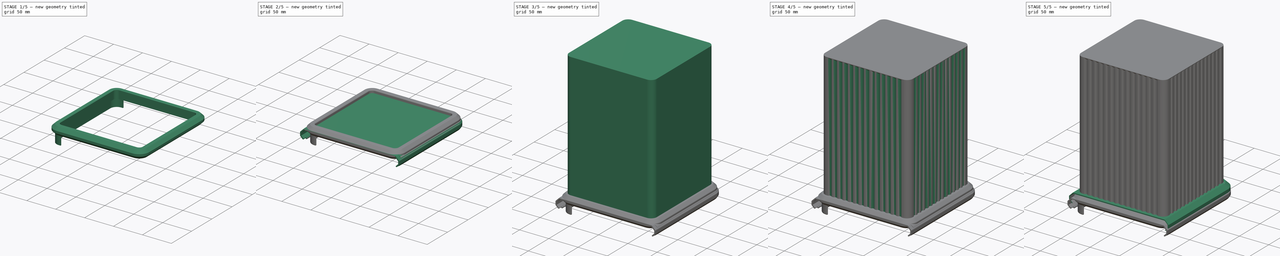
[diagram: build sequence overview — one tinted view per stage of 5, left to right]
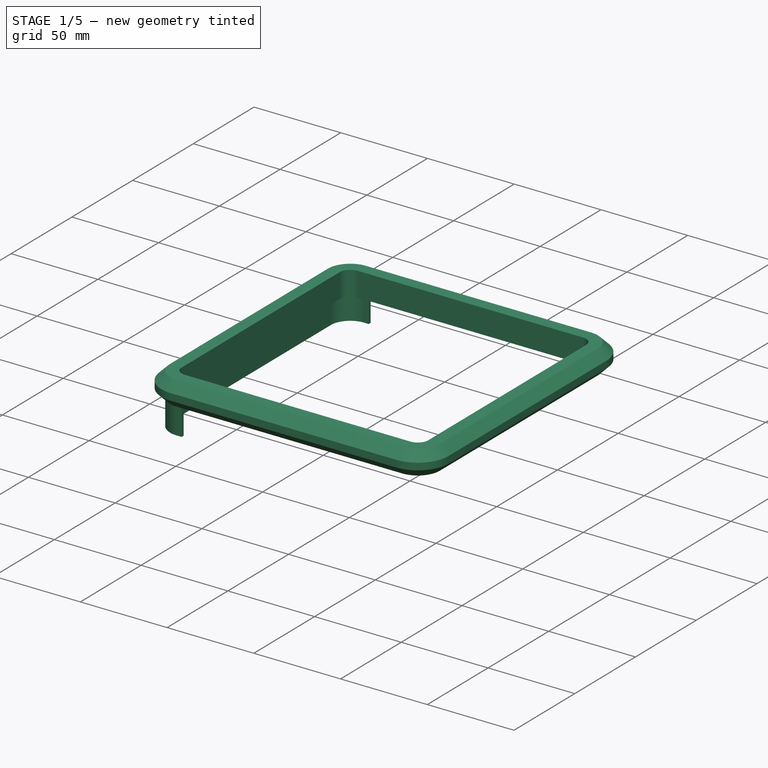
[diagram: stage 1 of 5 — iso view after this stage's code; geometry added in this stage tinted green]
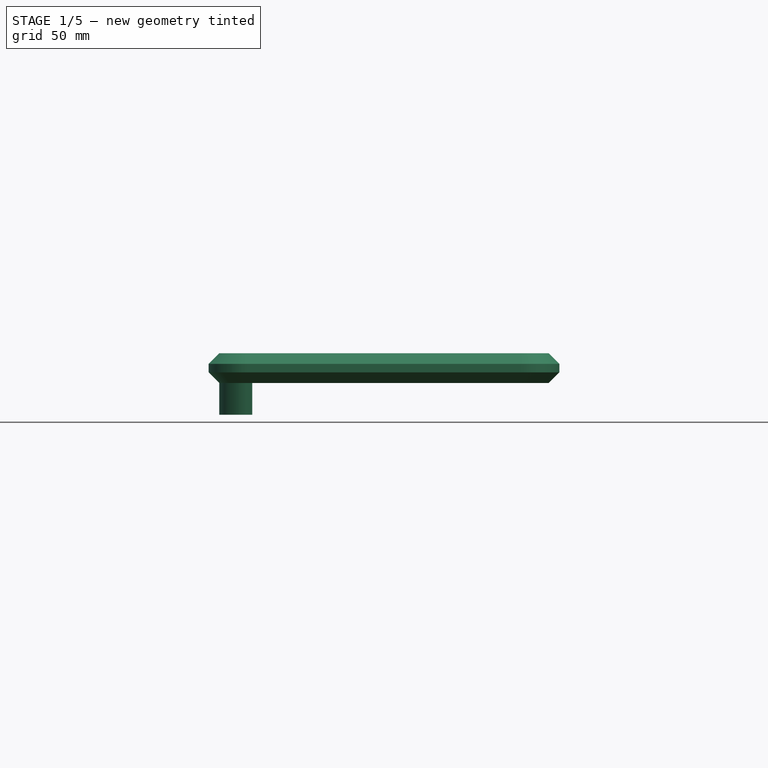
[diagram: stage 1 of 5 — front view after this stage's code; geometry added in this stage tinted green]
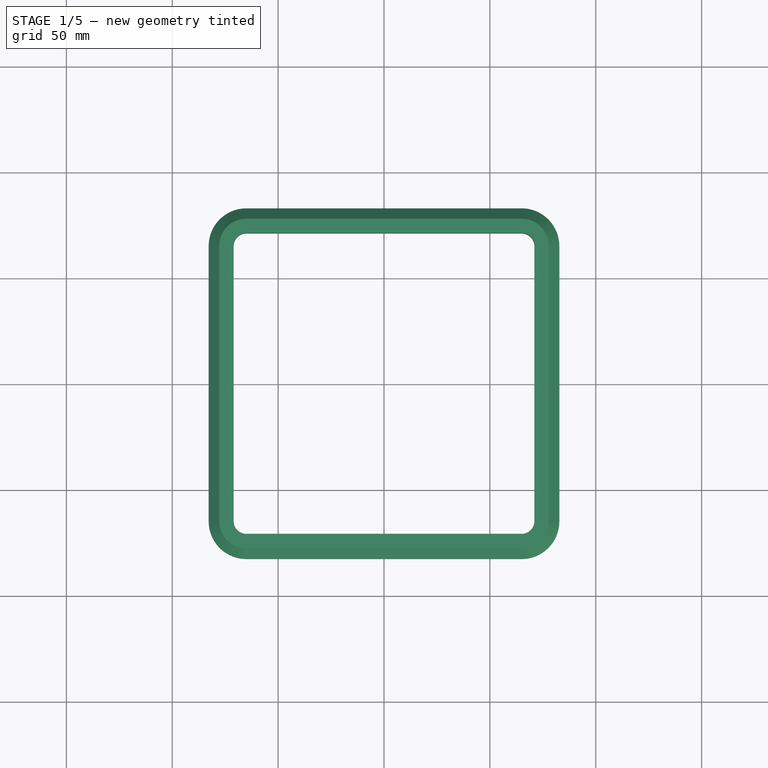
[diagram: stage 1 of 5 — top view after this stage's code; geometry added in this stage tinted green]
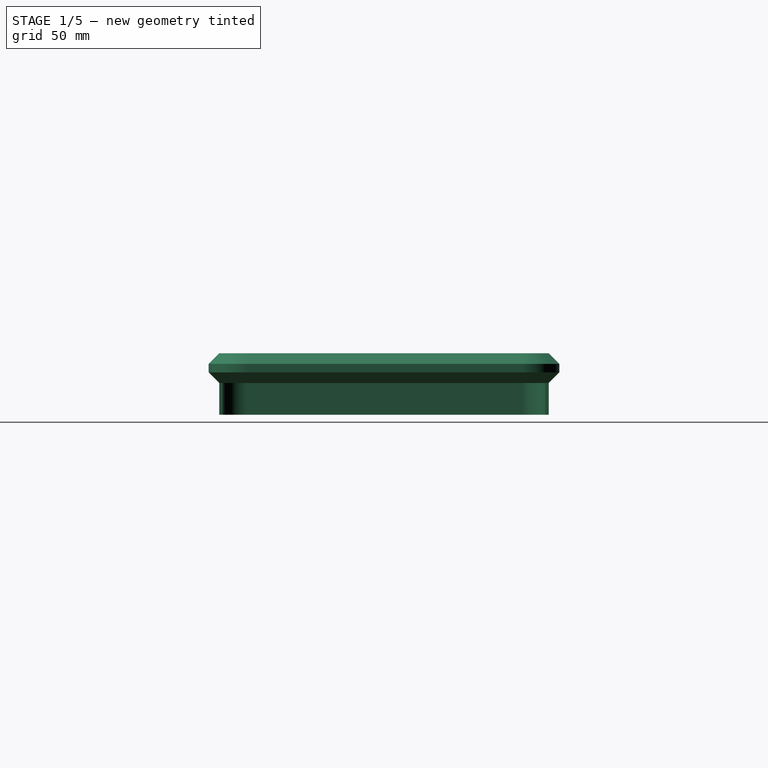
[diagram: stage 1 of 5 — right view after this stage's code; geometry added in this stage tinted green]
FCSTD DOCUMENT  (FreeCAD 0.22R33981 (Git))
Label: TrashCan2
License: Creative Commons Attribution-NonCommercial-ShareAlike
LicenseURL: http://creativecommons.org/licenses/by-nc-sa/4.0/
objects: Sketcher::SketchObject×26, PartDesign::Body×6, PartDesign::Pocket×6, PartDesign::ShapeBinder×5, PartDesign::Fillet×5, PartDesign::Pad×4, PartDesign::AdditiveLoft×3, PartDesign::Chamfer×2, PartDesign::AdditivePipe×2, Spreadsheet::Sheet×1
note: 81 computed .brp shape members not serialized (recipe doc carries the construction recipe); baked Part::Feature solids carry a one-line shape summary decoded from their .brp

FEATURE [PartDesign::Body] Body002  label="Cover"
  Group = -> [ShapeBinder001,Sketch007,Sketch008,Sketch009,Sketch010,AdditiveLoft001,Sketch011,Pad,Chamfer,Fillet001]
  Origin = -> Origin002
  Placement = pos=(0,0,214.5) rot=(0,0,1;0rad)
  Tip = -> Fillet001
  expr: .Placement.Base.z = <<Collar>>.Placement.Base.z - <<Spreadsheet>>.CoverGap
FEATURE [Sketcher::SketchObject] Sketch012
  AttachmentOffset = pos=(0,0,75) rot=(0,0,1;0rad)
  FullyConstrained = true
  MapMode = 5
  Placement = pos=(0,-75,-1.67e-14) rot=(1,0,0;1.5708rad)
  Support = -> [XZ_Plane]
  expr: .AttachmentOffset.Base.z = <<Spreadsheet>>.Width / 2
  expr: Constraints[11] = <<Spreadsheet>>.GrooveWidth
  expr: Constraints[1] = <<Spreadsheet>>.Slope + <<Spreadsheet>>.GrooveMargin
  expr: Constraints[221] = <<Spreadsheet>>.BucketHeight - 1 mm
  expr: Constraints[2] = <<Spreadsheet>>.Width - <<Spreadsheet>>.Radius * 2 - <<Spreadsheet>>.GrooveMargin * 2
  sketch-geometry (71):
    g0: LineSegment StartX=-62.5 StartY=226.4 StartZ=0 EndX=62.5 EndY=226.4 EndZ=0
    g1: LineSegment StartX=62.5 StartY=7.5 StartZ=0 EndX=-62.5 EndY=7.5 EndZ=0
    g2: LineSegment StartX=-62.5 StartY=226.4 StartZ=0 EndX=-56.5 EndY=226.4 EndZ=0
    g3: LineSegment StartX=-56.5 StartY=226.4 StartZ=0 EndX=-56.5 EndY=7.5 EndZ=0
    g4: LineSegment StartX=-56.5 StartY=7.5 StartZ=0 EndX=-62.5 EndY=7.5 EndZ=0
    g5: LineSegment StartX=-62.5 StartY=7.5 StartZ=0 EndX=-62.5 EndY=226.4 EndZ=0
    g6: LineSegment StartX=-56.5 StartY=116.95 StartZ=0 EndX=-53.3462 EndY=116.95 EndZ=0
    g7: LineSegment StartX=-53.3462 StartY=7.5 StartZ=0 EndX=-53.3462 EndY=226.4 EndZ=0
    g8: LineSegment StartX=-53.3462 StartY=226.4 StartZ=0 EndX=-47.3462 EndY=226.4 EndZ=0
    g9: LineSegment StartX=-47.3462 StartY=226.4 StartZ=0 EndX=-47.3462 EndY=7.5 EndZ=0
    g10: LineSegment StartX=-47.3462 StartY=7.5 StartZ=0 EndX=-53.3462 EndY=7.5 EndZ=0
    g11: LineSegment StartX=-47.3462 StartY=116.95 StartZ=0 EndX=-44.1923 EndY=116.95 EndZ=0
    g12: LineSegment StartX=-44.1923 StartY=226.4 StartZ=0 EndX=-38.1923 EndY=226.4 EndZ=0
    g13: LineSegment StartX=-38.1923 StartY=226.4 StartZ=0 EndX=-38.1923 EndY=7.5 EndZ=0
    g14: LineSegment StartX=-38.1923 StartY=7.5 StartZ=0 EndX=-44.1923 EndY=7.5 EndZ=0
    g15: LineSegment StartX=-44.1923 StartY=7.5 StartZ=0 EndX=-44.1923 EndY=226.4 EndZ=0
    g16: LineSegment StartX=-38.1923 StartY=116.95 StartZ=0 EndX=-35.0385 EndY=116.95 EndZ=0
    g17: LineSegment StartX=-35.0385 StartY=7.5 StartZ=0 EndX=-35.0385 EndY=226.4 EndZ=0
    g18: LineSegment StartX=-35.0385 StartY=226.4 StartZ=0 EndX=-29.0385 EndY=226.4 EndZ=0
    g19: LineSegment StartX=-29.0385 StartY=226.4 StartZ=0 EndX=-29.0385 EndY=7.5 EndZ=0
    g20: LineSegment StartX=-29.0385 StartY=7.5 StartZ=0 EndX=-35.0385 EndY=7.5 EndZ=0
    g21: LineSegment StartX=-29.0385 StartY=116.95 StartZ=0 EndX=-25.8846 EndY=116.95 EndZ=0
    g22: LineSegment StartX=-25.8846 StartY=7.5 StartZ=0 EndX=-25.8846 EndY=226.4 EndZ=0
    g23: LineSegment StartX=-25.8846 StartY=226.4 StartZ=0 EndX=-19.8846 EndY=226.4 EndZ=0
    g24: LineSegment StartX=-19.8846 StartY=226.4 StartZ=0 EndX=-19.8846 EndY=7.5 EndZ=0
    g25: LineSegment StartX=-19.8846 StartY=7.5 StartZ=0 EndX=-25.8846 EndY=7.5 EndZ=0
    g26: LineSegment StartX=-19.8846 StartY=116.95 StartZ=0 EndX=-16.7308 EndY=116.95 EndZ=0
    g27: LineSegment StartX=-16.7308 StartY=226.4 StartZ=0 EndX=-10.7308 EndY=226.4 EndZ=0
    g28: LineSegment StartX=-10.7308 StartY=226.4 StartZ=0 EndX=-10.7308 EndY=7.5 EndZ=0
    g29: LineSegment StartX=-10.7308 StartY=7.5 StartZ=0 EndX=-16.7308 EndY=7.5 EndZ=0
    g30: LineSegment StartX=-16.7308 StartY=7.5 StartZ=0 EndX=-16.7308 EndY=226.4 EndZ=0
    g31: LineSegment StartX=-10.7308 StartY=116.95 StartZ=0 EndX=-7.57692 EndY=116.95 EndZ=0
    g32: LineSegment StartX=-7.57692 StartY=7.5 StartZ=0 EndX=-7.57692 EndY=226.4 EndZ=0
    g33: LineSegment StartX=-7.57692 StartY=226.4 StartZ=0 EndX=-1.57692 EndY=226.4 EndZ=0
    g34: LineSegment StartX=-1.57692 StartY=226.4 StartZ=0 EndX=-1.57692 EndY=7.5 EndZ=0
    g35: LineSegment StartX=-1.57692 StartY=7.5 StartZ=0 EndX=-7.57692 EndY=7.5 EndZ=0
    g36: LineSegment StartX=-1.57692 StartY=116.95 StartZ=0 EndX=1.57692 EndY=116.95 EndZ=0
    g37: LineSegment StartX=1.57692 StartY=7.5 StartZ=0 EndX=1.57692 EndY=226.4 EndZ=0
    g38: LineSegment StartX=1.57692 StartY=226.4 StartZ=0 EndX=7.57692 EndY=226.4 EndZ=0
    g39: LineSegment StartX=7.57692 StartY=226.4 StartZ=0 EndX=7.57692 EndY=7.5 EndZ=0
    g40: LineSegment StartX=7.57692 StartY=7.5 StartZ=0 EndX=1.57692 EndY=7.5 EndZ=0
    g41: LineSegment StartX=7.57692 StartY=116.95 StartZ=0 EndX=10.7308 EndY=116.95 EndZ=0
    g42: LineSegment StartX=10.7308 StartY=226.4 StartZ=0 EndX=16.7308 EndY=226.4 EndZ=0
    g43: LineSegment StartX=16.7308 StartY=226.4 StartZ=0 EndX=16.7308 EndY=7.5 EndZ=0
    g44: LineSegment StartX=16.7308 StartY=7.5 StartZ=0 EndX=10.7308 EndY=7.5 EndZ=0
    g45: LineSegment StartX=10.7308 StartY=7.5 StartZ=0 EndX=10.7308 EndY=226.4 EndZ=0
    g46: LineSegment StartX=16.7308 StartY=116.95 StartZ=0 EndX=19.8846 EndY=116.95 EndZ=0
    g47: LineSegment StartX=19.8846 StartY=7.5 StartZ=0 EndX=19.8846 EndY=226.4 EndZ=0
    g48: LineSegment StartX=19.8846 StartY=226.4 StartZ=0 EndX=25.8846 EndY=226.4 EndZ=0
    g49: LineSegment StartX=25.8846 StartY=226.4 StartZ=0 EndX=25.8846 EndY=7.5 EndZ=0
    g50: LineSegment StartX=25.8846 StartY=7.5 StartZ=0 EndX=19.8846 EndY=7.5 EndZ=0
    g51: LineSegment StartX=25.8846 StartY=116.95 StartZ=0 EndX=29.0385 EndY=116.95 EndZ=0
    g52: LineSegment StartX=29.0385 StartY=7.5 StartZ=0 EndX=29.0385 EndY=226.4 EndZ=0
    g53: LineSegment StartX=29.0385 StartY=226.4 StartZ=0 EndX=35.0385 EndY=226.4 EndZ=0
    g54: LineSegment StartX=35.0385 StartY=226.4 StartZ=0 EndX=35.0385 EndY=7.5 EndZ=0
    g55: LineSegment StartX=35.0385 StartY=7.5 StartZ=0 EndX=29.0385 EndY=7.5 EndZ=0
    g56: LineSegment StartX=35.0385 StartY=116.95 StartZ=0 EndX=38.1923 EndY=116.95 EndZ=0
    g57: LineSegment StartX=38.1923 StartY=226.4 StartZ=0 EndX=44.1923 EndY=226.4 EndZ=0
    g58: LineSegment StartX=44.1923 StartY=226.4 StartZ=0 EndX=44.1923 EndY=7.5 EndZ=0
    g59: LineSegment StartX=44.1923 StartY=7.5 StartZ=0 EndX=38.1923 EndY=7.5 EndZ=0
    g60: LineSegment StartX=38.1923 StartY=7.5 StartZ=0 EndX=38.1923 EndY=226.4 EndZ=0
    g61: LineSegment StartX=44.1923 StartY=116.95 StartZ=0 EndX=47.3462 EndY=116.95 EndZ=0
    g62: LineSegment StartX=47.3462 StartY=7.5 StartZ=0 EndX=47.3462 EndY=226.4 EndZ=0
    g63: LineSegment StartX=47.3462 StartY=226.4 StartZ=0 EndX=53.3462 EndY=226.4 EndZ=0
    g64: LineSegment StartX=53.3462 StartY=226.4 StartZ=0 EndX=53.3462 EndY=7.5 EndZ=0
    g65: LineSegment StartX=53.3462 StartY=7.5 StartZ=0 EndX=47.3462 EndY=7.5 EndZ=0
    g66: LineSegment StartX=53.3462 StartY=116.95 StartZ=0 EndX=56.5 EndY=116.95 EndZ=0
    g67: LineSegment StartX=56.5 StartY=7.5 StartZ=0 EndX=56.5 EndY=226.4 EndZ=0
    g68: LineSegment StartX=56.5 StartY=226.4 StartZ=0 EndX=62.5 EndY=226.4 EndZ=0
    g69: LineSegment StartX=62.5 StartY=226.4 StartZ=0 EndX=62.5 EndY=7.5 EndZ=0
    g70: LineSegment StartX=62.5 StartY=7.5 StartZ=0 EndX=56.5 EndY=7.5 EndZ=0
  constraints (222):
    c: Horizontal(g0)
    c: DistanceY(g-1,g1) = 7.5
    c: DistanceX(g0,g0) = 125
    c: Symmetric(g1,g1,g-2)
    c: Coincident(g3,g4)
    c: Coincident(g4,g5)
    c: Coincident(g5,g2)
    c: Horizontal(g2)
    c: Horizontal(g4)
    c: Vertical(g5)
    c: Coincident(g2,g0)
    c: DistanceX(g2,g2) = 6
    c: PointOnObject(g6,g3)
    c: Horizontal(g6)
    c: Coincident(g3,g2)
    c: Coincident(g9,g10)
    c: Coincident(g10,g7)
    c: Coincident(g7,g8)
    c: Horizontal(g8)
    c: Horizontal(g10)
    c: Vertical(g7)
    c: Equal(g2,g8) = 6
    c: PointOnObject(g11,g9)
    c: Horizontal(g11)
    c: Coincident(g9,g8)
    c: Vertical(g9)
    c: PointOnObject(g7,g1)
    c: PointOnObject(g7,g0)
    c: Equal(g6,g11)
    c: PointOnObject(g6,g7)
    c: Coincident(g1,g4)
    c: Coincident(g13,g14)
    c: Coincident(g14,g15)
    c: Coincident(g15,g12)
    c: Horizontal(g12)
    c: Horizontal(g14)
    c: Vertical(g15)
    c: Equal(g2,g12) = 6
    c: PointOnObject(g16,g13)
    c: Horizontal(g16)
    c: Coincident(g13,g12)
    c: Vertical(g13)
    c: Coincident(g19,g20)
    c: Coincident(g20,g17)
    c: Coincident(g17,g18)
    c: Horizontal(g18)
    c: Horizontal(g20)
    c: Vertical(g17)
    c: Equal(g12,g18) = 6
    c: PointOnObject(g21,g19)
    c: Horizontal(g21)
    c: Coincident(g19,g18)
    c: Vertical(g19)
    c: Equal(g16,g21)
    c: PointOnObject(g16,g17)
    c: PointOnObject(g11,g15)
    c: Equal(g11,g16)
    c: PointOnObject(g12,g0)
    c: PointOnObject(g17,g0)
    c: PointOnObject(g14,g1)
    c: PointOnObject(g17,g1)
    c: PointOnObject(g6,g11)
    c: PointOnObject(g11,g16)
    c: PointOnObject(g16,g21)
    c: Symmetric(g3,g2,g6)
    c: Coincident(g24,g25)
    c: Coincident(g25,g22)
    c: Coincident(g22,g23)
    c: Horizontal(g23)
    c: Horizontal(g25)
    c: Vertical(g22)
    c: PointOnObject(g26,g24)
    c: Horizontal(g26)
    c: Coincident(g24,g23)
    c: Vertical(g24)
    c: Coincident(g28,g29)
    c: Coincident(g29,g30)
    c: Coincident(g30,g27)
    c: Horizontal(g27)
    c: Horizontal(g29)
    c: Vertical(g30)
    c: PointOnObject(g31,g28)
    c: Horizontal(g31)
    c: Coincident(g28,g27)
    c: Vertical(g28)
    c: Coincident(g34,g35)
    c: Coincident(g35,g32)
    c: Coincident(g32,g33)
    c: Horizontal(g33)
    c: Horizontal(g35)
    c: Vertical(g32)
    c: Equal(g27,g33) = 6
    c: PointOnObject(g36,g34)
    c: Horizontal(g36)
    c: Coincident(g34,g33)
    c: Vertical(g34)
    c: Equal(g31,g36)
    c: PointOnObject(g31,g32)
    c: PointOnObject(g26,g30)
    c: Equal(g26,g31)
    c: PointOnObject(g26,g31)
    c: PointOnObject(g31,g36)
    c: Equal(g18,g23)
    c: Equal(g23,g27)
    c: PointOnObject(g22,g0)
    c: PointOnObject(g27,g0)
    c: PointOnObject(g32,g0)
    c: Equal(g21,g26)
    c: PointOnObject(g21,g22)
    c: PointOnObject(g21,g26)
    c: PointOnObject(g22,g1)
    c: PointOnObject(g29,g1)
    c: PointOnObject(g32,g1)
    c: Coincident(g39,g40)
    c: Coincident(g40,g37)
    c: Coincident(g37,g38)
    c: Horizontal(g38)
    c: Horizontal(g40)
    c: Vertical(g37)
    c: PointOnObject(g41,g39)
    c: Horizontal(g41)
    c: Coincident(g39,g38)
    c: Vertical(g39)
    c: Coincident(g43,g44)
    c: Coincident(g44,g45)
    c: Coincident(g45,g42)
    c: Horizontal(g42)
    c: Horizontal(g44)
    c: Vertical(g45)
    c: PointOnObject(g46,g43)
    c: Horizontal(g46)
    c: Coincident(g43,g42)
    c: Vertical(g43)
    c: Coincident(g49,g50)
    c: Coincident(g50,g47)
    c: Coincident(g47,g48)
    c: Horizontal(g48)
    c: Horizontal(g50)
    c: Vertical(g47)
    c: Equal(g42,g48) = 6
    c: PointOnObject(g51,g49)
    c: Horizontal(g51)
    c: Coincident(g49,g48)
    c: Vertical(g49)
    c: Equal(g46,g51)
    c: PointOnObject(g46,g47)
    c: PointOnObject(g41,g45)
    c: Equal(g41,g46)
    c: PointOnObject(g41,g46)
    c: PointOnObject(g46,g51)
    c: Coincident(g54,g55)
    c: Coincident(g55,g52)
    c: Coincident(g52,g53)
    c: Horizontal(g53)
    c: Horizontal(g55)
    c: Vertical(g52)
    c: PointOnObject(g56,g54)
    c: Horizontal(g56)
    c: Coincident(g54,g53)
    c: Vertical(g54)
    c: Coincident(g58,g59)
    c: Coincident(g59,g60)
    c: Coincident(g60,g57)
    c: Horizontal(g57)
    c: Horizontal(g59)
    c: Vertical(g60)
    c: PointOnObject(g61,g58)
    c: Horizontal(g61)
    c: Coincident(g58,g57)
    c: Vertical(g58)
    c: Coincident(g64,g65)
    c: Coincident(g65,g62)
    c: Coincident(g62,g63)
    c: Horizontal(g63)
    c: Horizontal(g65)
    c: Vertical(g62)
    c: Equal(g57,g63) = 6
    c: PointOnObject(g66,g64)
    c: Horizontal(g66)
    c: Coincident(g64,g63)
    c: Vertical(g64)
    c: Equal(g61,g66)
    c: PointOnObject(g61,g62)
    c: PointOnObject(g56,g60)
    c: Equal(g56,g61)
    c: PointOnObject(g56,g61)
    c: PointOnObject(g61,g66)
    c: Equal(g48,g53)
    c: Equal(g53,g57)
    c: Equal(g51,g56)
    c: PointOnObject(g51,g52)
    c: PointOnObject(g51,g56)
    c: PointOnObject(g37,g0)
    c: PointOnObject(g42,g0)
    c: PointOnObject(g47,g0)
    c: PointOnObject(g52,g0)
    c: PointOnObject(g57,g0)
    c: PointOnObject(g62,g0)
    c: Equal(g36,g41)
    c: PointOnObject(g36,g37)
    c: PointOnObject(g37,g1)
    c: PointOnObject(g44,g1)
    c: PointOnObject(g47,g1)
    c: PointOnObject(g52,g1)
    c: PointOnObject(g59,g1)
    c: PointOnObject(g62,g1)
    c: PointOnObject(g36,g41)
    c: Equal(g33,g38)
    c: Equal(g38,g42)
    c: Coincident(g69,g70)
    c: Coincident(g70,g67)
    c: Coincident(g67,g68)
    c: Horizontal(g68)
    c: Horizontal(g70)
    c: Vertical(g67)
    c: Coincident(g69,g68)
    c: Vertical(g69)
    c: Equal(g63,g68)
    c: PointOnObject(g66,g67)
    c: Coincident(g68,g0)
    c: Coincident(g1,g69)
    c: DistanceY(g-1,g2) = 226.4
FEATURE [Sketcher::SketchObject] Sketch013
  AttachmentOffset = pos=(0,0,-75) rot=(0,0,1;0rad)
  FullyConstrained = true
  MapMode = 5
  Placement = pos=(0,75,1.67e-14) rot=(1,0,0;1.5708rad)
  Support = -> [XZ_Plane]
  expr: .AttachmentOffset.Base.z = -<<Spreadsheet>>.Width / 2
  expr: Constraints[11] = <<Spreadsheet>>.GrooveWidth
  expr: Constraints[1] = <<Spreadsheet>>.Slope + <<Spreadsheet>>.GrooveMargin
  expr: Constraints[221] = <<Spreadsheet>>.BucketHeight - 1 mm
  expr: Constraints[2] = <<Spreadsheet>>.Width - <<Spreadsheet>>.Radius * 2 - <<Spreadsheet>>.GrooveMargin * 2
  sketch-geometry (71):
    g0: LineSegment StartX=-62.5 StartY=226.4 StartZ=0 EndX=62.5 EndY=226.4 EndZ=0
    g1: LineSegment StartX=62.5 StartY=7.5 StartZ=0 EndX=-62.5 EndY=7.5 EndZ=0
    g2: LineSegment StartX=-62.5 StartY=226.4 StartZ=0 EndX=-56.5 EndY=226.4 EndZ=0
    g3: LineSegment StartX=-56.5 StartY=226.4 StartZ=0 EndX=-56.5 EndY=7.5 EndZ=0
    g4: LineSegment StartX=-56.5 StartY=7.5 StartZ=0 EndX=-62.5 EndY=7.5 EndZ=0
    g5: LineSegment StartX=-62.5 StartY=7.5 StartZ=0 EndX=-62.5 EndY=226.4 EndZ=0
    g6: LineSegment StartX=-56.5 StartY=116.95 StartZ=0 EndX=-53.3462 EndY=116.95 EndZ=0
    g7: LineSegment StartX=-53.3462 StartY=7.5 StartZ=0 EndX=-53.3462 EndY=226.4 EndZ=0
    g8: LineSegment StartX=-53.3462 StartY=226.4 StartZ=0 EndX=-47.3462 EndY=226.4 EndZ=0
    g9: LineSegment StartX=-47.3462 StartY=226.4 StartZ=0 EndX=-47.3462 EndY=7.5 EndZ=0
    g10: LineSegment StartX=-47.3462 StartY=7.5 StartZ=0 EndX=-53.3462 EndY=7.5 EndZ=0
    g11: LineSegment StartX=-47.3462 StartY=116.95 StartZ=0 EndX=-44.1923 EndY=116.95 EndZ=0
    g12: LineSegment StartX=-44.1923 StartY=226.4 StartZ=0 EndX=-38.1923 EndY=226.4 EndZ=0
    g13: LineSegment StartX=-38.1923 StartY=226.4 StartZ=0 EndX=-38.1923 EndY=7.5 EndZ=0
    g14: LineSegment StartX=-38.1923 StartY=7.5 StartZ=0 EndX=-44.1923 EndY=7.5 EndZ=0
    g15: LineSegment StartX=-44.1923 StartY=7.5 StartZ=0 EndX=-44.1923 EndY=226.4 EndZ=0
    g16: LineSegment StartX=-38.1923 StartY=116.95 StartZ=0 EndX=-35.0385 EndY=116.95 EndZ=0
    g17: LineSegment StartX=-35.0385 StartY=7.5 StartZ=0 EndX=-35.0385 EndY=226.4 EndZ=0
    g18: LineSegment StartX=-35.0385 StartY=226.4 StartZ=0 EndX=-29.0385 EndY=226.4 EndZ=0
    g19: LineSegment StartX=-29.0385 StartY=226.4 StartZ=0 EndX=-29.0385 EndY=7.5 EndZ=0
    g20: LineSegment StartX=-29.0385 StartY=7.5 StartZ=0 EndX=-35.0385 EndY=7.5 EndZ=0
    g21: LineSegment StartX=-29.0385 StartY=116.95 StartZ=0 EndX=-25.8846 EndY=116.95 EndZ=0
    g22: LineSegment StartX=-25.8846 StartY=7.5 StartZ=0 EndX=-25.8846 EndY=226.4 EndZ=0
    g23: LineSegment StartX=-25.8846 StartY=226.4 StartZ=0 EndX=-19.8846 EndY=226.4 EndZ=0
    g24: LineSegment StartX=-19.8846 StartY=226.4 StartZ=0 EndX=-19.8846 EndY=7.5 EndZ=0
    g25: LineSegment StartX=-19.8846 StartY=7.5 StartZ=0 EndX=-25.8846 EndY=7.5 EndZ=0
    g26: LineSegment StartX=-19.8846 StartY=116.95 StartZ=0 EndX=-16.7308 EndY=116.95 EndZ=0
    g27: LineSegment StartX=-16.7308 StartY=226.4 StartZ=0 EndX=-10.7308 EndY=226.4 EndZ=0
    g28: LineSegment StartX=-10.7308 StartY=226.4 StartZ=0 EndX=-10.7308 EndY=7.5 EndZ=0
    g29: LineSegment StartX=-10.7308 StartY=7.5 StartZ=0 EndX=-16.7308 EndY=7.5 EndZ=0
    g30: LineSegment StartX=-16.7308 StartY=7.5 StartZ=0 EndX=-16.7308 EndY=226.4 EndZ=0
    g31: LineSegment StartX=-10.7308 StartY=116.95 StartZ=0 EndX=-7.57692 EndY=116.95 EndZ=0
    g32: LineSegment StartX=-7.57692 StartY=7.5 StartZ=0 EndX=-7.57692 EndY=226.4 EndZ=0
    g33: LineSegment StartX=-7.57692 StartY=226.4 StartZ=0 EndX=-1.57692 EndY=226.4 EndZ=0
    g34: LineSegment StartX=-1.57692 StartY=226.4 StartZ=0 EndX=-1.57692 EndY=7.5 EndZ=0
    g35: LineSegment StartX=-1.57692 StartY=7.5 StartZ=0 EndX=-7.57692 EndY=7.5 EndZ=0
    g36: LineSegment StartX=-1.57692 StartY=116.95 StartZ=0 EndX=1.57692 EndY=116.95 EndZ=0
    g37: LineSegment StartX=1.57692 StartY=7.5 StartZ=0 EndX=1.57692 EndY=226.4 EndZ=0
    g38: LineSegment StartX=1.57692 StartY=226.4 StartZ=0 EndX=7.57692 EndY=226.4 EndZ=0
    g39: LineSegment StartX=7.57692 StartY=226.4 StartZ=0 EndX=7.57692 EndY=7.5 EndZ=0
    g40: LineSegment StartX=7.57692 StartY=7.5 StartZ=0 EndX=1.57692 EndY=7.5 EndZ=0
    g41: LineSegment StartX=7.57692 StartY=116.95 StartZ=0 EndX=10.7308 EndY=116.95 EndZ=0
    g42: LineSegment StartX=10.7308 StartY=226.4 StartZ=0 EndX=16.7308 EndY=226.4 EndZ=0
    g43: LineSegment StartX=16.7308 StartY=226.4 StartZ=0 EndX=16.7308 EndY=7.5 EndZ=0
    g44: LineSegment StartX=16.7308 StartY=7.5 StartZ=0 EndX=10.7308 EndY=7.5 EndZ=0
    g45: LineSegment StartX=10.7308 StartY=7.5 StartZ=0 EndX=10.7308 EndY=226.4 EndZ=0
    g46: LineSegment StartX=16.7308 StartY=116.95 StartZ=0 EndX=19.8846 EndY=116.95 EndZ=0
    g47: LineSegment StartX=19.8846 StartY=7.5 StartZ=0 EndX=19.8846 EndY=226.4 EndZ=0
    g48: LineSegment StartX=19.8846 StartY=226.4 StartZ=0 EndX=25.8846 EndY=226.4 EndZ=0
    g49: LineSegment StartX=25.8846 StartY=226.4 StartZ=0 EndX=25.8846 EndY=7.5 EndZ=0
    g50: LineSegment StartX=25.8846 StartY=7.5 StartZ=0 EndX=19.8846 EndY=7.5 EndZ=0
    g51: LineSegment StartX=25.8846 StartY=116.95 StartZ=0 EndX=29.0385 EndY=116.95 EndZ=0
    g52: LineSegment StartX=29.0385 StartY=7.5 StartZ=0 EndX=29.0385 EndY=226.4 EndZ=0
    g53: LineSegment StartX=29.0385 StartY=226.4 StartZ=0 EndX=35.0385 EndY=226.4 EndZ=0
    g54: LineSegment StartX=35.0385 StartY=226.4 StartZ=0 EndX=35.0385 EndY=7.5 EndZ=0
    g55: LineSegment StartX=35.0385 StartY=7.5 StartZ=0 EndX=29.0385 EndY=7.5 EndZ=0
    g56: LineSegment StartX=35.0385 StartY=116.95 StartZ=0 EndX=38.1923 EndY=116.95 EndZ=0
    g57: LineSegment StartX=38.1923 StartY=226.4 StartZ=0 EndX=44.1923 EndY=226.4 EndZ=0
    g58: LineSegment StartX=44.1923 StartY=226.4 StartZ=0 EndX=44.1923 EndY=7.5 EndZ=0
    g59: LineSegment StartX=44.1923 StartY=7.5 StartZ=0 EndX=38.1923 EndY=7.5 EndZ=0
    g60: LineSegment StartX=38.1923 StartY=7.5 StartZ=0 EndX=38.1923 EndY=226.4 EndZ=0
    g61: LineSegment StartX=44.1923 StartY=116.95 StartZ=0 EndX=47.3462 EndY=116.95 EndZ=0
    g62: LineSegment StartX=47.3462 StartY=7.5 StartZ=0 EndX=47.3462 EndY=226.4 EndZ=0
    g63: LineSegment StartX=47.3462 StartY=226.4 StartZ=0 EndX=53.3462 EndY=226.4 EndZ=0
    g64: LineSegment StartX=53.3462 StartY=226.4 StartZ=0 EndX=53.3462 EndY=7.5 EndZ=0
    g65: LineSegment StartX=53.3462 StartY=7.5 StartZ=0 EndX=47.3462 EndY=7.5 EndZ=0
    g66: LineSegment StartX=53.3462 StartY=116.95 StartZ=0 EndX=56.5 EndY=116.95 EndZ=0
    g67: LineSegment StartX=56.5 StartY=7.5 StartZ=0 EndX=56.5 EndY=226.4 EndZ=0
    g68: LineSegment StartX=56.5 StartY=226.4 StartZ=0 EndX=62.5 EndY=226.4 EndZ=0
    g69: LineSegment StartX=62.5 StartY=226.4 StartZ=0 EndX=62.5 EndY=7.5 EndZ=0
    g70: LineSegment StartX=62.5 StartY=7.5 StartZ=0 EndX=56.5 EndY=7.5 EndZ=0
  constraints (222):
    c: Horizontal(g0)
    c: DistanceY(g-1,g1) = 7.5
    c: DistanceX(g0,g0) = 125
    c: Symmetric(g1,g1,g-2)
    c: Coincident(g3,g4)
    c: Coincident(g4,g5)
    c: Coincident(g5,g2)
    c: Horizontal(g2)
    c: Horizontal(g4)
    c: Vertical(g5)
    c: Coincident(g2,g0)
    c: DistanceX(g2,g2) = 6
    c: PointOnObject(g6,g3)
    c: Horizontal(g6)
    c: Coincident(g3,g2)
    c: Coincident(g9,g10)
    c: Coincident(g10,g7)
    c: Coincident(g7,g8)
    c: Horizontal(g8)
    c: Horizontal(g10)
    c: Vertical(g7)
    c: Equal(g2,g8) = 6
    c: PointOnObject(g11,g9)
    c: Horizontal(g11)
    c: Coincident(g9,g8)
    c: Vertical(g9)
    c: PointOnObject(g7,g1)
    c: PointOnObject(g7,g0)
    c: Equal(g6,g11)
    c: PointOnObject(g6,g7)
    c: Coincident(g1,g4)
    c: Coincident(g13,g14)
    c: Coincident(g14,g15)
    c: Coincident(g15,g12)
    c: Horizontal(g12)
    c: Horizontal(g14)
    c: Vertical(g15)
    c: Equal(g2,g12) = 6
    c: PointOnObject(g16,g13)
    c: Horizontal(g16)
    c: Coincident(g13,g12)
    c: Vertical(g13)
    c: Coincident(g19,g20)
    c: Coincident(g20,g17)
    c: Coincident(g17,g18)
    c: Horizontal(g18)
    c: Horizontal(g20)
    c: Vertical(g17)
    c: Equal(g12,g18) = 6
    c: PointOnObject(g21,g19)
    c: Horizontal(g21)
    c: Coincident(g19,g18)
    c: Vertical(g19)
    c: Equal(g16,g21)
    c: PointOnObject(g16,g17)
    c: PointOnObject(g11,g15)
    c: Equal(g11,g16)
    c: PointOnObject(g12,g0)
    c: PointOnObject(g17,g0)
    c: PointOnObject(g14,g1)
    c: PointOnObject(g17,g1)
    c: PointOnObject(g6,g11)
    c: PointOnObject(g11,g16)
    c: PointOnObject(g16,g21)
    c: Symmetric(g3,g2,g6)
    c: Coincident(g24,g25)
    c: Coincident(g25,g22)
    c: Coincident(g22,g23)
    c: Horizontal(g23)
    c: Horizontal(g25)
    c: Vertical(g22)
    c: PointOnObject(g26,g24)
    c: Horizontal(g26)
    c: Coincident(g24,g23)
    c: Vertical(g24)
    c: Coincident(g28,g29)
    c: Coincident(g29,g30)
    c: Coincident(g30,g27)
    c: Horizontal(g27)
    c: Horizontal(g29)
    c: Vertical(g30)
    c: PointOnObject(g31,g28)
    c: Horizontal(g31)
    c: Coincident(g28,g27)
    c: Vertical(g28)
    c: Coincident(g34,g35)
    c: Coincident(g35,g32)
    c: Coincident(g32,g33)
    c: Horizontal(g33)
    c: Horizontal(g35)
    c: Vertical(g32)
    c: Equal(g27,g33) = 6
    c: PointOnObject(g36,g34)
    c: Horizontal(g36)
    c: Coincident(g34,g33)
    c: Vertical(g34)
    c: Equal(g31,g36)
    c: PointOnObject(g31,g32)
    c: PointOnObject(g26,g30)
    c: Equal(g26,g31)
    c: PointOnObject(g26,g31)
    c: PointOnObject(g31,g36)
    c: Equal(g18,g23)
    c: Equal(g23,g27)
    c: PointOnObject(g22,g0)
    c: PointOnObject(g27,g0)
    c: PointOnObject(g32,g0)
    c: Equal(g21,g26)
    c: PointOnObject(g21,g22)
    c: PointOnObject(g21,g26)
    c: PointOnObject(g22,g1)
    c: PointOnObject(g29,g1)
    c: PointOnObject(g32,g1)
    c: Coincident(g39,g40)
    c: Coincident(g40,g37)
    c: Coincident(g37,g38)
    c: Horizontal(g38)
    c: Horizontal(g40)
    c: Vertical(g37)
    c: PointOnObject(g41,g39)
    c: Horizontal(g41)
    c: Coincident(g39,g38)
    c: Vertical(g39)
    c: Coincident(g43,g44)
    c: Coincident(g44,g45)
    c: Coincident(g45,g42)
    c: Horizontal(g42)
    c: Horizontal(g44)
    c: Vertical(g45)
    c: PointOnObject(g46,g43)
    c: Horizontal(g46)
    c: Coincident(g43,g42)
    c: Vertical(g43)
    c: Coincident(g49,g50)
    c: Coincident(g50,g47)
    c: Coincident(g47,g48)
    c: Horizontal(g48)
    c: Horizontal(g50)
    c: Vertical(g47)
    c: Equal(g42,g48) = 6
    c: PointOnObject(g51,g49)
    c: Horizontal(g51)
    c: Coincident(g49,g48)
    c: Vertical(g49)
    c: Equal(g46,g51)
    c: PointOnObject(g46,g47)
    c: PointOnObject(g41,g45)
    c: Equal(g41,g46)
    c: PointOnObject(g41,g46)
    c: PointOnObject(g46,g51)
    c: Coincident(g54,g55)
    c: Coincident(g55,g52)
    c: Coincident(g52,g53)
    c: Horizontal(g53)
    c: Horizontal(g55)
    c: Vertical(g52)
    c: PointOnObject(g56,g54)
    c: Horizontal(g56)
    c: Coincident(g54,g53)
    c: Vertical(g54)
    c: Coincident(g58,g59)
    c: Coincident(g59,g60)
    c: Coincident(g60,g57)
    c: Horizontal(g57)
    c: Horizontal(g59)
    c: Vertical(g60)
    c: PointOnObject(g61,g58)
    c: Horizontal(g61)
    c: Coincident(g58,g57)
    c: Vertical(g58)
    c: Coincident(g64,g65)
    c: Coincident(g65,g62)
    c: Coincident(g62,g63)
    c: Horizontal(g63)
    c: Horizontal(g65)
    c: Vertical(g62)
    c: Equal(g57,g63) = 6
    c: PointOnObject(g66,g64)
    c: Horizontal(g66)
    c: Coincident(g64,g63)
    c: Vertical(g64)
    c: Equal(g61,g66)
    c: PointOnObject(g61,g62)
    c: PointOnObject(g56,g60)
    c: Equal(g56,g61)
    c: PointOnObject(g56,g61)
    c: PointOnObject(g61,g66)
    c: Equal(g48,g53)
    c: Equal(g53,g57)
    c: Equal(g51,g56)
    c: PointOnObject(g51,g52)
    c: PointOnObject(g51,g56)
    c: PointOnObject(g37,g0)
    c: PointOnObject(g42,g0)
    c: PointOnObject(g47,g0)
    c: PointOnObject(g52,g0)
    c: PointOnObject(g57,g0)
    c: PointOnObject(g62,g0)
    c: Equal(g36,g41)
    c: PointOnObject(g36,g37)
    c: PointOnObject(g37,g1)
    c: PointOnObject(g44,g1)
    c: PointOnObject(g47,g1)
    c: PointOnObject(g52,g1)
    c: PointOnObject(g59,g1)
    c: PointOnObject(g62,g1)
    c: PointOnObject(g36,g41)
    c: Equal(g33,g38)
    c: Equal(g38,g42)
    c: Coincident(g69,g70)
    c: Coincident(g70,g67)
    c: Coincident(g67,g68)
    c: Horizontal(g68)
    c: Horizontal(g70)
    c: Vertical(g67)
    c: Coincident(g69,g68)
    c: Vertical(g69)
    c: Equal(g63,g68)
    c: PointOnObject(g66,g67)
    c: Coincident(g68,g0)
    c: Coincident(g1,g69)
    c: DistanceY(g-1,g2) = 226.4
FEATURE [Sketcher::SketchObject] Sketch014
  AttachmentOffset = pos=(0,0,75) rot=(0,0,1;0rad)
  FullyConstrained = true
  MapMode = 5
  Placement = pos=(75,-1.67e-14,1.67e-14) rot=(0.57735,0.57735,0.57735;2.0944rad)
  Support = -> [YZ_Plane]
  expr: .AttachmentOffset.Base.z = <<Spreadsheet>>.Width / 2
  expr: Constraints[11] = <<Spreadsheet>>.GrooveWidth
  expr: Constraints[1] = <<Spreadsheet>>.Slope + <<Spreadsheet>>.GrooveMargin
  expr: Constraints[221] = <<Spreadsheet>>.BucketHeight - 1 mm
  expr: Constraints[2] = <<Spreadsheet>>.Width - <<Spreadsheet>>.Radius * 2 - <<Spreadsheet>>.GrooveMargin * 2
  sketch-geometry (71):
    g0: LineSegment StartX=-62.5 StartY=226.4 StartZ=0 EndX=62.5 EndY=226.4 EndZ=0
    g1: LineSegment StartX=62.5 StartY=7.5 StartZ=0 EndX=-62.5 EndY=7.5 EndZ=0
    g2: LineSegment StartX=-62.5 StartY=226.4 StartZ=0 EndX=-56.5 EndY=226.4 EndZ=0
    g3: LineSegment StartX=-56.5 StartY=226.4 StartZ=0 EndX=-56.5 EndY=7.5 EndZ=0
    g4: LineSegment StartX=-56.5 StartY=7.5 StartZ=0 EndX=-62.5 EndY=7.5 EndZ=0
    g5: LineSegment StartX=-62.5 StartY=7.5 StartZ=0 EndX=-62.5 EndY=226.4 EndZ=0
    g6: LineSegment StartX=-56.5 StartY=116.95 StartZ=0 EndX=-53.3462 EndY=116.95 EndZ=0
    g7: LineSegment StartX=-53.3462 StartY=7.5 StartZ=0 EndX=-53.3462 EndY=226.4 EndZ=0
    g8: LineSegment StartX=-53.3462 StartY=226.4 StartZ=0 EndX=-47.3462 EndY=226.4 EndZ=0
    g9: LineSegment StartX=-47.3462 StartY=226.4 StartZ=0 EndX=-47.3462 EndY=7.5 EndZ=0
    g10: LineSegment StartX=-47.3462 StartY=7.5 StartZ=0 EndX=-53.3462 EndY=7.5 EndZ=0
    g11: LineSegment StartX=-47.3462 StartY=116.95 StartZ=0 EndX=-44.1923 EndY=116.95 EndZ=0
    g12: LineSegment StartX=-44.1923 StartY=226.4 StartZ=0 EndX=-38.1923 EndY=226.4 EndZ=0
    g13: LineSegment StartX=-38.1923 StartY=226.4 StartZ=0 EndX=-38.1923 EndY=7.5 EndZ=0
    g14: LineSegment StartX=-38.1923 StartY=7.5 StartZ=0 EndX=-44.1923 EndY=7.5 EndZ=0
    g15: LineSegment StartX=-44.1923 StartY=7.5 StartZ=0 EndX=-44.1923 EndY=226.4 EndZ=0
    g16: LineSegment StartX=-38.1923 StartY=116.95 StartZ=0 EndX=-35.0385 EndY=116.95 EndZ=0
    g17: LineSegment StartX=-35.0385 StartY=7.5 StartZ=0 EndX=-35.0385 EndY=226.4 EndZ=0
    g18: LineSegment StartX=-35.0385 StartY=226.4 StartZ=0 EndX=-29.0385 EndY=226.4 EndZ=0
    g19: LineSegment StartX=-29.0385 StartY=226.4 StartZ=0 EndX=-29.0385 EndY=7.5 EndZ=0
    g20: LineSegment StartX=-29.0385 StartY=7.5 StartZ=0 EndX=-35.0385 EndY=7.5 EndZ=0
    g21: LineSegment StartX=-29.0385 StartY=116.95 StartZ=0 EndX=-25.8846 EndY=116.95 EndZ=0
    g22: LineSegment StartX=-25.8846 StartY=7.5 StartZ=0 EndX=-25.8846 EndY=226.4 EndZ=0
    g23: LineSegment StartX=-25.8846 StartY=226.4 StartZ=0 EndX=-19.8846 EndY=226.4 EndZ=0
    g24: LineSegment StartX=-19.8846 StartY=226.4 StartZ=0 EndX=-19.8846 EndY=7.5 EndZ=0
    g25: LineSegment StartX=-19.8846 StartY=7.5 StartZ=0 EndX=-25.8846 EndY=7.5 EndZ=0
    g26: LineSegment StartX=-19.8846 StartY=116.95 StartZ=0 EndX=-16.7308 EndY=116.95 EndZ=0
    g27: LineSegment StartX=-16.7308 StartY=226.4 StartZ=0 EndX=-10.7308 EndY=226.4 EndZ=0
    g28: LineSegment StartX=-10.7308 StartY=226.4 StartZ=0 EndX=-10.7308 EndY=7.5 EndZ=0
    g29: LineSegment StartX=-10.7308 StartY=7.5 StartZ=0 EndX=-16.7308 EndY=7.5 EndZ=0
    g30: LineSegment StartX=-16.7308 StartY=7.5 StartZ=0 EndX=-16.7308 EndY=226.4 EndZ=0
    g31: LineSegment StartX=-10.7308 StartY=116.95 StartZ=0 EndX=-7.57692 EndY=116.95 EndZ=0
    g32: LineSegment StartX=-7.57692 StartY=7.5 StartZ=0 EndX=-7.57692 EndY=226.4 EndZ=0
    g33: LineSegment StartX=-7.57692 StartY=226.4 StartZ=0 EndX=-1.57692 EndY=226.4 EndZ=0
    g34: LineSegment StartX=-1.57692 StartY=226.4 StartZ=0 EndX=-1.57692 EndY=7.5 EndZ=0
    g35: LineSegment StartX=-1.57692 StartY=7.5 StartZ=0 EndX=-7.57692 EndY=7.5 EndZ=0
    g36: LineSegment StartX=-1.57692 StartY=116.95 StartZ=0 EndX=1.57692 EndY=116.95 EndZ=0
    g37: LineSegment StartX=1.57692 StartY=7.5 StartZ=0 EndX=1.57692 EndY=226.4 EndZ=0
    g38: LineSegment StartX=1.57692 StartY=226.4 StartZ=0 EndX=7.57692 EndY=226.4 EndZ=0
    g39: LineSegment StartX=7.57692 StartY=226.4 StartZ=0 EndX=7.57692 EndY=7.5 EndZ=0
    g40: LineSegment StartX=7.57692 StartY=7.5 StartZ=0 EndX=1.57692 EndY=7.5 EndZ=0
    g41: LineSegment StartX=7.57692 StartY=116.95 StartZ=0 EndX=10.7308 EndY=116.95 EndZ=0
    g42: LineSegment StartX=10.7308 StartY=226.4 StartZ=0 EndX=16.7308 EndY=226.4 EndZ=0
    g43: LineSegment StartX=16.7308 StartY=226.4 StartZ=0 EndX=16.7308 EndY=7.5 EndZ=0
    g44: LineSegment StartX=16.7308 StartY=7.5 StartZ=0 EndX=10.7308 EndY=7.5 EndZ=0
    g45: LineSegment StartX=10.7308 StartY=7.5 StartZ=0 EndX=10.7308 EndY=226.4 EndZ=0
    g46: LineSegment StartX=16.7308 StartY=116.95 StartZ=0 EndX=19.8846 EndY=116.95 EndZ=0
    g47: LineSegment StartX=19.8846 StartY=7.5 StartZ=0 EndX=19.8846 EndY=226.4 EndZ=0
    g48: LineSegment StartX=19.8846 StartY=226.4 StartZ=0 EndX=25.8846 EndY=226.4 EndZ=0
    g49: LineSegment StartX=25.8846 StartY=226.4 StartZ=0 EndX=25.8846 EndY=7.5 EndZ=0
    g50: LineSegment StartX=25.8846 StartY=7.5 StartZ=0 EndX=19.8846 EndY=7.5 EndZ=0
    g51: LineSegment StartX=25.8846 StartY=116.95 StartZ=0 EndX=29.0385 EndY=116.95 EndZ=0
    g52: LineSegment StartX=29.0385 StartY=7.5 StartZ=0 EndX=29.0385 EndY=226.4 EndZ=0
    g53: LineSegment StartX=29.0385 StartY=226.4 StartZ=0 EndX=35.0385 EndY=226.4 EndZ=0
    g54: LineSegment StartX=35.0385 StartY=226.4 StartZ=0 EndX=35.0385 EndY=7.5 EndZ=0
    g55: LineSegment StartX=35.0385 StartY=7.5 StartZ=0 EndX=29.0385 EndY=7.5 EndZ=0
    g56: LineSegment StartX=35.0385 StartY=116.95 StartZ=0 EndX=38.1923 EndY=116.95 EndZ=0
    g57: LineSegment StartX=38.1923 StartY=226.4 StartZ=0 EndX=44.1923 EndY=226.4 EndZ=0
    g58: LineSegment StartX=44.1923 StartY=226.4 StartZ=0 EndX=44.1923 EndY=7.5 EndZ=0
    g59: LineSegment StartX=44.1923 StartY=7.5 StartZ=0 EndX=38.1923 EndY=7.5 EndZ=0
    g60: LineSegment StartX=38.1923 StartY=7.5 StartZ=0 EndX=38.1923 EndY=226.4 EndZ=0
    g61: LineSegment StartX=44.1923 StartY=116.95 StartZ=0 EndX=47.3462 EndY=116.95 EndZ=0
    g62: LineSegment StartX=47.3462 StartY=7.5 StartZ=0 EndX=47.3462 EndY=226.4 EndZ=0
    g63: LineSegment StartX=47.3462 StartY=226.4 StartZ=0 EndX=53.3462 EndY=226.4 EndZ=0
    g64: LineSegment StartX=53.3462 StartY=226.4 StartZ=0 EndX=53.3462 EndY=7.5 EndZ=0
    g65: LineSegment StartX=53.3462 StartY=7.5 StartZ=0 EndX=47.3462 EndY=7.5 EndZ=0
    g66: LineSegment StartX=53.3462 StartY=116.95 StartZ=0 EndX=56.5 EndY=116.95 EndZ=0
    g67: LineSegment StartX=56.5 StartY=7.5 StartZ=0 EndX=56.5 EndY=226.4 EndZ=0
    g68: LineSegment StartX=56.5 StartY=226.4 StartZ=0 EndX=62.5 EndY=226.4 EndZ=0
    g69: LineSegment StartX=62.5 StartY=226.4 StartZ=0 EndX=62.5 EndY=7.5 EndZ=0
    g70: LineSegment StartX=62.5 StartY=7.5 StartZ=0 EndX=56.5 EndY=7.5 EndZ=0
  constraints (222):
    c: Horizontal(g0)
    c: DistanceY(g-1,g1) = 7.5
    c: DistanceX(g0,g0) = 125
    c: Symmetric(g1,g1,g-2)
    c: Coincident(g3,g4)
    c: Coincident(g4,g5)
    c: Coincident(g5,g2)
    c: Horizontal(g2)
    c: Horizontal(g4)
    c: Vertical(g5)
    c: Coincident(g2,g0)
    c: DistanceX(g2,g2) = 6
    c: PointOnObject(g6,g3)
    c: Horizontal(g6)
    c: Coincident(g3,g2)
    c: Coincident(g9,g10)
    c: Coincident(g10,g7)
    c: Coincident(g7,g8)
    c: Horizontal(g8)
    c: Horizontal(g10)
    c: Vertical(g7)
    c: Equal(g2,g8) = 6
    c: PointOnObject(g11,g9)
    c: Horizontal(g11)
    c: Coincident(g9,g8)
    c: Vertical(g9)
    c: PointOnObject(g7,g1)
    c: PointOnObject(g7,g0)
    c: Equal(g6,g11)
    c: PointOnObject(g6,g7)
    c: Coincident(g1,g4)
    c: Coincident(g13,g14)
    c: Coincident(g14,g15)
    c: Coincident(g15,g12)
    c: Horizontal(g12)
    c: Horizontal(g14)
    c: Vertical(g15)
    c: Equal(g2,g12) = 6
    c: PointOnObject(g16,g13)
    c: Horizontal(g16)
    c: Coincident(g13,g12)
    c: Vertical(g13)
    c: Coincident(g19,g20)
    c: Coincident(g20,g17)
    c: Coincident(g17,g18)
    c: Horizontal(g18)
    c: Horizontal(g20)
    c: Vertical(g17)
    c: Equal(g12,g18) = 6
    c: PointOnObject(g21,g19)
    c: Horizontal(g21)
    c: Coincident(g19,g18)
    c: Vertical(g19)
    c: Equal(g16,g21)
    c: PointOnObject(g16,g17)
    c: PointOnObject(g11,g15)
    c: Equal(g11,g16)
    c: PointOnObject(g12,g0)
    c: PointOnObject(g17,g0)
    c: PointOnObject(g14,g1)
    c: PointOnObject(g17,g1)
    c: PointOnObject(g6,g11)
    c: PointOnObject(g11,g16)
    c: PointOnObject(g16,g21)
    c: Symmetric(g3,g2,g6)
    c: Coincident(g24,g25)
    c: Coincident(g25,g22)
    c: Coincident(g22,g23)
    c: Horizontal(g23)
    c: Horizontal(g25)
    c: Vertical(g22)
    c: PointOnObject(g26,g24)
    c: Horizontal(g26)
    c: Coincident(g24,g23)
    c: Vertical(g24)
    c: Coincident(g28,g29)
    c: Coincident(g29,g30)
    c: Coincident(g30,g27)
    c: Horizontal(g27)
    c: Horizontal(g29)
    c: Vertical(g30)
    c: PointOnObject(g31,g28)
    c: Horizontal(g31)
    c: Coincident(g28,g27)
    c: Vertical(g28)
    c: Coincident(g34,g35)
    c: Coincident(g35,g32)
    c: Coincident(g32,g33)
    c: Horizontal(g33)
    c: Horizontal(g35)
    c: Vertical(g32)
    c: Equal(g27,g33) = 6
    c: PointOnObject(g36,g34)
    c: Horizontal(g36)
    c: Coincident(g34,g33)
    c: Vertical(g34)
    c: Equal(g31,g36)
    c: PointOnObject(g31,g32)
    c: PointOnObject(g26,g30)
    c: Equal(g26,g31)
    c: PointOnObject(g26,g31)
    c: PointOnObject(g31,g36)
    c: Equal(g18,g23)
    c: Equal(g23,g27)
    c: PointOnObject(g22,g0)
    c: PointOnObject(g27,g0)
    c: PointOnObject(g32,g0)
    c: Equal(g21,g26)
    c: PointOnObject(g21,g22)
    c: PointOnObject(g21,g26)
    c: PointOnObject(g22,g1)
    c: PointOnObject(g29,g1)
    c: PointOnObject(g32,g1)
    c: Coincident(g39,g40)
    c: Coincident(g40,g37)
    c: Coincident(g37,g38)
    c: Horizontal(g38)
    c: Horizontal(g40)
    c: Vertical(g37)
    c: PointOnObject(g41,g39)
    c: Horizontal(g41)
    c: Coincident(g39,g38)
    c: Vertical(g39)
    c: Coincident(g43,g44)
    c: Coincident(g44,g45)
    c: Coincident(g45,g42)
    c: Horizontal(g42)
    c: Horizontal(g44)
    c: Vertical(g45)
    c: PointOnObject(g46,g43)
    c: Horizontal(g46)
    c: Coincident(g43,g42)
    c: Vertical(g43)
    c: Coincident(g49,g50)
    c: Coincident(g50,g47)
    c: Coincident(g47,g48)
    c: Horizontal(g48)
    c: Horizontal(g50)
    c: Vertical(g47)
    c: Equal(g42,g48) = 6
    c: PointOnObject(g51,g49)
    c: Horizontal(g51)
    c: Coincident(g49,g48)
    c: Vertical(g49)
    c: Equal(g46,g51)
    c: PointOnObject(g46,g47)
    c: PointOnObject(g41,g45)
    c: Equal(g41,g46)
    c: PointOnObject(g41,g46)
    c: PointOnObject(g46,g51)
    c: Coincident(g54,g55)
    c: Coincident(g55,g52)
    c: Coincident(g52,g53)
    c: Horizontal(g53)
    c: Horizontal(g55)
    c: Vertical(g52)
    c: PointOnObject(g56,g54)
    c: Horizontal(g56)
    c: Coincident(g54,g53)
    c: Vertical(g54)
    c: Coincident(g58,g59)
    c: Coincident(g59,g60)
    c: Coincident(g60,g57)
    c: Horizontal(g57)
    c: Horizontal(g59)
    c: Vertical(g60)
    c: PointOnObject(g61,g58)
    c: Horizontal(g61)
    c: Coincident(g58,g57)
    c: Vertical(g58)
    c: Coincident(g64,g65)
    c: Coincident(g65,g62)
    c: Coincident(g62,g63)
    c: Horizontal(g63)
    c: Horizontal(g65)
    c: Vertical(g62)
    c: Equal(g57,g63) = 6
    c: PointOnObject(g66,g64)
    c: Horizontal(g66)
    c: Coincident(g64,g63)
    c: Vertical(g64)
    c: Equal(g61,g66)
    c: PointOnObject(g61,g62)
    c: PointOnObject(g56,g60)
    c: Equal(g56,g61)
    c: PointOnObject(g56,g61)
    c: PointOnObject(g61,g66)
    c: Equal(g48,g53)
    c: Equal(g53,g57)
    c: Equal(g51,g56)
    c: PointOnObject(g51,g52)
    c: PointOnObject(g51,g56)
    c: PointOnObject(g37,g0)
    c: PointOnObject(g42,g0)
    c: PointOnObject(g47,g0)
    c: PointOnObject(g52,g0)
    c: PointOnObject(g57,g0)
    c: PointOnObject(g62,g0)
    c: Equal(g36,g41)
    c: PointOnObject(g36,g37)
    c: PointOnObject(g37,g1)
    c: PointOnObject(g44,g1)
    c: PointOnObject(g47,g1)
    c: PointOnObject(g52,g1)
    c: PointOnObject(g59,g1)
    c: PointOnObject(g62,g1)
    c: PointOnObject(g36,g41)
    c: Equal(g33,g38)
    c: Equal(g38,g42)
    c: Coincident(g69,g70)
    c: Coincident(g70,g67)
    c: Coincident(g67,g68)
    c: Horizontal(g68)
    c: Horizontal(g70)
    c: Vertical(g67)
    c: Coincident(g69,g68)
    c: Vertical(g69)
    c: Equal(g63,g68)
    c: PointOnObject(g66,g67)
    c: Coincident(g68,g0)
    c: Coincident(g1,g69)
    c: DistanceY(g-1,g2) = 226.4
FEATURE [Sketcher::SketchObject] Sketch015
  AttachmentOffset = pos=(0,0,-75) rot=(0,0,1;0rad)
  FullyConstrained = true
  MapMode = 5
  Placement = pos=(-75,1.67e-14,-1.67e-14) rot=(0.57735,0.57735,0.57735;2.0944rad)
  Support = -> [YZ_Plane]
  expr: .AttachmentOffset.Base.z = -<<Spreadsheet>>.Width / 2
  expr: Constraints[11] = <<Spreadsheet>>.GrooveWidth
  expr: Constraints[1] = <<Spreadsheet>>.Slope + <<Spreadsheet>>.GrooveMargin
  expr: Constraints[221] = <<Spreadsheet>>.BucketHeight - 1 mm
  expr: Constraints[2] = <<Spreadsheet>>.Width - <<Spreadsheet>>.Radius * 2 - <<Spreadsheet>>.GrooveMargin * 2
  sketch-geometry (71):
    g0: LineSegment StartX=-62.5 StartY=226.4 StartZ=0 EndX=62.5 EndY=226.4 EndZ=0
    g1: LineSegment StartX=62.5 StartY=7.5 StartZ=0 EndX=-62.5 EndY=7.5 EndZ=0
    g2: LineSegment StartX=-62.5 StartY=226.4 StartZ=0 EndX=-56.5 EndY=226.4 EndZ=0
    g3: LineSegment StartX=-56.5 StartY=226.4 StartZ=0 EndX=-56.5 EndY=7.5 EndZ=0
    g4: LineSegment StartX=-56.5 StartY=7.5 StartZ=0 EndX=-62.5 EndY=7.5 EndZ=0
    g5: LineSegment StartX=-62.5 StartY=7.5 StartZ=0 EndX=-62.5 EndY=226.4 EndZ=0
    g6: LineSegment StartX=-56.5 StartY=116.95 StartZ=0 EndX=-53.3462 EndY=116.95 EndZ=0
    g7: LineSegment StartX=-53.3462 StartY=7.5 StartZ=0 EndX=-53.3462 EndY=226.4 EndZ=0
    g8: LineSegment StartX=-53.3462 StartY=226.4 StartZ=0 EndX=-47.3462 EndY=226.4 EndZ=0
    g9: LineSegment StartX=-47.3462 StartY=226.4 StartZ=0 EndX=-47.3462 EndY=7.5 EndZ=0
    g10: LineSegment StartX=-47.3462 StartY=7.5 StartZ=0 EndX=-53.3462 EndY=7.5 EndZ=0
    g11: LineSegment StartX=-47.3462 StartY=116.95 StartZ=0 EndX=-44.1923 EndY=116.95 EndZ=0
    g12: LineSegment StartX=-44.1923 StartY=226.4 StartZ=0 EndX=-38.1923 EndY=226.4 EndZ=0
    g13: LineSegment StartX=-38.1923 StartY=226.4 StartZ=0 EndX=-38.1923 EndY=7.5 EndZ=0
    g14: LineSegment StartX=-38.1923 StartY=7.5 StartZ=0 EndX=-44.1923 EndY=7.5 EndZ=0
    g15: LineSegment StartX=-44.1923 StartY=7.5 StartZ=0 EndX=-44.1923 EndY=226.4 EndZ=0
    g16: LineSegment StartX=-38.1923 StartY=116.95 StartZ=0 EndX=-35.0385 EndY=116.95 EndZ=0
    g17: LineSegment StartX=-35.0385 StartY=7.5 StartZ=0 EndX=-35.0385 EndY=226.4 EndZ=0
    g18: LineSegment StartX=-35.0385 StartY=226.4 StartZ=0 EndX=-29.0385 EndY=226.4 EndZ=0
    g19: LineSegment StartX=-29.0385 StartY=226.4 StartZ=0 EndX=-29.0385 EndY=7.5 EndZ=0
    g20: LineSegment StartX=-29.0385 StartY=7.5 StartZ=0 EndX=-35.0385 EndY=7.5 EndZ=0
    g21: LineSegment StartX=-29.0385 StartY=116.95 StartZ=0 EndX=-25.8846 EndY=116.95 EndZ=0
    g22: LineSegment StartX=-25.8846 StartY=7.5 StartZ=0 EndX=-25.8846 EndY=226.4 EndZ=0
    g23: LineSegment StartX=-25.8846 StartY=226.4 StartZ=0 EndX=-19.8846 EndY=226.4 EndZ=0
    g24: LineSegment StartX=-19.8846 StartY=226.4 StartZ=0 EndX=-19.8846 EndY=7.5 EndZ=0
    g25: LineSegment StartX=-19.8846 StartY=7.5 StartZ=0 EndX=-25.8846 EndY=7.5 EndZ=0
    g26: LineSegment StartX=-19.8846 StartY=116.95 StartZ=0 EndX=-16.7308 EndY=116.95 EndZ=0
    g27: LineSegment StartX=-16.7308 StartY=226.4 StartZ=0 EndX=-10.7308 EndY=226.4 EndZ=0
    g28: LineSegment StartX=-10.7308 StartY=226.4 StartZ=0 EndX=-10.7308 EndY=7.5 EndZ=0
    g29: LineSegment StartX=-10.7308 StartY=7.5 StartZ=0 EndX=-16.7308 EndY=7.5 EndZ=0
    g30: LineSegment StartX=-16.7308 StartY=7.5 StartZ=0 EndX=-16.7308 EndY=226.4 EndZ=0
    g31: LineSegment StartX=-10.7308 StartY=116.95 StartZ=0 EndX=-7.57692 EndY=116.95 EndZ=0
    g32: LineSegment StartX=-7.57692 StartY=7.5 StartZ=0 EndX=-7.57692 EndY=226.4 EndZ=0
    g33: LineSegment StartX=-7.57692 StartY=226.4 StartZ=0 EndX=-1.57692 EndY=226.4 EndZ=0
    g34: LineSegment StartX=-1.57692 StartY=226.4 StartZ=0 EndX=-1.57692 EndY=7.5 EndZ=0
    g35: LineSegment StartX=-1.57692 StartY=7.5 StartZ=0 EndX=-7.57692 EndY=7.5 EndZ=0
    g36: LineSegment StartX=-1.57692 StartY=116.95 StartZ=0 EndX=1.57692 EndY=116.95 EndZ=0
    g37: LineSegment StartX=1.57692 StartY=7.5 StartZ=0 EndX=1.57692 EndY=226.4 EndZ=0
    g38: LineSegment StartX=1.57692 StartY=226.4 StartZ=0 EndX=7.57692 EndY=226.4 EndZ=0
    g39: LineSegment StartX=7.57692 StartY=226.4 StartZ=0 EndX=7.57692 EndY=7.5 EndZ=0
    g40: LineSegment StartX=7.57692 StartY=7.5 StartZ=0 EndX=1.57692 EndY=7.5 EndZ=0
    g41: LineSegment StartX=7.57692 StartY=116.95 StartZ=0 EndX=10.7308 EndY=116.95 EndZ=0
    g42: LineSegment StartX=10.7308 StartY=226.4 StartZ=0 EndX=16.7308 EndY=226.4 EndZ=0
    g43: LineSegment StartX=16.7308 StartY=226.4 StartZ=0 EndX=16.7308 EndY=7.5 EndZ=0
    g44: LineSegment StartX=16.7308 StartY=7.5 StartZ=0 EndX=10.7308 EndY=7.5 EndZ=0
    g45: LineSegment StartX=10.7308 StartY=7.5 StartZ=0 EndX=10.7308 EndY=226.4 EndZ=0
    g46: LineSegment StartX=16.7308 StartY=116.95 StartZ=0 EndX=19.8846 EndY=116.95 EndZ=0
    g47: LineSegment StartX=19.8846 StartY=7.5 StartZ=0 EndX=19.8846 EndY=226.4 EndZ=0
    g48: LineSegment StartX=19.8846 StartY=226.4 StartZ=0 EndX=25.8846 EndY=226.4 EndZ=0
    g49: LineSegment StartX=25.8846 StartY=226.4 StartZ=0 EndX=25.8846 EndY=7.5 EndZ=0
    g50: LineSegment StartX=25.8846 StartY=7.5 StartZ=0 EndX=19.8846 EndY=7.5 EndZ=0
    g51: LineSegment StartX=25.8846 StartY=116.95 StartZ=0 EndX=29.0385 EndY=116.95 EndZ=0
    g52: LineSegment StartX=29.0385 StartY=7.5 StartZ=0 EndX=29.0385 EndY=226.4 EndZ=0
    g53: LineSegment StartX=29.0385 StartY=226.4 StartZ=0 EndX=35.0385 EndY=226.4 EndZ=0
    g54: LineSegment StartX=35.0385 StartY=226.4 StartZ=0 EndX=35.0385 EndY=7.5 EndZ=0
    g55: LineSegment StartX=35.0385 StartY=7.5 StartZ=0 EndX=29.0385 EndY=7.5 EndZ=0
    g56: LineSegment StartX=35.0385 StartY=116.95 StartZ=0 EndX=38.1923 EndY=116.95 EndZ=0
    g57: LineSegment StartX=38.1923 StartY=226.4 StartZ=0 EndX=44.1923 EndY=226.4 EndZ=0
    g58: LineSegment StartX=44.1923 StartY=226.4 StartZ=0 EndX=44.1923 EndY=7.5 EndZ=0
    g59: LineSegment StartX=44.1923 StartY=7.5 StartZ=0 EndX=38.1923 EndY=7.5 EndZ=0
    g60: LineSegment StartX=38.1923 StartY=7.5 StartZ=0 EndX=38.1923 EndY=226.4 EndZ=0
    g61: LineSegment StartX=44.1923 StartY=116.95 StartZ=0 EndX=47.3462 EndY=116.95 EndZ=0
    g62: LineSegment StartX=47.3462 StartY=7.5 StartZ=0 EndX=47.3462 EndY=226.4 EndZ=0
    g63: LineSegment StartX=47.3462 StartY=226.4 StartZ=0 EndX=53.3462 EndY=226.4 EndZ=0
    g64: LineSegment StartX=53.3462 StartY=226.4 StartZ=0 EndX=53.3462 EndY=7.5 EndZ=0
    g65: LineSegment StartX=53.3462 StartY=7.5 StartZ=0 EndX=47.3462 EndY=7.5 EndZ=0
    g66: LineSegment StartX=53.3462 StartY=116.95 StartZ=0 EndX=56.5 EndY=116.95 EndZ=0
    g67: LineSegment StartX=56.5 StartY=7.5 StartZ=0 EndX=56.5 EndY=226.4 EndZ=0
    g68: LineSegment StartX=56.5 StartY=226.4 StartZ=0 EndX=62.5 EndY=226.4 EndZ=0
    g69: LineSegment StartX=62.5 StartY=226.4 StartZ=0 EndX=62.5 EndY=7.5 EndZ=0
    g70: LineSegment StartX=62.5 StartY=7.5 StartZ=0 EndX=56.5 EndY=7.5 EndZ=0
  constraints (222):
    c: Horizontal(g0)
    c: DistanceY(g-1,g1) = 7.5
    c: DistanceX(g0,g0) = 125
    c: Symmetric(g1,g1,g-2)
    c: Coincident(g3,g4)
    c: Coincident(g4,g5)
    c: Coincident(g5,g2)
    c: Horizontal(g2)
    c: Horizontal(g4)
    c: Vertical(g5)
    c: Coincident(g2,g0)
    c: DistanceX(g2,g2) = 6
    c: PointOnObject(g6,g3)
    c: Horizontal(g6)
    c: Coincident(g3,g2)
    c: Coincident(g9,g10)
    c: Coincident(g10,g7)
    c: Coincident(g7,g8)
    c: Horizontal(g8)
    c: Horizontal(g10)
    c: Vertical(g7)
    c: Equal(g2,g8) = 6
    c: PointOnObject(g11,g9)
    c: Horizontal(g11)
    c: Coincident(g9,g8)
    c: Vertical(g9)
    c: PointOnObject(g7,g1)
    c: PointOnObject(g7,g0)
    c: Equal(g6,g11)
    c: PointOnObject(g6,g7)
    c: Coincident(g1,g4)
    c: Coincident(g13,g14)
    c: Coincident(g14,g15)
    c: Coincident(g15,g12)
    c: Horizontal(g12)
    c: Horizontal(g14)
    c: Vertical(g15)
    c: Equal(g2,g12) = 6
    c: PointOnObject(g16,g13)
    c: Horizontal(g16)
    c: Coincident(g13,g12)
    c: Vertical(g13)
    c: Coincident(g19,g20)
    c: Coincident(g20,g17)
    c: Coincident(g17,g18)
    c: Horizontal(g18)
    c: Horizontal(g20)
    c: Vertical(g17)
    c: Equal(g12,g18) = 6
    c: PointOnObject(g21,g19)
    c: Horizontal(g21)
    c: Coincident(g19,g18)
    c: Vertical(g19)
    c: Equal(g16,g21)
    c: PointOnObject(g16,g17)
    c: PointOnObject(g11,g15)
    c: Equal(g11,g16)
    c: PointOnObject(g12,g0)
    c: PointOnObject(g17,g0)
    c: PointOnObject(g14,g1)
    c: PointOnObject(g17,g1)
    c: PointOnObject(g6,g11)
    c: PointOnObject(g11,g16)
    c: PointOnObject(g16,g21)
    c: Symmetric(g3,g2,g6)
    c: Coincident(g24,g25)
    c: Coincident(g25,g22)
    c: Coincident(g22,g23)
    c: Horizontal(g23)
    c: Horizontal(g25)
    c: Vertical(g22)
    c: PointOnObject(g26,g24)
    c: Horizontal(g26)
    c: Coincident(g24,g23)
    c: Vertical(g24)
    c: Coincident(g28,g29)
    c: Coincident(g29,g30)
    c: Coincident(g30,g27)
    c: Horizontal(g27)
    c: Horizontal(g29)
    c: Vertical(g30)
    c: PointOnObject(g31,g28)
    c: Horizontal(g31)
    c: Coincident(g28,g27)
    c: Vertical(g28)
    c: Coincident(g34,g35)
    c: Coincident(g35,g32)
    c: Coincident(g32,g33)
    c: Horizontal(g33)
    c: Horizontal(g35)
    c: Vertical(g32)
    c: Equal(g27,g33) = 6
    c: PointOnObject(g36,g34)
    c: Horizontal(g36)
    c: Coincident(g34,g33)
    c: Vertical(g34)
    c: Equal(g31,g36)
    c: PointOnObject(g31,g32)
    c: PointOnObject(g26,g30)
    c: Equal(g26,g31)
    c: PointOnObject(g26,g31)
    c: PointOnObject(g31,g36)
    c: Equal(g18,g23)
    c: Equal(g23,g27)
    c: PointOnObject(g22,g0)
    c: PointOnObject(g27,g0)
    c: PointOnObject(g32,g0)
    c: Equal(g21,g26)
    c: PointOnObject(g21,g22)
    c: PointOnObject(g21,g26)
    c: PointOnObject(g22,g1)
    c: PointOnObject(g29,g1)
    c: PointOnObject(g32,g1)
    c: Coincident(g39,g40)
    c: Coincident(g40,g37)
    c: Coincident(g37,g38)
    c: Horizontal(g38)
    c: Horizontal(g40)
    c: Vertical(g37)
    c: PointOnObject(g41,g39)
    c: Horizontal(g41)
    c: Coincident(g39,g38)
    c: Vertical(g39)
    c: Coincident(g43,g44)
    c: Coincident(g44,g45)
    c: Coincident(g45,g42)
    c: Horizontal(g42)
    c: Horizontal(g44)
    c: Vertical(g45)
    c: PointOnObject(g46,g43)
    c: Horizontal(g46)
    c: Coincident(g43,g42)
    c: Vertical(g43)
    c: Coincident(g49,g50)
    c: Coincident(g50,g47)
    c: Coincident(g47,g48)
    c: Horizontal(g48)
    c: Horizontal(g50)
    c: Vertical(g47)
    c: Equal(g42,g48) = 6
    c: PointOnObject(g51,g49)
    c: Horizontal(g51)
    c: Coincident(g49,g48)
    c: Vertical(g49)
    c: Equal(g46,g51)
    c: PointOnObject(g46,g47)
    c: PointOnObject(g41,g45)
    c: Equal(g41,g46)
    c: PointOnObject(g41,g46)
    c: PointOnObject(g46,g51)
    c: Coincident(g54,g55)
    c: Coincident(g55,g52)
    c: Coincident(g52,g53)
    c: Horizontal(g53)
    c: Horizontal(g55)
    c: Vertical(g52)
    c: PointOnObject(g56,g54)
    c: Horizontal(g56)
    c: Coincident(g54,g53)
    c: Vertical(g54)
    c: Coincident(g58,g59)
    c: Coincident(g59,g60)
    c: Coincident(g60,g57)
    c: Horizontal(g57)
    c: Horizontal(g59)
    c: Vertical(g60)
    c: PointOnObject(g61,g58)
    c: Horizontal(g61)
    c: Coincident(g58,g57)
    c: Vertical(g58)
    c: Coincident(g64,g65)
    c: Coincident(g65,g62)
    c: Coincident(g62,g63)
    c: Horizontal(g63)
    c: Horizontal(g65)
    c: Vertical(g62)
    c: Equal(g57,g63) = 6
    c: PointOnObject(g66,g64)
    c: Horizontal(g66)
    c: Coincident(g64,g63)
    c: Vertical(g64)
    c: Equal(g61,g66)
    c: PointOnObject(g61,g62)
    c: PointOnObject(g56,g60)
    c: Equal(g56,g61)
    c: PointOnObject(g56,g61)
    c: PointOnObject(g61,g66)
    c: Equal(g48,g53)
    c: Equal(g53,g57)
    c: Equal(g51,g56)
    c: PointOnObject(g51,g52)
    c: PointOnObject(g51,g56)
    c: PointOnObject(g37,g0)
    c: PointOnObject(g42,g0)
    c: PointOnObject(g47,g0)
    c: PointOnObject(g52,g0)
    c: PointOnObject(g57,g0)
    c: PointOnObject(g62,g0)
    c: Equal(g36,g41)
    c: PointOnObject(g36,g37)
    c: PointOnObject(g37,g1)
    c: PointOnObject(g44,g1)
    c: PointOnObject(g47,g1)
    c: PointOnObject(g52,g1)
    c: PointOnObject(g59,g1)
    c: PointOnObject(g62,g1)
    c: PointOnObject(g36,g41)
    c: Equal(g33,g38)
    c: Equal(g38,g42)
    c: Coincident(g69,g70)
    c: Coincident(g70,g67)
    c: Coincident(g67,g68)
    c: Horizontal(g68)
    c: Horizontal(g70)
    c: Vertical(g67)
    c: Coincident(g69,g68)
    c: Vertical(g69)
    c: Equal(g63,g68)
    c: PointOnObject(g66,g67)
    c: Coincident(g68,g0)
    c: Coincident(g1,g69)
    c: DistanceY(g-1,g2) = 226.4
FEATURE [PartDesign::ShapeBinder] ShapeBinder002
  Support = -> [Sketch006]
  TraceSupport = false
FEATURE [Sketcher::SketchObject] Sketch016
  ExternalGeometry = -> [ShapeBinder002]
  FullyConstrained = true
  MapMode = 5
  Support = -> [XY_Plane003]
  expr: Constraints[30] = <<Spreadsheet>>.CollarGap + Spreadsheet.Thickness
  sketch-geometry (16):
    g0: LineSegment StartX=-65 StartY=77.8 StartZ=0 EndX=65 EndY=77.8 EndZ=0
    g1: LineSegment StartX=77.8 StartY=65 StartZ=0 EndX=77.8 EndY=-65 EndZ=0
    g2: LineSegment StartX=65 StartY=-77.8 StartZ=0 EndX=-65 EndY=-77.8 EndZ=0
    g3: LineSegment StartX=-77.8 StartY=-65 StartZ=0 EndX=-77.8 EndY=65 EndZ=0
    g4: LineSegment StartX=-65 StartY=77.8 StartZ=0 EndX=-65 EndY=75 EndZ=0
    g5: LineSegment StartX=65 StartY=77.8 StartZ=0 EndX=65 EndY=75 EndZ=0
    g6: LineSegment StartX=75 StartY=65 StartZ=0 EndX=77.8 EndY=65 EndZ=0
    g7: LineSegment StartX=77.8 StartY=-65 StartZ=0 EndX=75 EndY=-65 EndZ=0
    g8: LineSegment StartX=65 StartY=-77.8 StartZ=0 EndX=65 EndY=-75 EndZ=0
    g9: LineSegment StartX=-65 StartY=-77.8 StartZ=0 EndX=-65 EndY=-75 EndZ=0
    g10: LineSegment StartX=-77.8 StartY=-65 StartZ=0 EndX=-75 EndY=-65 EndZ=0
    g11: LineSegment StartX=-77.8 StartY=65 StartZ=0 EndX=-75 EndY=65 EndZ=0
    g12: ArcOfCircle CenterX=-65 CenterY=65 CenterZ=0 NormalX=0 NormalY=0 NormalZ=1 AngleXU=0 Radius=12.8 StartAngle=1.5708 EndAngle=3.14159
    g13: ArcOfCircle CenterX=65 CenterY=65 CenterZ=0 NormalX=0 NormalY=0 NormalZ=1 AngleXU=0 Radius=12.8 StartAngle=-9e-16 EndAngle=1.5708
    g14: ArcOfCircle CenterX=65 CenterY=-65 CenterZ=0 NormalX=0 NormalY=0 NormalZ=1 AngleXU=0 Radius=12.8 StartAngle=4.71239 EndAngle=6.28319
    g15: ArcOfCircle CenterX=-65 CenterY=-65 CenterZ=0 NormalX=0 NormalY=0 NormalZ=1 AngleXU=0 Radius=12.8 StartAngle=3.14159 EndAngle=4.71239
  constraints (40):
    c: Horizontal(g0)
    c: Vertical(g1)
    c: Horizontal(g2)
    c: Vertical(g3)
    c: Coincident(g4,g0)
    c: Coincident(g4,g-3)
    c: Vertical(g4)
    c: Coincident(g5,g0)
    c: Coincident(g5,g-4)
    c: Vertical(g5)
    c: Coincident(g6,g-4)
    c: Coincident(g6,g1)
    c: Horizontal(g6)
    c: Coincident(g7,g1)
    c: Coincident(g7,g-5)
    c: Horizontal(g7)
    c: Coincident(g8,g2)
    c: Coincident(g8,g-5)
    c: Vertical(g8)
    c: Coincident(g9,g2)
    c: Coincident(g9,g-6)
    c: Vertical(g9)
    c: Coincident(g10,g3)
    c: Coincident(g10,g-6)
    c: Coincident(g11,g3)
    c: Coincident(g11,g-3)
    c: Horizontal(g11)
    c: Coincident(g12,g-3)
    c: Coincident(g12,g3)
    c: Coincident(g12,g0)
    c: Distance(g4) = 2.8
    c: Coincident(g13,g-4)
    c: Coincident(g13,g0)
    c: Coincident(g13,g1)
    c: Coincident(g14,g-5)
    c: Coincident(g14,g1)
    c: Coincident(g14,g2)
    c: Coincident(g15,g-6)
    c: Coincident(g15,g2)
    c: Coincident(g15,g3)
FEATURE [Sketcher::SketchObject] Sketch017
  AttachmentOffset = pos=(0,0,5) rot=(0,0,1;0rad)
  ExternalGeometry = -> [ShapeBinder002]
  FullyConstrained = true
  MapMode = 5
  Placement = pos=(0,0,5) rot=(0,0,1;0rad)
  Support = -> [XY_Plane003]
  expr: .AttachmentOffset.Base.z = <<Sketch016>>.AttachmentOffset.Base.z + <<Spreadsheet>>.Slope
  expr: Constraints[30] = <<Spreadsheet>>.CollarGap + <<Spreadsheet>>.Slope + <<Spreadsheet>>.Thickness
  sketch-geometry (16):
    g0: LineSegment StartX=-65 StartY=82.8 StartZ=0 EndX=65 EndY=82.8 EndZ=0
    g1: LineSegment StartX=82.8 StartY=65 StartZ=0 EndX=82.8 EndY=-65 EndZ=0
    g2: LineSegment StartX=65 StartY=-82.8 StartZ=0 EndX=-65 EndY=-82.8 EndZ=0
    g3: LineSegment StartX=-82.8 StartY=-65 StartZ=0 EndX=-82.8 EndY=65 EndZ=0
    g4: LineSegment StartX=-65 StartY=82.8 StartZ=0 EndX=-65 EndY=75 EndZ=0
    g5: LineSegment StartX=65 StartY=82.8 StartZ=0 EndX=65 EndY=75 EndZ=0
    g6: LineSegment StartX=75 StartY=65 StartZ=0 EndX=82.8 EndY=65 EndZ=0
    g7: LineSegment StartX=82.8 StartY=-65 StartZ=0 EndX=75 EndY=-65 EndZ=0
    g8: LineSegment StartX=65 StartY=-82.8 StartZ=0 EndX=65 EndY=-75 EndZ=0
    g9: LineSegment StartX=-65 StartY=-82.8 StartZ=0 EndX=-65 EndY=-75 EndZ=0
    g10: LineSegment StartX=-82.8 StartY=-65 StartZ=0 EndX=-75 EndY=-65 EndZ=0
    g11: LineSegment StartX=-82.8 StartY=65 StartZ=0 EndX=-75 EndY=65 EndZ=0
    g12: ArcOfCircle CenterX=-65 CenterY=65 CenterZ=0 NormalX=0 NormalY=0 NormalZ=1 AngleXU=0 Radius=17.8 StartAngle=1.5708 EndAngle=3.14159
    g13: ArcOfCircle CenterX=65 CenterY=65 CenterZ=0 NormalX=0 NormalY=0 NormalZ=1 AngleXU=0 Radius=17.8 StartAngle=-9e-16 EndAngle=1.5708
    g14: ArcOfCircle CenterX=65 CenterY=-65 CenterZ=0 NormalX=0 NormalY=0 NormalZ=1 AngleXU=0 Radius=17.8 StartAngle=4.71239 EndAngle=6.28319
    g15: ArcOfCircle CenterX=-65 CenterY=-65 CenterZ=0 NormalX=0 NormalY=0 NormalZ=1 AngleXU=0 Radius=17.8 StartAngle=3.14159 EndAngle=4.71239
  constraints (40):
    c: Horizontal(g0)
    c: Vertical(g1)
    c: Horizontal(g2)
    c: Vertical(g3)
    c: Coincident(g4,g0)
    c: Coincident(g4,g-3)
    c: Vertical(g4)
    c: Coincident(g5,g0)
    c: Coincident(g5,g-4)
    c: Vertical(g5)
    c: Coincident(g6,g-4)
    c: Coincident(g6,g1)
    c: Horizontal(g6)
    c: Coincident(g7,g1)
    c: Coincident(g7,g-5)
    c: Horizontal(g7)
    c: Coincident(g8,g2)
    c: Coincident(g8,g-5)
    c: Vertical(g8)
    c: Coincident(g9,g2)
    c: Coincident(g9,g-6)
    c: Vertical(g9)
    c: Coincident(g10,g3)
    c: Coincident(g10,g-6)
    c: Coincident(g11,g3)
    c: Coincident(g11,g-3)
    c: Horizontal(g11)
    c: Coincident(g12,g-3)
    c: Coincident(g12,g3)
    c: Coincident(g12,g0)
    c: Distance(g4) = 7.8
    c: Coincident(g13,g-4)
    c: Coincident(g13,g0)
    c: Coincident(g13,g1)
    c: Coincident(g14,g-5)
    c: Coincident(g14,g1)
    c: Coincident(g14,g2)
    c: Coincident(g15,g-6)
    c: Coincident(g15,g2)
    c: Coincident(g15,g3)
FEATURE [Sketcher::SketchObject] Sketch018
  AttachmentOffset = pos=(0,0,9) rot=(0,0,1;0rad)
  ExternalGeometry = -> [ShapeBinder002]
  FullyConstrained = true
  MapMode = 5
  Placement = pos=(0,0,9) rot=(0,0,1;0rad)
  Support = -> [XY_Plane003]
  expr: .AttachmentOffset.Base.z = <<Sketch017>>.AttachmentOffset.Base.z + <<Spreadsheet>>.CollarSustained
  expr: Constraints[30] = <<Spreadsheet>>.CollarGap + <<Spreadsheet>>.Slope + <<Spreadsheet>>.Thickness
  sketch-geometry (16):
    g0: LineSegment StartX=-65 StartY=82.8 StartZ=0 EndX=65 EndY=82.8 EndZ=0
    g1: LineSegment StartX=82.8 StartY=65 StartZ=0 EndX=82.8 EndY=-65 EndZ=0
    g2: LineSegment StartX=65 StartY=-82.8 StartZ=0 EndX=-65 EndY=-82.8 EndZ=0
    g3: LineSegment StartX=-82.8 StartY=-65 StartZ=0 EndX=-82.8 EndY=65 EndZ=0
    g4: LineSegment StartX=-65 StartY=82.8 StartZ=0 EndX=-65 EndY=75 EndZ=0
    g5: LineSegment StartX=65 StartY=82.8 StartZ=0 EndX=65 EndY=75 EndZ=0
    g6: LineSegment StartX=75 StartY=65 StartZ=0 EndX=82.8 EndY=65 EndZ=0
    g7: LineSegment StartX=82.8 StartY=-65 StartZ=0 EndX=75 EndY=-65 EndZ=0
    g8: LineSegment StartX=65 StartY=-82.8 StartZ=0 EndX=65 EndY=-75 EndZ=0
    g9: LineSegment StartX=-65 StartY=-82.8 StartZ=0 EndX=-65 EndY=-75 EndZ=0
    g10: LineSegment StartX=-82.8 StartY=-65 StartZ=0 EndX=-75 EndY=-65 EndZ=0
    g11: LineSegment StartX=-82.8 StartY=65 StartZ=0 EndX=-75 EndY=65 EndZ=0
    g12: ArcOfCircle CenterX=-65 CenterY=65 CenterZ=0 NormalX=0 NormalY=0 NormalZ=1 AngleXU=0 Radius=17.8 StartAngle=1.5708 EndAngle=3.14159
    g13: ArcOfCircle CenterX=65 CenterY=65 CenterZ=0 NormalX=0 NormalY=0 NormalZ=1 AngleXU=0 Radius=17.8 StartAngle=-9e-16 EndAngle=1.5708
    g14: ArcOfCircle CenterX=65 CenterY=-65 CenterZ=0 NormalX=0 NormalY=0 NormalZ=1 AngleXU=0 Radius=17.8 StartAngle=4.71239 EndAngle=6.28319
    g15: ArcOfCircle CenterX=-65 CenterY=-65 CenterZ=0 NormalX=0 NormalY=0 NormalZ=1 AngleXU=0 Radius=17.8 StartAngle=3.14159 EndAngle=4.71239
  constraints (40):
    c: Horizontal(g0)
    c: Vertical(g1)
    c: Horizontal(g2)
    c: Vertical(g3)
    c: Coincident(g4,g0)
    c: Coincident(g4,g-3)
    c: Vertical(g4)
    c: Coincident(g5,g0)
    c: Coincident(g5,g-4)
    c: Vertical(g5)
    c: Coincident(g6,g-4)
    c: Coincident(g6,g1)
    c: Horizontal(g6)
    c: Coincident(g7,g1)
    c: Coincident(g7,g-5)
    c: Horizontal(g7)
    c: Coincident(g8,g2)
    c: Coincident(g8,g-5)
    c: Vertical(g8)
    c: Coincident(g9,g2)
    c: Coincident(g9,g-6)
    c: Vertical(g9)
    c: Coincident(g10,g3)
    c: Coincident(g10,g-6)
    c: Coincident(g11,g3)
    c: Coincident(g11,g-3)
    c: Horizontal(g11)
    c: Coincident(g12,g-3)
    c: Coincident(g12,g3)
    c: Coincident(g12,g0)
    c: Distance(g4) = 7.8
    c: Coincident(g13,g-4)
    c: Coincident(g13,g0)
    c: Coincident(g13,g1)
    c: Coincident(g14,g-5)
    c: Coincident(g14,g1)
    c: Coincident(g14,g2)
    c: Coincident(g15,g-6)
    c: Coincident(g15,g2)
    c: Coincident(g15,g3)
FEATURE [Sketcher::SketchObject] Sketch019
  AttachmentOffset = pos=(0,0,14) rot=(0,0,1;0rad)
  ExternalGeometry = -> [ShapeBinder002]
  FullyConstrained = true
  MapMode = 5
  Placement = pos=(0,0,14) rot=(0,0,1;0rad)
  Support = -> [XY_Plane003]
  expr: .AttachmentOffset.Base.z = <<Sketch018>>.AttachmentOffset.Base.z + <<Spreadsheet>>.Slope
  expr: Constraints[30] = <<Spreadsheet>>.CollarGap + <<Spreadsheet>>.Thickness
  sketch-geometry (16):
    g0: LineSegment StartX=-65 StartY=77.8 StartZ=0 EndX=65 EndY=77.8 EndZ=0
    g1: LineSegment StartX=77.8 StartY=65 StartZ=0 EndX=77.8 EndY=-65 EndZ=0
    g2: LineSegment StartX=65 StartY=-77.8 StartZ=0 EndX=-65 EndY=-77.8 EndZ=0
    g3: LineSegment StartX=-77.8 StartY=-65 StartZ=0 EndX=-77.8 EndY=65 EndZ=0
    g4: LineSegment StartX=-65 StartY=77.8 StartZ=0 EndX=-65 EndY=75 EndZ=0
    g5: LineSegment StartX=65 StartY=77.8 StartZ=0 EndX=65 EndY=75 EndZ=0
    g6: LineSegment StartX=75 StartY=65 StartZ=0 EndX=77.8 EndY=65 EndZ=0
    g7: LineSegment StartX=77.8 StartY=-65 StartZ=0 EndX=75 EndY=-65 EndZ=0
    g8: LineSegment StartX=65 StartY=-77.8 StartZ=0 EndX=65 EndY=-75 EndZ=0
    g9: LineSegment StartX=-65 StartY=-77.8 StartZ=0 EndX=-65 EndY=-75 EndZ=0
    g10: LineSegment StartX=-77.8 StartY=-65 StartZ=0 EndX=-75 EndY=-65 EndZ=0
    g11: LineSegment StartX=-77.8 StartY=65 StartZ=0 EndX=-75 EndY=65 EndZ=0
    g12: ArcOfCircle CenterX=-65 CenterY=65 CenterZ=0 NormalX=0 NormalY=0 NormalZ=1 AngleXU=0 Radius=12.8 StartAngle=1.5708 EndAngle=3.14159
    g13: ArcOfCircle CenterX=65 CenterY=65 CenterZ=0 NormalX=0 NormalY=0 NormalZ=1 AngleXU=0 Radius=12.8 StartAngle=-1.8e-15 EndAngle=1.5708
    g14: ArcOfCircle CenterX=65 CenterY=-65 CenterZ=0 NormalX=0 NormalY=0 NormalZ=1 AngleXU=0 Radius=12.8 StartAngle=4.71239 EndAngle=6.28319
    g15: ArcOfCircle CenterX=-65 CenterY=-65 CenterZ=0 NormalX=0 NormalY=0 NormalZ=1 AngleXU=0 Radius=12.8 StartAngle=3.14159 EndAngle=4.71239
  constraints (40):
    c: Horizontal(g0)
    c: Vertical(g1)
    c: Horizontal(g2)
    c: Vertical(g3)
    c: Coincident(g4,g0)
    c: Coincident(g4,g-3)
    c: Vertical(g4)
    c: Coincident(g5,g0)
    c: Coincident(g5,g-4)
    c: Vertical(g5)
    c: Coincident(g6,g-4)
    c: Coincident(g6,g1)
    c: Horizontal(g6)
    c: Coincident(g7,g1)
    c: Coincident(g7,g-5)
    c: Horizontal(g7)
    c: Coincident(g8,g2)
    c: Coincident(g8,g-5)
    c: Vertical(g8)
    c: Coincident(g9,g2)
    c: Coincident(g9,g-6)
    c: Vertical(g9)
    c: Coincident(g10,g3)
    c: Coincident(g10,g-6)
    c: Coincident(g11,g3)
    c: Coincident(g11,g-3)
    c: Horizontal(g11)
    c: Coincident(g12,g-3)
    c: Coincident(g12,g3)
    c: Coincident(g12,g0)
    c: Distance(g4) = 2.8
    c: Coincident(g13,g-4)
    c: Coincident(g13,g0)
    c: Coincident(g13,g1)
    c: Coincident(g14,g-5)
    c: Coincident(g14,g1)
    c: Coincident(g14,g2)
    c: Coincident(g15,g-6)
    c: Coincident(g15,g2)
    c: Coincident(g15,g3)
FEATURE [Sketcher::SketchObject] Sketch020
  AttachmentOffset = pos=(0,0,12.4) rot=(0,0,1;0rad)
  ExternalGeometry = -> [ShapeBinder002]
  FullyConstrained = true
  MapMode = 5
  Placement = pos=(0,0,12.4) rot=(0,0,1;0rad)
  Support = -> [XY_Plane003]
  expr: .AttachmentOffset.Base.z = <<Sketch019>>.AttachmentOffset.Base.z - <<Spreadsheet>>.Thickness
  expr: Constraints[39] = <<Spreadsheet>>.CollarGap
  expr: Constraints[43] = <<Spreadsheet>>.GrooveDepth + <<Spreadsheet>>.CollarGap
  sketch-geometry (31):
    g0: LineSegment StartX=-65 StartY=76.2 StartZ=0 EndX=65 EndY=76.2 EndZ=0
    g1: LineSegment StartX=76.2 StartY=65 StartZ=0 EndX=76.2 EndY=-65 EndZ=0
    g2: LineSegment StartX=65 StartY=-76.2 StartZ=0 EndX=-65 EndY=-76.2 EndZ=0
    g3: LineSegment StartX=-76.2 StartY=-65 StartZ=0 EndX=-76.2 EndY=65 EndZ=0
    g4: LineSegment StartX=-65 StartY=76.2 StartZ=0 EndX=-65 EndY=75 EndZ=0
    g5: LineSegment StartX=65 StartY=76.2 StartZ=0 EndX=65 EndY=75 EndZ=0
    g6: LineSegment StartX=75 StartY=65 StartZ=0 EndX=76.2 EndY=65 EndZ=0
    g7: LineSegment StartX=76.2 StartY=-65 StartZ=0 EndX=75 EndY=-65 EndZ=0
    g8: LineSegment StartX=65 StartY=-76.2 StartZ=0 EndX=65 EndY=-75 EndZ=0
    g9: LineSegment StartX=-65 StartY=-76.2 StartZ=0 EndX=-65 EndY=-75 EndZ=0
    g10: LineSegment StartX=-76.2 StartY=-65 StartZ=0 EndX=-75 EndY=-65 EndZ=0
    g11: LineSegment StartX=-76.2 StartY=65 StartZ=0 EndX=-75 EndY=65 EndZ=0
    g12: ArcOfCircle CenterX=-65 CenterY=65 CenterZ=0 NormalX=0 NormalY=0 NormalZ=1 AngleXU=0 Radius=11.2 StartAngle=1.5708 EndAngle=3.14159
    g13: ArcOfCircle CenterX=65 CenterY=65 CenterZ=0 NormalX=0 NormalY=0 NormalZ=1 AngleXU=0 Radius=11.2 StartAngle=-1.8e-15 EndAngle=1.5708
    g14: ArcOfCircle CenterX=65 CenterY=-65 CenterZ=0 NormalX=0 NormalY=0 NormalZ=1 AngleXU=0 Radius=11.2 StartAngle=4.71239 EndAngle=6.28319
    g15: ArcOfCircle CenterX=-65 CenterY=-65 CenterZ=0 NormalX=0 NormalY=0 NormalZ=1 AngleXU=0 Radius=11.2 StartAngle=3.14159 EndAngle=4.71239
    g16: ArcOfCircle CenterX=-65 CenterY=65 CenterZ=0 NormalX=0 NormalY=0 NormalZ=1 AngleXU=0 Radius=7.2 StartAngle=1.5708 EndAngle=3.14159
    g17: LineSegment StartX=-75 StartY=65 StartZ=0 EndX=-72.2 EndY=65 EndZ=0
    g18: LineSegment StartX=-65 StartY=75 StartZ=0 EndX=-65 EndY=72.2 EndZ=0
    g19: ArcOfCircle CenterX=65 CenterY=65 CenterZ=0 NormalX=0 NormalY=0 NormalZ=1 AngleXU=0 Radius=7.2 StartAngle=-2.7e-15 EndAngle=1.5708
    g20: ArcOfCircle CenterX=65 CenterY=-65 CenterZ=0 NormalX=0 NormalY=0 NormalZ=1 AngleXU=0 Radius=7.2 StartAngle=4.71239 EndAngle=6.28319
    g21: ArcOfCircle CenterX=-65 CenterY=-65 CenterZ=0 NormalX=0 NormalY=0 NormalZ=1 AngleXU=0 Radius=7.2 StartAngle=3.14159 EndAngle=4.71239
    g22: LineSegment StartX=-65 StartY=-72.2 StartZ=0 EndX=65 EndY=-72.2 EndZ=0
    g23: LineSegment StartX=72.2 StartY=-65 StartZ=0 EndX=72.2 EndY=65 EndZ=0
    g24: LineSegment StartX=-65 StartY=72.2 StartZ=0 EndX=65 EndY=72.2 EndZ=0
    g25: LineSegment StartX=-72.2 StartY=65 StartZ=0 EndX=-72.2 EndY=-65 EndZ=0
    g26: LineSegment StartX=-75 StartY=-65 StartZ=0 EndX=-72.2 EndY=-65 EndZ=0
    g27: LineSegment StartX=-65 StartY=-72.2 StartZ=0 EndX=-65 EndY=-75 EndZ=0
    g28: LineSegment StartX=65 StartY=-72.2 StartZ=0 EndX=65 EndY=-75 EndZ=0
    g29: LineSegment StartX=72.2 StartY=-65 StartZ=0 EndX=75 EndY=-65 EndZ=0
    g30: LineSegment StartX=72.2 StartY=65 StartZ=0 EndX=75 EndY=65 EndZ=0
  constraints (78):
    c: Horizontal(g0)
    c: Vertical(g1)
    c: Horizontal(g2)
    c: Vertical(g3)
    c: Coincident(g4,g0)
    c: Coincident(g4,g-3)
    c: Vertical(g4)
    c: Coincident(g5,g0)
    c: Coincident(g5,g-4)
    c: Vertical(g5)
    c: Coincident(g6,g-4)
    c: Coincident(g6,g1)
    c: Horizontal(g6)
    c: Coincident(g7,g1)
    c: Coincident(g7,g-5)
    c: Horizontal(g7)
    c: Coincident(g8,g2)
    c: Coincident(g8,g-5)
    c: Vertical(g8)
    c: Coincident(g9,g2)
    c: Coincident(g9,g-6)
    c: Vertical(g9)
    c: Coincident(g10,g3)
    c: Coincident(g10,g-6)
    c: Coincident(g11,g3)
    c: Coincident(g11,g-3)
    c: Horizontal(g11)
    c: Coincident(g12,g-3)
    c: Coincident(g12,g3)
    c: Coincident(g12,g0)
    c: Coincident(g13,g-4)
    c: Coincident(g13,g0)
    c: Coincident(g13,g1)
    c: Coincident(g14,g-5)
    c: Coincident(g14,g1)
    c: Coincident(g14,g2)
    c: Coincident(g15,g-6)
    c: Coincident(g15,g2)
    c: Coincident(g15,g3)
    c: Distance(g4) = 1.2
    c: Coincident(g16,g12)
    c: PointOnObject(g16,g11)
    c: PointOnObject(g16,g4)
    c: Distance(g11,g16) = 2.8
    c: Coincident(g17,g11)
    c: Coincident(g17,g16)
    c: Coincident(g18,g4)
    c: Coincident(g18,g16)
    c: Coincident(g19,g13)
    c: Coincident(g20,g14)
    c: Coincident(g21,g15)
    c: Coincident(g22,g21)
    c: Coincident(g22,g20)
    c: Horizontal(g22)
    c: Coincident(g23,g20)
    c: Vertical(g23)
    c: Coincident(g23,g19)
    c: Coincident(g24,g16)
    c: Coincident(g24,g19)
    c: Horizontal(g24)
    c: Coincident(g25,g16)
    c: Coincident(g25,g21)
    c: Vertical(g25)
    c: Coincident(g26,g10)
    c: Coincident(g26,g21)
    c: Horizontal(g26)
    c: Coincident(g27,g21)
    c: Coincident(g27,g9)
    c: Vertical(g27)
    c: Coincident(g28,g20)
    c: Coincident(g28,g8)
    c: Vertical(g28)
    c: Coincident(g29,g20)
    c: Coincident(g29,g7)
    c: Horizontal(g29)
    c: Coincident(g30,g19)
    c: Coincident(g30,g6)
    c: Horizontal(g30)
FEATURE [PartDesign::AdditiveLoft] AdditiveLoft002
  Closed = false
  Profile = -> Sketch016
  Ruled = true
  Sections = -> [Sketch017,Sketch018,Sketch019]
FEATURE [PartDesign::Body] Body005  label="CoverV3"
  Group = -> [ShapeBinder004,Sketch025,Sketch027,AdditivePipe001,Sketch026,Pad002,Fillet003]
  Origin = -> Origin005
  Placement = pos=(0,0,222) rot=(0,0,1;0rad)
  Tip = -> Fillet003
  expr: .Placement.Base.z = <<Spreadsheet>>.BucketHeight - <<Spreadsheet>>.CollarHeight + <<Spreadsheet>>.Thickness + <<Spreadsheet>>.CollarHeight / 2
FEATURE [Sketcher::SketchObject] Sketch028
  ExternalGeometry = -> [ShapeBinder002]
  FullyConstrained = true
  MapMode = 5
  Support = -> [XY_Plane003]
  expr: Constraints[17] = <<Spreadsheet>>.CollarGap + Spreadsheet.Thickness
  sketch-geometry (16):
    g0: LineSegment StartX=-65 StartY=77.8 StartZ=0 EndX=-62.2 EndY=77.8 EndZ=0
    g1: LineSegment StartX=-62.2 StartY=-77.8 StartZ=0 EndX=-65 EndY=-77.8 EndZ=0
    g2: LineSegment StartX=-77.8 StartY=-65 StartZ=0 EndX=-77.8 EndY=65 EndZ=0
    g3: LineSegment StartX=-65 StartY=77.8 StartZ=0 EndX=-65 EndY=75 EndZ=0
    g4: LineSegment StartX=-65 StartY=-77.8 StartZ=0 EndX=-65 EndY=-75 EndZ=0
    g5: LineSegment StartX=-77.8 StartY=-65 StartZ=0 EndX=-75 EndY=-65 EndZ=0
    g6: LineSegment StartX=-77.8 StartY=65 StartZ=0 EndX=-75 EndY=65 EndZ=0
    g7: ArcOfCircle CenterX=-65 CenterY=65 CenterZ=0 NormalX=0 NormalY=0 NormalZ=1 AngleXU=0 Radius=12.8 StartAngle=1.5708 EndAngle=3.14159
    g8: ArcOfCircle CenterX=-65 CenterY=-65 CenterZ=0 NormalX=0 NormalY=0 NormalZ=1 AngleXU=0 Radius=12.8 StartAngle=3.14159 EndAngle=4.71239
    g9: LineSegment StartX=-62.2 StartY=-75 StartZ=0 EndX=-62.2 EndY=-77.8 EndZ=0
    g10: LineSegment StartX=-62.2 StartY=-75 StartZ=0 EndX=-65 EndY=-75 EndZ=0
    g11: ArcOfCircle CenterX=-65 CenterY=-65 CenterZ=0 NormalX=0 NormalY=0 NormalZ=1 AngleXU=0 Radius=10 StartAngle=3.14159 EndAngle=4.71239
    g12: LineSegment StartX=-62.2 StartY=77.8 StartZ=0 EndX=-62.2 EndY=75 EndZ=0
    g13: ArcOfCircle CenterX=-65 CenterY=65 CenterZ=0 NormalX=0 NormalY=0 NormalZ=1 AngleXU=0 Radius=10 StartAngle=1.5708 EndAngle=3.14159
    g14: LineSegment StartX=-65 StartY=75 StartZ=0 EndX=-62.2 EndY=75 EndZ=0
    g15: LineSegment StartX=-75 StartY=65 StartZ=0 EndX=-75 EndY=-65 EndZ=0
  constraints (42):
    c: Horizontal(g0)
    c: Horizontal(g1)
    c: Vertical(g2)
    c: Coincident(g3,g0)
    c: Coincident(g3,g-3)
    c: Vertical(g3)
    c: Coincident(g4,g1)
    c: Coincident(g4,g-4)
    c: Vertical(g4)
    c: Coincident(g5,g2)
    c: Coincident(g5,g-4)
    c: Coincident(g6,g2)
    c: Coincident(g6,g-3)
    c: Horizontal(g6)
    c: Coincident(g7,g-3)
    c: Coincident(g7,g2)
    c: Coincident(g7,g0)
    c: Distance(g3) = 2.8
    c: Coincident(g8,g-4)
    c: Coincident(g8,g1)
    c: Coincident(g8,g2)
    c: Equal(g1,g4)
    c: Coincident(g9,g1)
    c: Vertical(g9)
    c: Horizontal(g5)
    c: Equal(g1,g0)
    c: PointOnObject(g9,g-5)
    c: Coincident(g10,g9)
    c: Coincident(g10,g4)
    c: Coincident(g11,g5)
    c: Coincident(g11,g10)
    c: Equal(g11,g-4)
    c: Coincident(g12,g0)
    c: PointOnObject(g12,g-6)
    c: Vertical(g12)
    c: Coincident(g13,g6)
    c: Coincident(g13,g3)
    c: Equal(g13,g-3)
    c: Coincident(g14,g13)
    c: Coincident(g14,g12)
    c: Coincident(g15,g13)
    c: Coincident(g15,g11)
FEATURE [PartDesign::Pad] Pad003
  BaseFeature = -> AdditiveLoft002
  Direction = (0,0,1)
  Length = 15
  Length2 = 10
  Profile = -> Sketch028
  ReferenceAxis = -> Sketch028 [N_Axis]
  Reversed = true
  Type = 0
FEATURE [PartDesign::Pocket] Pocket005
  BaseFeature = -> Pad003
  Direction = (0,0,-1)
  Length = 5
  Length2 = 100
  Profile = -> Sketch021
  Type = 1
FEATURE [PartDesign::Pocket] Pocket004
  BaseFeature = -> Pocket005
  Direction = (0,0,-1)
  Length = 5
  Length2 = 100
  Profile = -> Sketch020
  Type = 1
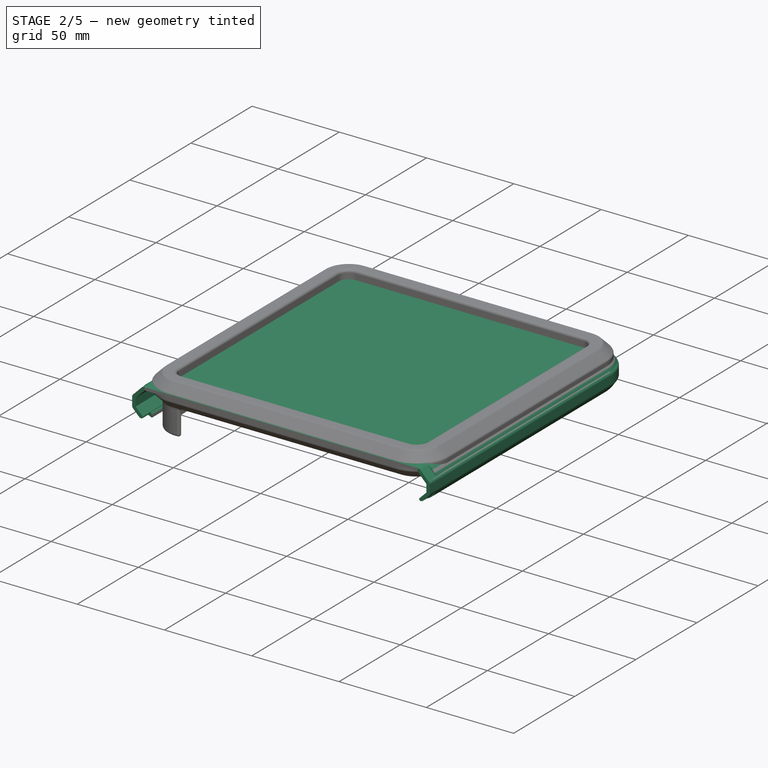
[diagram: stage 2 of 5 — iso view after this stage's code; geometry added in this stage tinted green]
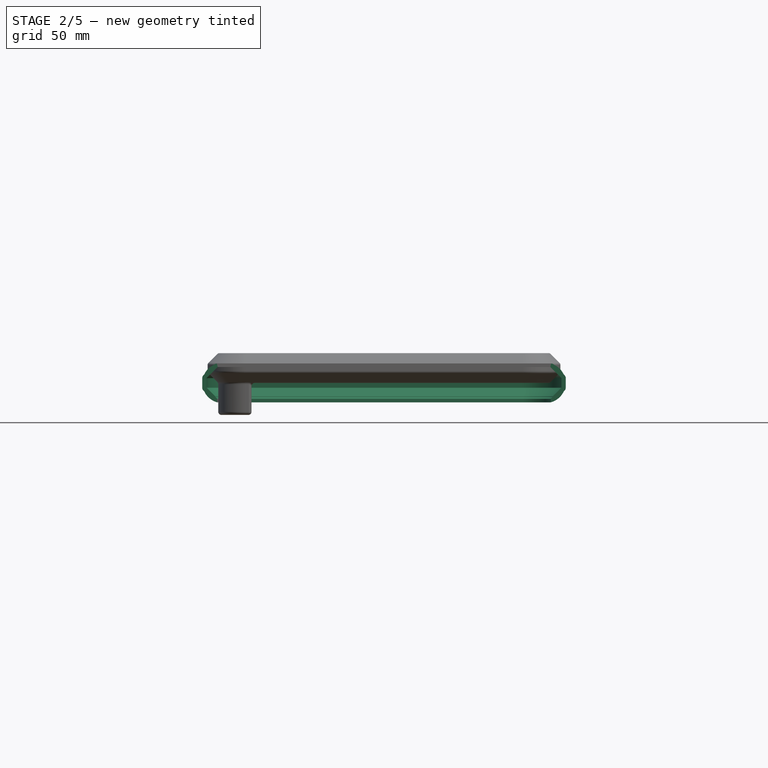
[diagram: stage 2 of 5 — front view after this stage's code; geometry added in this stage tinted green]
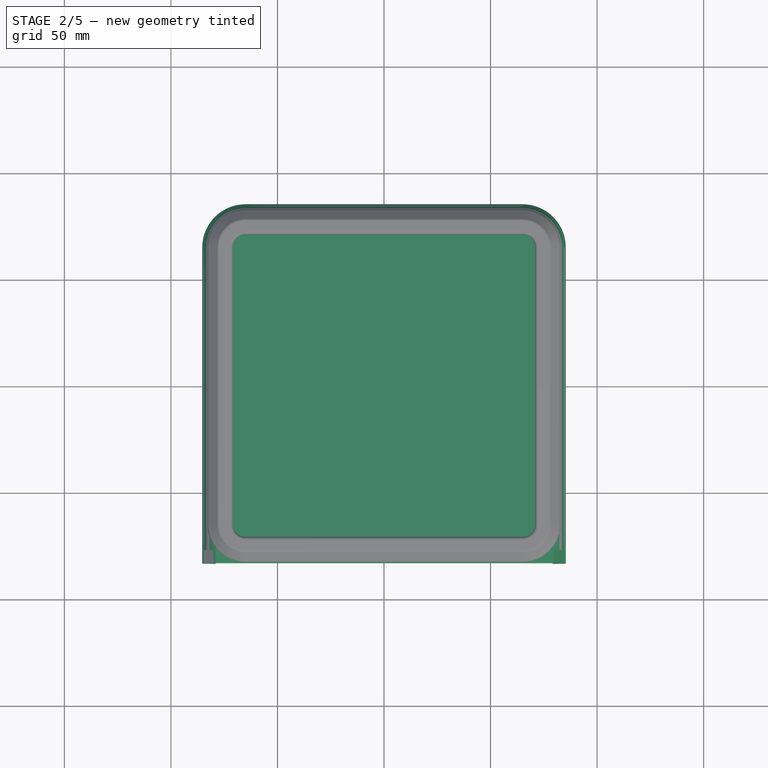
[diagram: stage 2 of 5 — top view after this stage's code; geometry added in this stage tinted green]
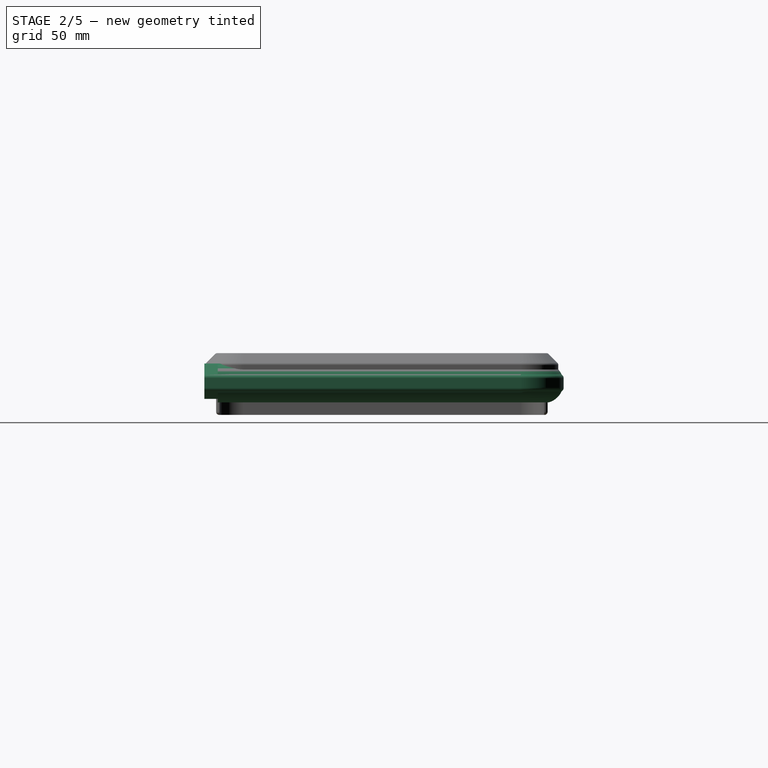
[diagram: stage 2 of 5 — right view after this stage's code; geometry added in this stage tinted green]
FEATURE [PartDesign::Body] Body  label="Can"
  Group = -> [ShapeBinder,Sketch,Sketch001,Sketch002,AdditiveLoft,Sketch012,Sketch013,Sketch014,Sketch015,Fillet,Pocket,Pocket001,Pocket002,Pocket003,Chamfer001]
  Origin = -> Origin
  Tip = -> Chamfer001
FEATURE [PartDesign::ShapeBinder] ShapeBinder003
  Support = -> [Sketch006]
  TraceSupport = false
FEATURE [Sketcher::SketchObject] Sketch022
  ExternalGeometry = -> [ShapeBinder003]
  FullyConstrained = true
  MapMode = 5
  Support = -> [XY_Plane004]
  expr: Constraints[30] = <<Spreadsheet>>.CollarGap + <<Spreadsheet>>.Slope + <<Spreadsheet>>.Thickness + <<Spreadsheet>>.CoverGap
  sketch-geometry (12):
    g0: LineSegment StartX=-83.3 StartY=-77 StartZ=0 EndX=-83.3 EndY=65 EndZ=0
    g1: LineSegment StartX=-65 StartY=83.3 StartZ=0 EndX=65 EndY=83.3 EndZ=0
    g2: LineSegment StartX=83.3 StartY=65 StartZ=0 EndX=83.3 EndY=-77 EndZ=0
    g3: LineSegment StartX=-65 StartY=83.3 StartZ=0 EndX=-65 EndY=75 EndZ=0
    g4: LineSegment StartX=-83.3 StartY=65 StartZ=0 EndX=-75 EndY=65 EndZ=0
    g5: LineSegment StartX=-75 StartY=-65 StartZ=0 EndX=-83.3 EndY=-65 EndZ=0
    g6: LineSegment StartX=-83.3 StartY=-77 StartZ=0 EndX=83.3 EndY=-77 EndZ=0
    g7: LineSegment StartX=75 StartY=-65 StartZ=0 EndX=83.3 EndY=-65 EndZ=0
    g8: LineSegment StartX=75 StartY=65 StartZ=0 EndX=83.3 EndY=65 EndZ=0
    g9: LineSegment StartX=65 StartY=75 StartZ=0 EndX=65 EndY=83.3 EndZ=0
    g10: ArcOfCircle CenterX=-65 CenterY=65 CenterZ=0 NormalX=0 NormalY=0 NormalZ=1 AngleXU=0 Radius=18.3 StartAngle=1.5708 EndAngle=3.14159
    g11: ArcOfCircle CenterX=65 CenterY=65 CenterZ=0 NormalX=0 NormalY=0 NormalZ=1 AngleXU=0 Radius=18.3 StartAngle=-9e-16 EndAngle=1.5708
  constraints (32):
    c: Vertical(g0)
    c: Horizontal(g1)
    c: Vertical(g2)
    c: Coincident(g3,g1)
    c: Coincident(g3,g-3)
    c: Vertical(g3)
    c: Coincident(g4,g0)
    c: Coincident(g4,g-3)
    c: Horizontal(g4)
    c: Coincident(g5,g-6)
    c: PointOnObject(g5,g0)
    c: Horizontal(g5)
    c: Coincident(g6,g0)
    c: Coincident(g6,g2)
    c: Horizontal(g6)
    c: Coincident(g7,g-5)
    c: PointOnObject(g7,g2)
    c: Horizontal(g7)
    c: Coincident(g8,g-4)
    c: Coincident(g8,g2)
    c: Horizontal(g8)
    c: Coincident(g9,g-4)
    c: Coincident(g9,g1)
    c: Vertical(g9)
    c: Coincident(g10,g-3)
    c: Coincident(g10,g0)
    c: Coincident(g10,g1)
    c: Coincident(g11,g-4)
    c: Coincident(g11,g1)
    c: Coincident(g11,g2)
    c: DistanceX(g0,g5) = 8.3
    c: DistanceY(g0,g-6) = 2
FEATURE [Sketcher::SketchObject] Sketch023
  ExternalGeometry = -> [Sketch022]
  FullyConstrained = true
  MapMode = 5
  Placement = pos=(0,0,0) rot=(1,0,0;1.5708rad)
  Support = -> [XZ_Plane004]
  expr: Constraints[13] = <<Spreadsheet>>.Thickness
  expr: Constraints[14] = <<Spreadsheet>>.CollarHeight + <<Spreadsheet>>.CoverGap * 2
  expr: Constraints[15] = <<Spreadsheet>>.CollarSustained + <<Spreadsheet>>.CoverGap * 2
  sketch-geometry (8):
    g0: LineSegment StartX=-78.3 StartY=7.5 StartZ=0 EndX=-83.3 EndY=2.5 EndZ=0
    g1: LineSegment StartX=-83.3 StartY=2.5 StartZ=0 EndX=-83.3 EndY=-2.5 EndZ=0
    g2: LineSegment StartX=-83.3 StartY=-2.5 StartZ=0 EndX=-78.3 EndY=-7.5 EndZ=0
    g3: LineSegment StartX=-78.3 StartY=-7.5 StartZ=0 EndX=-78.3 EndY=-9.1 EndZ=0
    g4: LineSegment StartX=-78.3 StartY=7.5 StartZ=0 EndX=-78.3 EndY=9.1 EndZ=0
    g5: LineSegment StartX=-78.3 StartY=7.5 StartZ=0 EndX=-78.3 EndY=-7.5 EndZ=0
    g6: ArcOfCircle CenterX=-75.8 CenterY=-1.2e-15 CenterZ=0 NormalX=0 NormalY=0 NormalZ=1 AngleXU=0 Radius=9.43716 StartAngle=1.83891 EndAngle=4.44428
    g7: LineSegment StartX=-83.3 StartY=2.5 StartZ=0 EndX=-84.9 EndY=2.5 EndZ=0
  constraints (24):
    c: Coincident(g0,g1)
    c: Vertical(g1)
    c: Coincident(g1,g2)
    c: Coincident(g2,g3)
    c: Vertical(g3)
    c: Coincident(g0,g4)
    c: Vertical(g4)
    c: Coincident(g5,g0)
    c: Coincident(g5,g2)
    c: Vertical(g5)
    c: Equal(g2,g0)
    c: Coincident(g6,g4)
    c: Equal(g4,g3)
    c: DistanceY(g4,g4) = 1.6
    c: DistanceY(g5,g5) = 15
    c: DistanceY(g1,g1) = 5
    c: Coincident(g7,g0)
    c: Horizontal(g7)
    c: Equal(g7,g4)
    c: Angle(g0,g5) = 0.785398
    c: Coincident(g6,g3)
    c: PointOnObject(g7,g6)
    c: Symmetric(g0,g1,g-3)
    c: DistanceY(g6,g0) = 7.5  'ClosureHeight'
FEATURE [PartDesign::AdditivePipe] AdditivePipe
  AuxilleryCurvelinear = true
  AuxillerySpineTangent = false
  Binormal = (0,0,0)
  Mode = 0
  Placement = pos=(0,0,0) rot=(1,0,0;1.5708rad)
  Profile = -> Sketch023
  Spine = -> Sketch022
  SpineTangent = false
  Transformation = 0
  Transition = 0
FEATURE [PartDesign::Body] Body004  label="CoverV2"
  Group = -> [ShapeBinder003,Sketch022,Sketch023,AdditivePipe,Sketch024,Pad001,Fillet002]
  Origin = -> Origin004
  Placement = pos=(0,0,222) rot=(0,0,1;0rad)
  Tip = -> Fillet002
  expr: .Placement.Base.z = <<Spreadsheet>>.BucketHeight - <<Spreadsheet>>.CollarHeight + <<Spreadsheet>>.Thickness + <<Spreadsheet>>.CollarHeight / 2
FEATURE [PartDesign::ShapeBinder] ShapeBinder004
  Support = -> [Sketch006]
  TraceSupport = false
FEATURE [Sketcher::SketchObject] Sketch025
  ExternalGeometry = -> [ShapeBinder004]
  FullyConstrained = true
  MapMode = 5
  Support = -> [XY_Plane005]
  expr: Constraints[30] = <<Spreadsheet>>.CollarGap + <<Spreadsheet>>.Slope + <<Spreadsheet>>.Thickness + <<Spreadsheet>>.CoverGap
  sketch-geometry (13):
    g0: LineSegment StartX=-83.3 StartY=-83.3 StartZ=0 EndX=-83.3 EndY=65 EndZ=0
    g1: LineSegment StartX=-65 StartY=83.3 StartZ=0 EndX=65 EndY=83.3 EndZ=0
    g2: LineSegment StartX=83.3 StartY=65 StartZ=0 EndX=83.3 EndY=-83.3 EndZ=0
    g3: LineSegment StartX=-65 StartY=83.3 StartZ=0 EndX=-65 EndY=75 EndZ=0
    g4: LineSegment StartX=-83.3 StartY=65 StartZ=0 EndX=-75 EndY=65 EndZ=0
    g5: LineSegment StartX=-75 StartY=-65 StartZ=0 EndX=-83.3 EndY=-65 EndZ=0
    g6: LineSegment StartX=-83.3 StartY=-83.3 StartZ=0 EndX=83.3 EndY=-83.3 EndZ=0
    g7: LineSegment StartX=75 StartY=-65 StartZ=0 EndX=83.3 EndY=-65 EndZ=0
    g8: LineSegment StartX=75 StartY=65 StartZ=0 EndX=83.3 EndY=65 EndZ=0
    g9: LineSegment StartX=65 StartY=75 StartZ=0 EndX=65 EndY=83.3 EndZ=0
    g10: ArcOfCircle CenterX=-65 CenterY=65 CenterZ=0 NormalX=0 NormalY=0 NormalZ=1 AngleXU=0 Radius=18.3 StartAngle=1.5708 EndAngle=3.14159
    g11: ArcOfCircle CenterX=65 CenterY=65 CenterZ=0 NormalX=0 NormalY=0 NormalZ=1 AngleXU=0 Radius=18.3 StartAngle=-9e-16 EndAngle=1.5708
    g12: LineSegment StartX=-65 StartY=-75 StartZ=0 EndX=-65 EndY=-83.3 EndZ=0
  constraints (35):
    c: Vertical(g0)
    c: Horizontal(g1)
    c: Vertical(g2)
    c: Coincident(g3,g1)
    c: Coincident(g3,g-3)
    c: Vertical(g3)
    c: Coincident(g4,g0)
    c: Coincident(g4,g-3)
    c: Horizontal(g4)
    c: Coincident(g5,g-6)
    c: PointOnObject(g5,g0)
    c: Horizontal(g5)
    c: Coincident(g6,g0)
    c: Coincident(g6,g2)
    c: Horizontal(g6)
    c: Coincident(g7,g-5)
    c: PointOnObject(g7,g2)
    c: Horizontal(g7)
    c: Coincident(g8,g-4)
    c: Coincident(g8,g2)
    c: Horizontal(g8)
    c: Coincident(g9,g-4)
    c: Coincident(g9,g1)
    c: Vertical(g9)
    c: Coincident(g10,g-3)
    c: Coincident(g10,g0)
    c: Coincident(g10,g1)
    c: Coincident(g11,g-4)
    c: Coincident(g11,g1)
    c: Coincident(g11,g2)
    c: DistanceX(g0,g5) = 8.3
    c: Coincident(g12,g-6)
    c: PointOnObject(g12,g6)
    c: Vertical(g12)
    c: Equal(g12,g5)
FEATURE [Sketcher::SketchObject] Sketch027
  ExternalGeometry = -> [Sketch025]
  FullyConstrained = true
  MapMode = 5
  Placement = pos=(0,0,0) rot=(1,0,0;1.5708rad)
  Support = -> [XZ_Plane005]
  expr: Constraints[10] = <<Spreadsheet>>.CollarSustained + <<Spreadsheet>>.CoverGap
  expr: Constraints[33] = <<Spreadsheet>>.CoverWallThickness
  expr: Constraints[8] = <<Spreadsheet>>.Thickness
  expr: Constraints[9] = <<Spreadsheet>>.CollarHeight + <<Spreadsheet>>.CoverGap * 2
  sketch-geometry (16):
    g0: LineSegment StartX=-78.05 StartY=7.5 StartZ=0 EndX=-83.3 EndY=2.25 EndZ=0
    g1: LineSegment StartX=-83.3 StartY=2.25 StartZ=0 EndX=-83.3 EndY=-2.25 EndZ=0
    g2: LineSegment StartX=-78.05 StartY=7.5 StartZ=0 EndX=-78.05 EndY=9.1 EndZ=0
    g3: LineSegment StartX=-78.05 StartY=7.5 StartZ=0 EndX=-78.05 EndY=-7.5 EndZ=0
    g4: LineSegment StartX=-83.3 StartY=2.25 StartZ=0 EndX=-85.3 EndY=2.25 EndZ=0
    g5: LineSegment StartX=-85.3 StartY=3.07843 StartZ=0 EndX=-79.2784 EndY=9.1 EndZ=0
    g6: LineSegment StartX=-79.2784 StartY=9.1 StartZ=0 EndX=-78.05 EndY=9.1 EndZ=0
    g7: LineSegment StartX=-85.3 StartY=3.07843 StartZ=0 EndX=-85.3 EndY=-3.07843 EndZ=0
    g8: LineSegment StartX=-85.3 StartY=-3.07843 StartZ=0 EndX=-80.8784 EndY=-7.5 EndZ=0
    g9: LineSegment StartX=-83.3 StartY=2.25 StartZ=0 EndX=-84.7142 EndY=3.66421 EndZ=0
    g10: LineSegment StartX=-83.3 StartY=-2.25 StartZ=0 EndX=-84.7142 EndY=-3.66421 EndZ=0
    g11: ArcOfCircle CenterX=-79.9814 CenterY=-6.7 CenterZ=0 NormalX=0 NormalY=0 NormalZ=1 AngleXU=0 Radius=0.8 StartAngle=4.71239 EndAngle=7.06858
    g12: LineSegment StartX=-83.3 StartY=-2.25 StartZ=0 EndX=-79.4157 EndY=-6.13431 EndZ=0
    g13: LineSegment StartX=-79.4157 StartY=-6.13431 StartZ=0 EndX=-78.05 EndY=-7.5 EndZ=0
    g14: LineSegment StartX=-80.8784 StartY=-7.5 StartZ=0 EndX=-79.9814 EndY=-7.5 EndZ=0
    g15: LineSegment StartX=-79.9814 StartY=-7.5 StartZ=0 EndX=-78.05 EndY=-7.5 EndZ=0
  constraints (44):
    c: Coincident(g0,g1)
    c: Vertical(g1)
    c: Coincident(g1,g12)
    c: Coincident(g0,g2)
    c: Vertical(g2)
    c: Coincident(g3,g0)
    c: Coincident(g3,g13)
    c: Vertical(g3)
    c: DistanceY(g2,g2) = 1.6
    c: DistanceY(g3,g3) = 15
    c: DistanceY(g1,g1) = 4.5
    c: Coincident(g4,g0)
    c: Horizontal(g4)
    c: Angle(g0,g3) = 0.785398
    c: Symmetric(g0,g1,g-3)
    c: Coincident(g6,g5)
    c: Coincident(g6,g2)
    c: Horizontal(g6)
    c: Coincident(g7,g5)
    c: Coincident(g8,g7)
    c: Coincident(g14,g8)
    c: Coincident(g15,g13)
    c: Parallel(g5,g0)
    c: Coincident(g9,g0)
    c: PointOnObject(g9,g5)
    c: Coincident(g10,g1)
    c: PointOnObject(g10,g8)
    c: Perpendicular(g8,g10)
    c: Perpendicular(g5,g9)
    c: Equal(g4,g9)
    c: Equal(g9,g10)
    c: PointOnObject(g4,g7)
    c: DistanceY(g-3,g0) = 7.5  'ClosureHeight'
    c: DistanceX(g4,g4) = 2
    c: Coincident(g12,g13)
    c: Parallel(g12,g8)
    c: Parallel(g13,g8)
    c: Coincident(g14,g15)
    c: Horizontal(g14)
    c: Horizontal(g15)
    c: Tangent(g11,g14) = -1.5708
    c: Tangent(g11,g12) = 1.5708
    c: Symmetric(g5,g7,g-1)
    c: Radius(g11) = 0.8
FEATURE [PartDesign::AdditivePipe] AdditivePipe001
  AuxilleryCurvelinear = true
  AuxillerySpineTangent = false
  Binormal = (0,0,0)
  Mode = 0
  Placement = pos=(0,0,0) rot=(1,0,0;1.5708rad)
  Profile = -> Sketch027
  Spine = -> Sketch025
  SpineTangent = false
  Transformation = 0
  Transition = 0
FEATURE [Sketcher::SketchObject] Sketch026
  AttachmentOffset = pos=(0,0,7.5) rot=(0,0,1;0rad)
  ExternalGeometry = -> [Sketch025,Sketch027]
  FullyConstrained = true
  MapMode = 5
  Placement = pos=(0,0,7.5) rot=(0,0,1;0rad)
  Support = -> [XY_Plane005]
  expr: .AttachmentOffset.Base.z = Sketch027.Constraints.ClosureHeight
  sketch-geometry (6):
    g0: LineSegment StartX=-78.05 StartY=-83.3 StartZ=0 EndX=-78.05 EndY=65 EndZ=0
    g1: LineSegment StartX=-78.05 StartY=-83.3 StartZ=0 EndX=78.05 EndY=-83.3 EndZ=0
    g2: ArcOfCircle CenterX=-65 CenterY=65 CenterZ=0 NormalX=0 NormalY=0 NormalZ=1 AngleXU=0 Radius=13.05 StartAngle=1.5708 EndAngle=3.14159
    g3: ArcOfCircle CenterX=65 CenterY=65 CenterZ=0 NormalX=0 NormalY=0 NormalZ=1 AngleXU=0 Radius=13.05 StartAngle=0 EndAngle=1.5708
    g4: LineSegment StartX=-65 StartY=78.05 StartZ=0 EndX=65 EndY=78.05 EndZ=0
    g5: LineSegment StartX=78.05 StartY=65 StartZ=0 EndX=78.05 EndY=-83.3 EndZ=0
  constraints (14):
    c: Vertical(g0)
    c: Coincident(g1,g0)
    c: PointOnObject(g-3,g1)
    c: PointOnObject(g-6,g1)
    c: Coincident(g2,g-4)
    c: Coincident(g3,g-5)
    c: Equal(g3,g2)
    c: Tangent(g0,g2) = 1.5708
    c: Tangent(g2,g4) = 1.5708
    c: Tangent(g3,g4) = 1.5708
    c: Coincident(g5,g1)
    c: Vertical(g5)
    c: Tangent(g3,g5) = 1.5708
    c: PointOnObject(g-7,g0)
FEATURE [PartDesign::Pad] Pad002
  BaseFeature = -> AdditivePipe001
  Direction = (0,0,1)
  Length = 1.6
  Length2 = 100
  Placement = pos=(0,0,0) rot=(1,0,0;1.5708rad)
  Profile = -> Sketch026
  Refine = true
  Type = 0
  expr: Length = <<Spreadsheet>>.Thickness
FEATURE [PartDesign::Fillet] Fillet003
  Base = -> Pad002 [Edge33,Edge30,Edge28,Edge35]
  BaseFeature = -> Pad002
  Placement = pos=(0,0,0) rot=(1,0,0;1.5708rad)
  Radius = 2
  SupportTransform = false
  UseAllEdges = false
FEATURE [PartDesign::Fillet] Fillet004
  Base = -> Pocket004 [Edge88,Edge30,Edge15,Edge7,Edge8,Edge1,Edge81,Edge43,Edge117,Edge45,Edge136,Edge14,Edge31]
  BaseFeature = -> Pocket004
  Radius = 1.5
  SupportTransform = false
  UseAllEdges = false
FEATURE [PartDesign::Body] Body003  label="Collar"
  Group = -> [ShapeBinder002,Sketch016,Sketch017,Sketch018,Sketch019,Sketch020,AdditiveLoft002,Sketch028,Pad003,Pocket005,Pocket004,Sketch021,Fillet004]
  Origin = -> Origin003
  Placement = pos=(0,0,215) rot=(0,0,1;0rad)
  Tip = -> Fillet004
  expr: .Placement.Base.z = <<Spreadsheet>>.BucketHeight - <<Spreadsheet>>.CollarHeight + <<Spreadsheet>>.Thickness
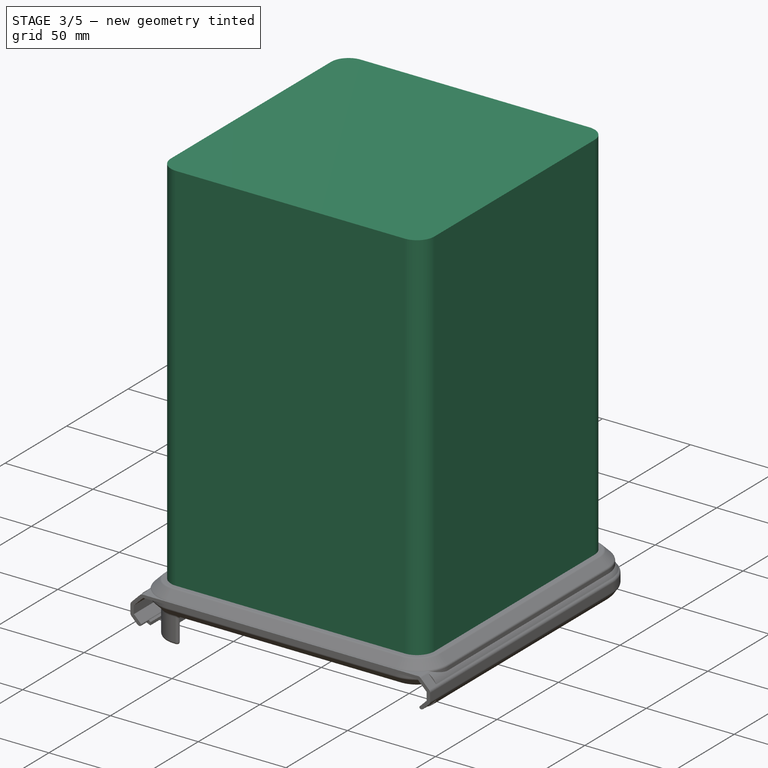
[diagram: stage 3 of 5 — iso view after this stage's code; geometry added in this stage tinted green]
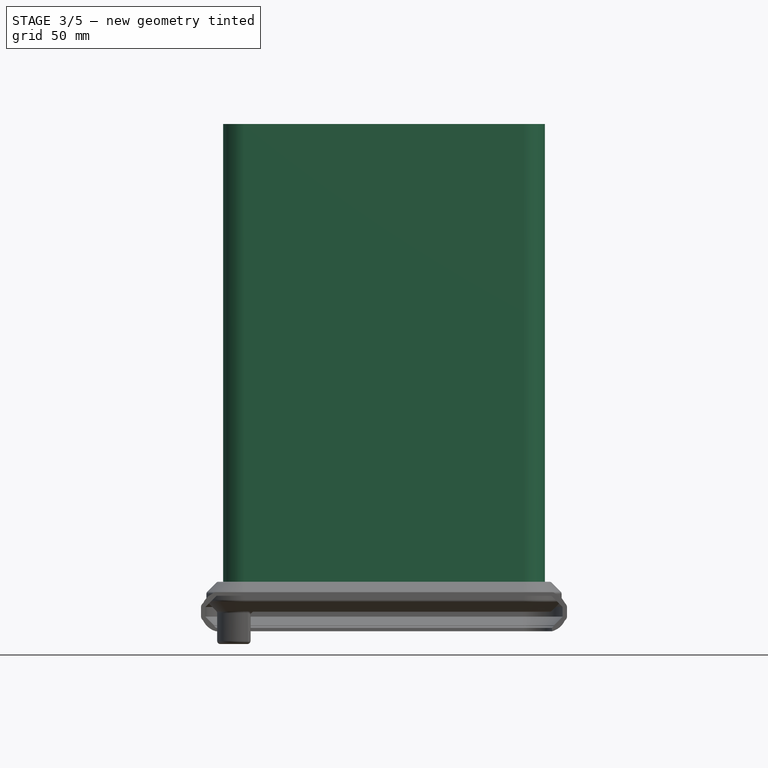
[diagram: stage 3 of 5 — front view after this stage's code; geometry added in this stage tinted green]
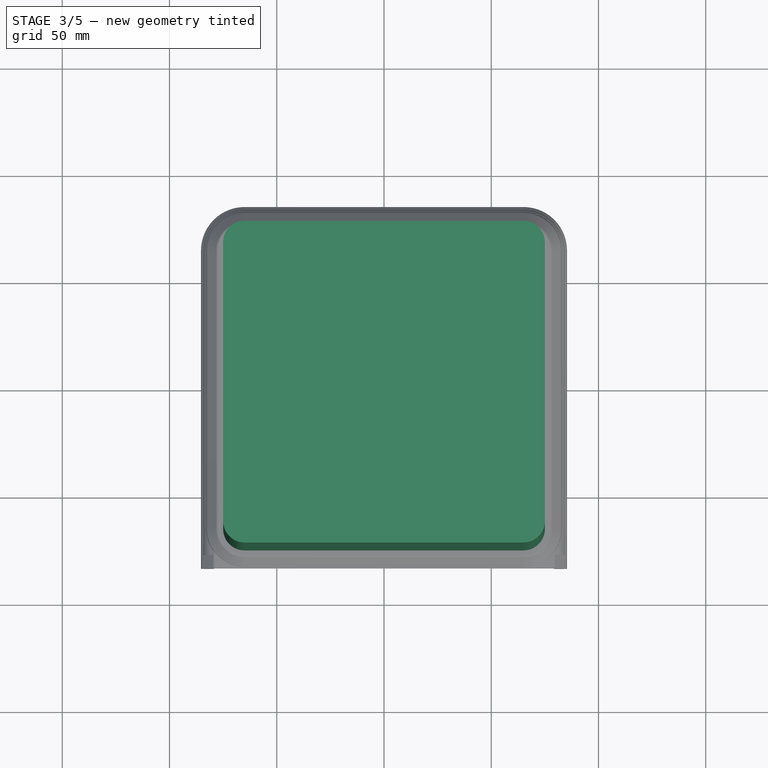
[diagram: stage 3 of 5 — top view after this stage's code; geometry added in this stage tinted green]
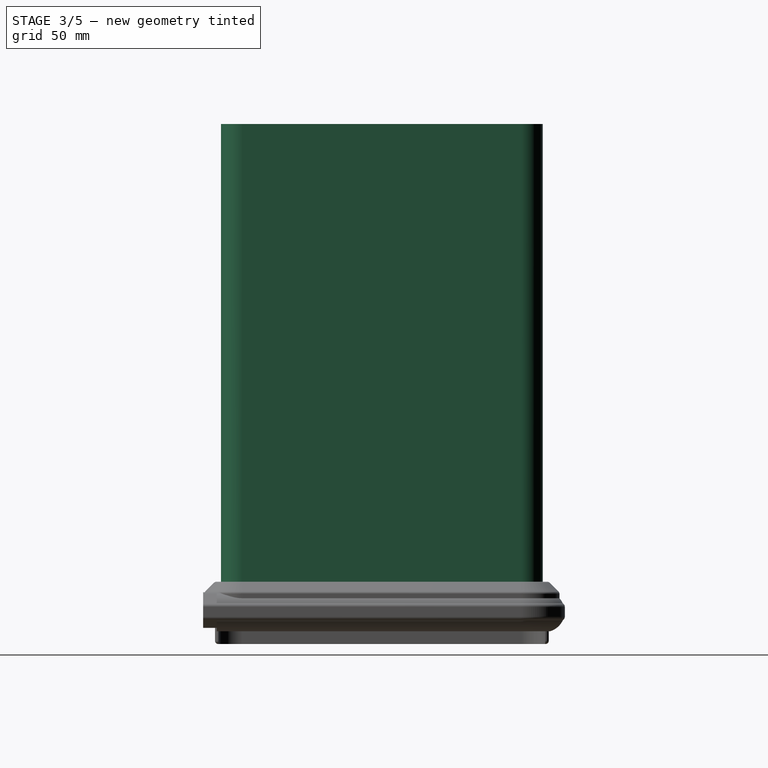
[diagram: stage 3 of 5 — right view after this stage's code; geometry added in this stage tinted green]
FEATURE [Sketcher::SketchObject] Sketch001
  AttachmentOffset = pos=(0,0,5) rot=(0,0,1;0rad)
  FullyConstrained = true
  MapMode = 5
  Placement = pos=(0,0,5) rot=(0,0,1;0rad)
  Support = -> [XY_Plane]
  expr: .AttachmentOffset.Base.z = <<Sketch>>.AttachmentOffset.Base.z + <<Spreadsheet>>.Slope
  expr: .Constraints.R = <<Spreadsheet>>.Radius
  expr: Constraints[17] = <<Spreadsheet>>.Width
  sketch-geometry (8):
    g0: LineSegment StartX=-65 StartY=75 StartZ=0 EndX=65 EndY=75 EndZ=0
    g1: LineSegment StartX=75 StartY=65 StartZ=0 EndX=75 EndY=-65 EndZ=0
    g2: LineSegment StartX=65 StartY=-75 StartZ=0 EndX=-65 EndY=-75 EndZ=0
    g3: LineSegment StartX=-75 StartY=-65 StartZ=0 EndX=-75 EndY=65 EndZ=0
    g4: ArcOfCircle CenterX=-65 CenterY=65 CenterZ=0 NormalX=0 NormalY=0 NormalZ=1 AngleXU=0 Radius=10 StartAngle=1.5708 EndAngle=3.14159
    g5: ArcOfCircle CenterX=65 CenterY=65 CenterZ=0 NormalX=0 NormalY=0 NormalZ=1 AngleXU=0 Radius=10 StartAngle=5e-16 EndAngle=1.5708
    g6: ArcOfCircle CenterX=65 CenterY=-65 CenterZ=0 NormalX=0 NormalY=0 NormalZ=1 AngleXU=0 Radius=10 StartAngle=4.71239 EndAngle=6.28319
    g7: ArcOfCircle CenterX=-65 CenterY=-65 CenterZ=0 NormalX=0 NormalY=0 NormalZ=1 AngleXU=0 Radius=10 StartAngle=3.14159 EndAngle=4.71239
  constraints (19):
    c: Horizontal(g0)
    c: Horizontal(g2)
    c: Vertical(g1)
    c: Vertical(g3)
    c: Tangent(g0,g4) = 1.5708
    c: Tangent(g3,g4) = 1.5708
    c: Tangent(g0,g5) = 1.5708
    c: Tangent(g1,g5) = 1.5708
    c: Tangent(g1,g6) = 1.5708
    c: Tangent(g2,g6) = 1.5708
    c: Tangent(g2,g7) = 1.5708
    c: Tangent(g3,g7) = 1.5708
    c: Equal(g2,g3)
    c: Equal(g3,g0)
    c: Equal(g0,g1)
    c: Equal(g4,g5)
    c: Radius(g4) = 10  'R'
    c: DistanceX(g3,g1) = 150
    c: Symmetric(g4,g6,g-1)
FEATURE [Sketcher::SketchObject] Sketch002
  AttachmentOffset = pos=(0,0,227.4) rot=(0,0,1;0rad)
  FullyConstrained = true
  MapMode = 5
  Placement = pos=(0,0,227.4) rot=(0,0,1;0rad)
  Support = -> [XY_Plane]
  expr: .AttachmentOffset.Base.z = <<Spreadsheet>>.BucketHeight
  expr: Constraints[16] = <<Spreadsheet>>.Radius
  expr: Constraints[17] = <<Spreadsheet>>.Width
  sketch-geometry (8):
    g0: LineSegment StartX=-65 StartY=75 StartZ=0 EndX=65 EndY=75 EndZ=0
    g1: LineSegment StartX=75 StartY=65 StartZ=0 EndX=75 EndY=-65 EndZ=0
    g2: LineSegment StartX=65 StartY=-75 StartZ=0 EndX=-65 EndY=-75 EndZ=0
    g3: LineSegment StartX=-75 StartY=-65 StartZ=0 EndX=-75 EndY=65 EndZ=0
    g4: ArcOfCircle CenterX=-65 CenterY=65 CenterZ=0 NormalX=0 NormalY=0 NormalZ=1 AngleXU=0 Radius=10 StartAngle=1.5708 EndAngle=3.14159
    g5: ArcOfCircle CenterX=65 CenterY=65 CenterZ=0 NormalX=0 NormalY=0 NormalZ=1 AngleXU=0 Radius=10 StartAngle=3e-16 EndAngle=1.5708
    g6: ArcOfCircle CenterX=65 CenterY=-65 CenterZ=0 NormalX=0 NormalY=0 NormalZ=1 AngleXU=0 Radius=10 StartAngle=4.71239 EndAngle=6.28319
    g7: ArcOfCircle CenterX=-65 CenterY=-65 CenterZ=0 NormalX=0 NormalY=0 NormalZ=1 AngleXU=0 Radius=10 StartAngle=3.14159 EndAngle=4.71239
  constraints (19):
    c: Horizontal(g0)
    c: Horizontal(g2)
    c: Vertical(g1)
    c: Vertical(g3)
    c: Tangent(g0,g4) = 1.5708
    c: Tangent(g3,g4) = 1.5708
    c: Tangent(g0,g5) = 1.5708
    c: Tangent(g1,g5) = 1.5708
    c: Tangent(g1,g6) = 1.5708
    c: Tangent(g2,g6) = 1.5708
    c: Tangent(g2,g7) = 1.5708
    c: Tangent(g3,g7) = 1.5708
    c: Equal(g2,g3)
    c: Equal(g3,g0)
    c: Equal(g0,g1)
    c: Equal(g4,g5)
    c: Radius(g4) = 10
    c: DistanceX(g3,g1) = 150
    c: Symmetric(g4,g6,g-1)
FEATURE [Spreadsheet::Sheet] Spreadsheet
  cells = B2='Width; C2(Width)==150 mm; B3='Radius; C3(Radius)==10 mm; B4='Slope; C4(Slope)==5 mm; B5='Height; C5(Height)==210 mm; B6='GrooveMargin; C6(GrooveMargin)==2.5 mm; B7='GrooveWidth; C7(GrooveWidth)==6 mm; B8='GrooveDepth; C8(GrooveDepth)==1.6 mm; B9='Thickness; C9(Thickness)==1.6 mm; B10='CoverGap; C10(CoverGap)==0.5 mm; B11='CollarSustained; C11(CollarSustained)==4 mm; B12='CollarGap; C12(CollarGap)==1.2 mm; B13='CollarInset; C13(CollarInset)==1.2 mm; B14='CollarHeight; C14(CollarHeight)==Slope * 2 + CollarSustained; B15='BucketHeight; C15(BucketHeight)==Slope + Height + CollarHeight - Thickness; B16='CoverWallThickness; C16(CoverWallThickness)==2 mm
FEATURE [Sketcher::SketchObject] Sketch006  label="Template"
  FullyConstrained = true
  MapMode = 5
  Support = -> [XY_Plane001]
  expr: Constraints[16] = <<Spreadsheet>>.Radius
  expr: Constraints[17] = <<Spreadsheet>>.Width
  sketch-geometry (8):
    g0: LineSegment StartX=-65 StartY=75 StartZ=0 EndX=65 EndY=75 EndZ=0
    g1: LineSegment StartX=75 StartY=65 StartZ=0 EndX=75 EndY=-65 EndZ=0
    g2: LineSegment StartX=65 StartY=-75 StartZ=0 EndX=-65 EndY=-75 EndZ=0
    g3: LineSegment StartX=-75 StartY=-65 StartZ=0 EndX=-75 EndY=65 EndZ=0
    g4: ArcOfCircle CenterX=-65 CenterY=65 CenterZ=0 NormalX=0 NormalY=0 NormalZ=1 AngleXU=0 Radius=10 StartAngle=1.5708 EndAngle=3.14159
    g5: ArcOfCircle CenterX=65 CenterY=65 CenterZ=0 NormalX=0 NormalY=0 NormalZ=1 AngleXU=0 Radius=10 StartAngle=-9e-16 EndAngle=1.5708
    g6: ArcOfCircle CenterX=65 CenterY=-65 CenterZ=0 NormalX=0 NormalY=0 NormalZ=1 AngleXU=0 Radius=10 StartAngle=4.71239 EndAngle=6.28319
    g7: ArcOfCircle CenterX=-65 CenterY=-65 CenterZ=0 NormalX=0 NormalY=0 NormalZ=1 AngleXU=0 Radius=10 StartAngle=3.14159 EndAngle=4.71239
  constraints (19):
    c: Horizontal(g0)
    c: Horizontal(g2)
    c: Vertical(g1)
    c: Vertical(g3)
    c: Tangent(g0,g4) = 1.5708
    c: Tangent(g3,g4) = 1.5708
    c: Tangent(g0,g5) = 1.5708
    c: Tangent(g1,g5) = 1.5708
    c: Tangent(g1,g6) = 1.5708
    c: Tangent(g2,g6) = 1.5708
    c: Tangent(g2,g7) = 1.5708
    c: Tangent(g3,g7) = 1.5708
    c: Equal(g2,g3)
    c: Equal(g3,g0)
    c: Equal(g0,g1)
    c: Equal(g4,g5)
    c: Radius(g4) = 10
    c: DistanceX(g3,g1) = 150
    c: Symmetric(g4,g6,g-1)
FEATURE [PartDesign::Body] Body001  label="Template_"
  Group = -> [Sketch006]
  Origin = -> Origin001
FEATURE [PartDesign::ShapeBinder] ShapeBinder
  Support = -> [Sketch006]
  TraceSupport = false
FEATURE [Sketcher::SketchObject] Sketch
  ExternalGeometry = -> [ShapeBinder]
  FullyConstrained = true
  MapMode = 5
  Support = -> [XY_Plane]
  expr: Constraints[15] = <<Spreadsheet>>.Width - <<Spreadsheet>>.Slope * 2
  sketch-geometry (8):
    g0: LineSegment StartX=-65 StartY=70 StartZ=0 EndX=65 EndY=70 EndZ=0
    g1: LineSegment StartX=70 StartY=65 StartZ=0 EndX=70 EndY=-65 EndZ=0
    g2: LineSegment StartX=65 StartY=-70 StartZ=0 EndX=-65 EndY=-70 EndZ=0
    g3: LineSegment StartX=-70 StartY=-65 StartZ=0 EndX=-70 EndY=65 EndZ=0
    g4: ArcOfCircle CenterX=-65 CenterY=65 CenterZ=0 NormalX=0 NormalY=0 NormalZ=1 AngleXU=0 Radius=5 StartAngle=1.5708 EndAngle=3.14159
    g5: ArcOfCircle CenterX=65 CenterY=65 CenterZ=0 NormalX=0 NormalY=0 NormalZ=1 AngleXU=0 Radius=5 StartAngle=2e-16 EndAngle=1.5708
    g6: ArcOfCircle CenterX=65 CenterY=-65 CenterZ=0 NormalX=0 NormalY=0 NormalZ=1 AngleXU=0 Radius=5 StartAngle=4.71239 EndAngle=6.28319
    g7: ArcOfCircle CenterX=-65 CenterY=-65 CenterZ=0 NormalX=0 NormalY=0 NormalZ=1 AngleXU=0 Radius=5 StartAngle=3.14159 EndAngle=4.71239
  constraints (18):
    c: Horizontal(g0)
    c: Horizontal(g2)
    c: Vertical(g1)
    c: Vertical(g3)
    c: Tangent(g0,g4) = 1.5708
    c: Tangent(g3,g4) = 1.5708
    c: Tangent(g0,g5) = 1.5708
    c: Tangent(g1,g5) = 1.5708
    c: Tangent(g1,g6) = 1.5708
    c: Tangent(g2,g6) = 1.5708
    c: Tangent(g2,g7) = 1.5708
    c: Tangent(g3,g7) = 1.5708
    c: Equal(g2,g3)
    c: Equal(g3,g0)
    c: Equal(g4,g5)
    c: DistanceX(g3,g1) = 140
    c: Symmetric(g4,g6,g-1)
    c: Coincident(g4,g-3)
FEATURE [PartDesign::AdditiveLoft] AdditiveLoft
  Closed = false
  Profile = -> Sketch
  Ruled = true
  Sections = -> [Sketch001,Sketch002]
FEATURE [Sketcher::SketchObject] Sketch021
  AttachmentOffset = pos=(0,0,14) rot=(0,0,1;0rad)
  ExternalGeometry = -> [ShapeBinder002]
  FullyConstrained = true
  MapMode = 5
  Placement = pos=(0,0,14) rot=(0,0,1;0rad)
  Support = -> [XY_Plane003]
  expr: .AttachmentOffset.Base.z = <<Sketch019>>.AttachmentOffset.Base.z
  expr: Constraints[39] = <<Spreadsheet>>.CollarInset + <<Spreadsheet>>.GrooveDepth + <<Spreadsheet>>.CollarGap
  sketch-geometry (16):
    g0: LineSegment StartX=-65 StartY=71 StartZ=0 EndX=65 EndY=71 EndZ=0
    g1: LineSegment StartX=71 StartY=65 StartZ=0 EndX=71 EndY=-65 EndZ=0
    g2: LineSegment StartX=65 StartY=-71 StartZ=0 EndX=-65 EndY=-71 EndZ=0
    g3: LineSegment StartX=-71 StartY=-65 StartZ=0 EndX=-71 EndY=65 EndZ=0
    g4: LineSegment StartX=-65 StartY=71 StartZ=0 EndX=-65 EndY=75 EndZ=0
    g5: LineSegment StartX=65 StartY=71 StartZ=0 EndX=65 EndY=75 EndZ=0
    g6: LineSegment StartX=75 StartY=65 StartZ=0 EndX=71 EndY=65 EndZ=0
    g7: LineSegment StartX=71 StartY=-65 StartZ=0 EndX=75 EndY=-65 EndZ=0
    g8: LineSegment StartX=65 StartY=-71 StartZ=0 EndX=65 EndY=-75 EndZ=0
    g9: LineSegment StartX=-65 StartY=-71 StartZ=0 EndX=-65 EndY=-75 EndZ=0
    g10: LineSegment StartX=-71 StartY=-65 StartZ=0 EndX=-75 EndY=-65 EndZ=0
    g11: LineSegment StartX=-71 StartY=65 StartZ=0 EndX=-75 EndY=65 EndZ=0
    g12: ArcOfCircle CenterX=-65 CenterY=65 CenterZ=0 NormalX=0 NormalY=0 NormalZ=1 AngleXU=0 Radius=6 StartAngle=1.5708 EndAngle=3.14159
    g13: ArcOfCircle CenterX=65 CenterY=65 CenterZ=0 NormalX=0 NormalY=0 NormalZ=1 AngleXU=0 Radius=6 StartAngle=-3.6e-15 EndAngle=1.5708
    g14: ArcOfCircle CenterX=65 CenterY=-65 CenterZ=0 NormalX=0 NormalY=0 NormalZ=1 AngleXU=0 Radius=6 StartAngle=4.71239 EndAngle=6.28319
    g15: ArcOfCircle CenterX=-65 CenterY=-65 CenterZ=0 NormalX=0 NormalY=0 NormalZ=1 AngleXU=0 Radius=6 StartAngle=3.14159 EndAngle=4.71239
  constraints (40):
    c: Horizontal(g0)
    c: Vertical(g1)
    c: Horizontal(g2)
    c: Vertical(g3)
    c: Coincident(g4,g0)
    c: Coincident(g4,g-3)
    c: Vertical(g4)
    c: Coincident(g5,g0)
    c: Coincident(g5,g-4)
    c: Vertical(g5)
    c: Coincident(g6,g-4)
    c: Coincident(g6,g1)
    c: Horizontal(g6)
    c: Coincident(g7,g1)
    c: Coincident(g7,g-5)
    c: Horizontal(g7)
    c: Coincident(g8,g2)
    c: Coincident(g8,g-5)
    c: Vertical(g8)
    c: Coincident(g9,g2)
    c: Coincident(g9,g-6)
    c: Vertical(g9)
    c: Coincident(g10,g3)
    c: Coincident(g10,g-6)
    c: Coincident(g11,g3)
    c: Coincident(g11,g-3)
    c: Horizontal(g11)
    c: Coincident(g12,g-3)
    c: Coincident(g12,g3)
    c: Coincident(g12,g0)
    c: Coincident(g13,g-4)
    c: Coincident(g13,g0)
    c: Coincident(g13,g1)
    c: Coincident(g14,g-5)
    c: Coincident(g14,g1)
    c: Coincident(g14,g2)
    c: Coincident(g15,g-6)
    c: Coincident(g15,g2)
    c: Coincident(g15,g3)
    c: Distance(g4) = 4
FEATURE [PartDesign::Fillet] Fillet
  Base = -> AdditiveLoft [Edge19]
  BaseFeature = -> AdditiveLoft
  Radius = 5
  SupportTransform = false
  UseAllEdges = false
FEATURE [Sketcher::SketchObject] Sketch024
  AttachmentOffset = pos=(0,0,7.5) rot=(0,0,1;0rad)
  ExternalGeometry = -> [Sketch023,Sketch022]
  FullyConstrained = true
  MapMode = 5
  Placement = pos=(0,0,7.5) rot=(0,0,1;0rad)
  Support = -> [XY_Plane004]
  expr: .AttachmentOffset.Base.z = <<Sketch023>>.Constraints.ClosureHeight
  sketch-geometry (6):
    g0: LineSegment StartX=-78.3 StartY=-77 StartZ=0 EndX=-78.3 EndY=65 EndZ=0
    g1: LineSegment StartX=-78.3 StartY=-77 StartZ=0 EndX=78.3 EndY=-77 EndZ=0
    g2: ArcOfCircle CenterX=-65 CenterY=65 CenterZ=0 NormalX=0 NormalY=0 NormalZ=1 AngleXU=0 Radius=13.3 StartAngle=1.5708 EndAngle=3.14159
    g3: ArcOfCircle CenterX=65 CenterY=65 CenterZ=0 NormalX=0 NormalY=0 NormalZ=1 AngleXU=0 Radius=13.3 StartAngle=6e-16 EndAngle=1.5708
    g4: LineSegment StartX=-65 StartY=78.3 StartZ=0 EndX=65 EndY=78.3 EndZ=0
    g5: LineSegment StartX=78.3 StartY=65 StartZ=0 EndX=78.3 EndY=-77 EndZ=0
  constraints (14):
    c: Vertical(g0)
    c: PointOnObject(g-3,g0)
    c: Coincident(g1,g0)
    c: PointOnObject(g-4,g1)
    c: PointOnObject(g-7,g1)
    c: Coincident(g2,g-5)
    c: Coincident(g3,g-6)
    c: Equal(g3,g2)
    c: Tangent(g0,g2) = 1.5708
    c: Tangent(g2,g4) = 1.5708
    c: Tangent(g3,g4) = 1.5708
    c: Coincident(g5,g1)
    c: Vertical(g5)
    c: Tangent(g3,g5) = 1.5708
FEATURE [PartDesign::Pad] Pad001
  BaseFeature = -> AdditivePipe
  Direction = (1,1,1)
  Length = 1.6
  Length2 = 100
  Placement = pos=(0,0,0) rot=(1,0,0;1.5708rad)
  Profile = -> Sketch024
  Refine = true
  Type = 0
  expr: Length = <<Spreadsheet>>.Thickness
FEATURE [PartDesign::Fillet] Fillet002
  Base = -> Pad001 [Edge1,Edge30]
  BaseFeature = -> Pad001
  Placement = pos=(0,0,0) rot=(1,0,0;1.5708rad)
  Radius = 2
  SupportTransform = false
  UseAllEdges = false
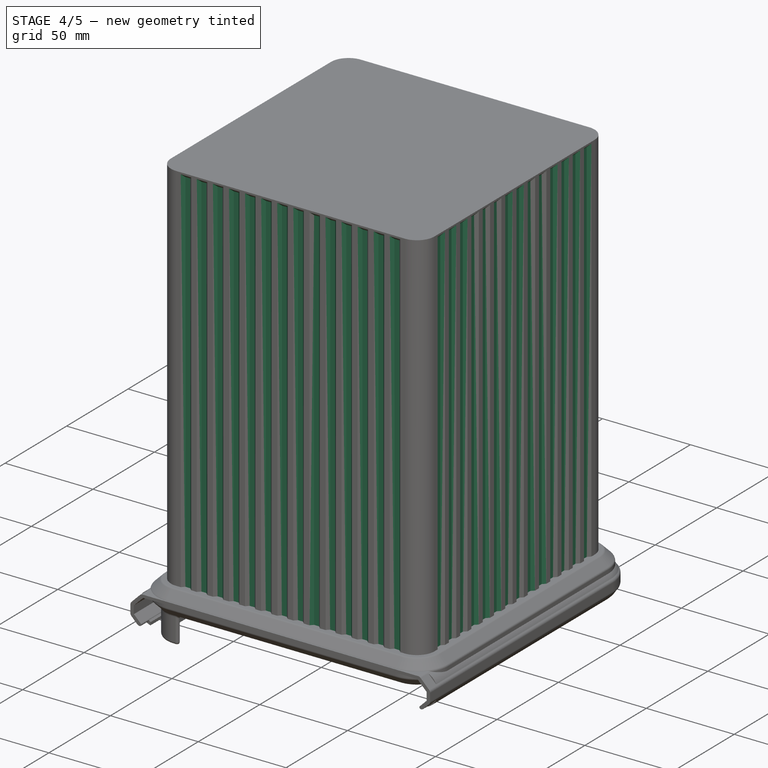
[diagram: stage 4 of 5 — iso view after this stage's code; geometry added in this stage tinted green]
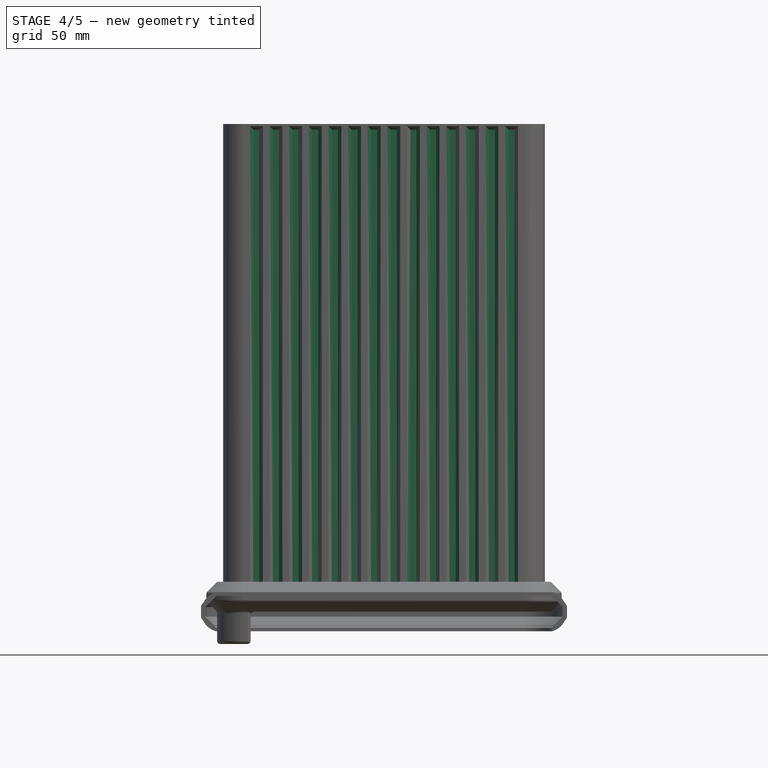
[diagram: stage 4 of 5 — front view after this stage's code; geometry added in this stage tinted green]
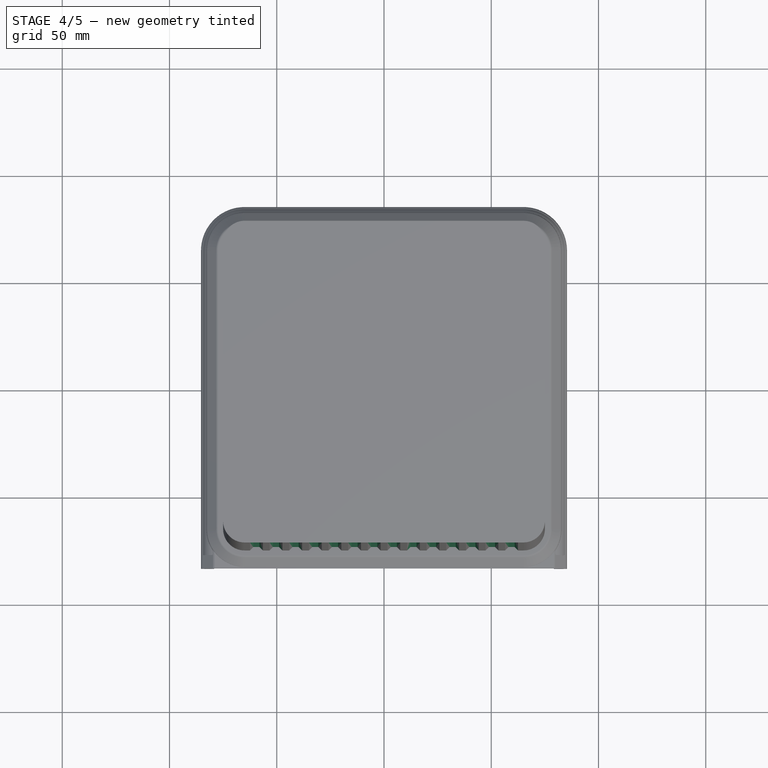
[diagram: stage 4 of 5 — top view after this stage's code; geometry added in this stage tinted green]
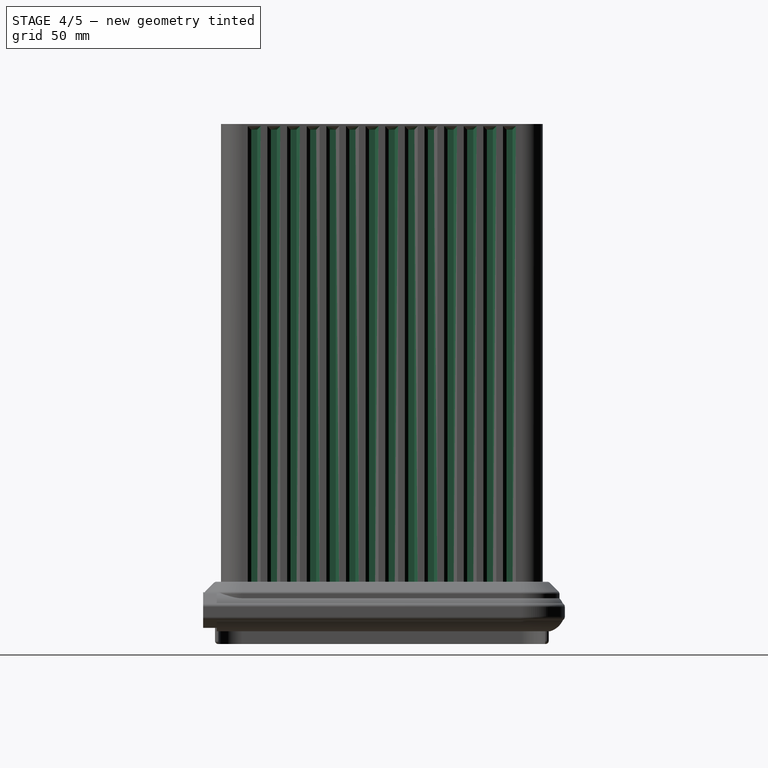
[diagram: stage 4 of 5 — right view after this stage's code; geometry added in this stage tinted green]
FEATURE [PartDesign::Pocket] Pocket
  BaseFeature = -> Fillet
  Direction = (1,1,1)
  Length = 1.6
  Length2 = 100
  Profile = -> Sketch012
  Type = 0
  expr: Length = <<Spreadsheet>>.GrooveDepth
FEATURE [PartDesign::Pocket] Pocket001
  BaseFeature = -> Pocket
  Direction = (1,1,1)
  Length = 1.6
  Length2 = 100
  Profile = -> Sketch013
  Reversed = true
  Type = 0
  expr: Length = <<Spreadsheet>>.GrooveDepth
FEATURE [PartDesign::Pocket] Pocket002
  BaseFeature = -> Pocket001
  Direction = (1,1,1)
  Length = 1.6
  Length2 = 100
  Profile = -> Sketch014
  Type = 0
  expr: Length = <<Spreadsheet>>.GrooveDepth
FEATURE [PartDesign::Pocket] Pocket003
  BaseFeature = -> Pocket002
  Direction = (1,1,1)
  Length = 1.6
  Length2 = 100
  Profile = -> Sketch015
  Reversed = true
  Type = 0
  expr: Length = <<Spreadsheet>>.GrooveDepth
FEATURE [PartDesign::Chamfer] Chamfer001
  Angle = 45
  Base = -> Pocket003 [Face306,Face305,Face304,Face303,Face302,Face301,Face300,Face299,Face298,Face297,Face296,Face295,Face294,Face293,Face278,Face277,Face276,Face275,Face274,Face273,Face272,Face271,Face270,Face269,Face268,Face267,Face266,Face265,Face90,Face89,Face88,Face87,Face86,Face85,Face84,Face83,Face96,Face95,Face94,Face93,+16 more]
  BaseFeature = -> Pocket003
  ChamferType = 0
  FlipDirection = false
  Size = 1.59
  Size2 = 1
  SupportTransform = false
  UseAllEdges = false
  expr: Size = <<Spreadsheet>>.GrooveDepth - 0.01 mm
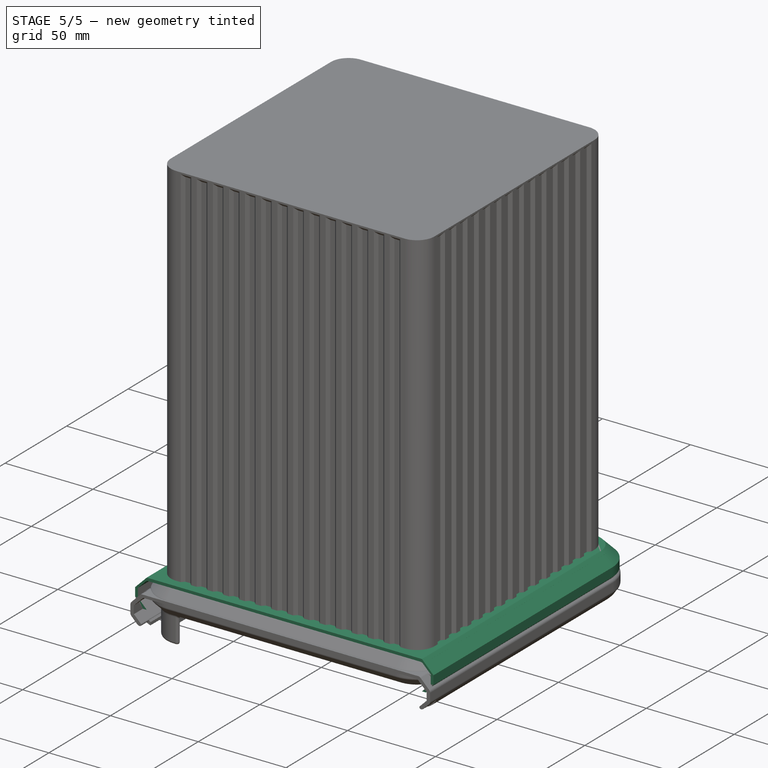
[diagram: stage 5 of 5 — iso view after this stage's code; geometry added in this stage tinted green]
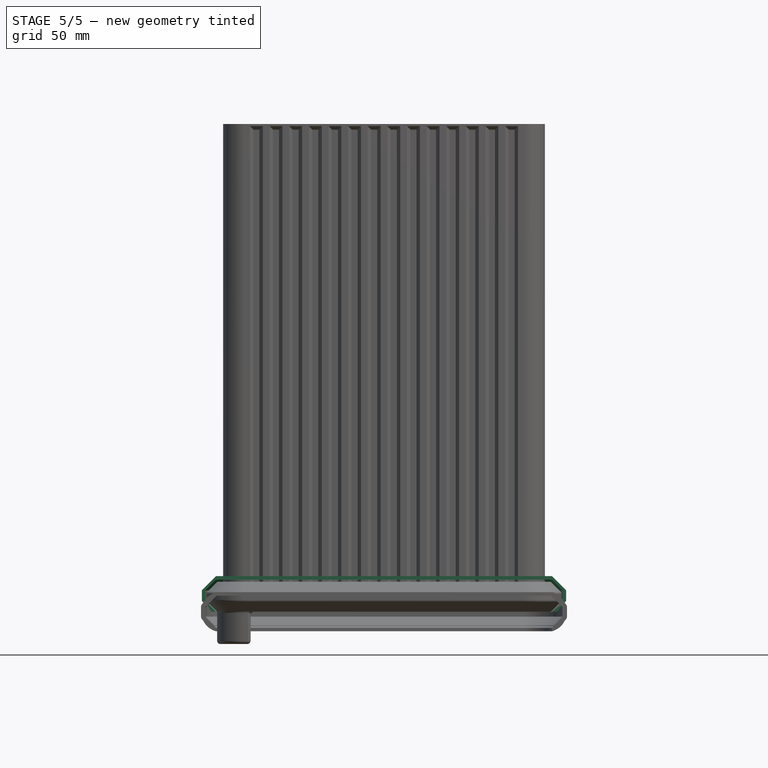
[diagram: stage 5 of 5 — front view after this stage's code; geometry added in this stage tinted green]
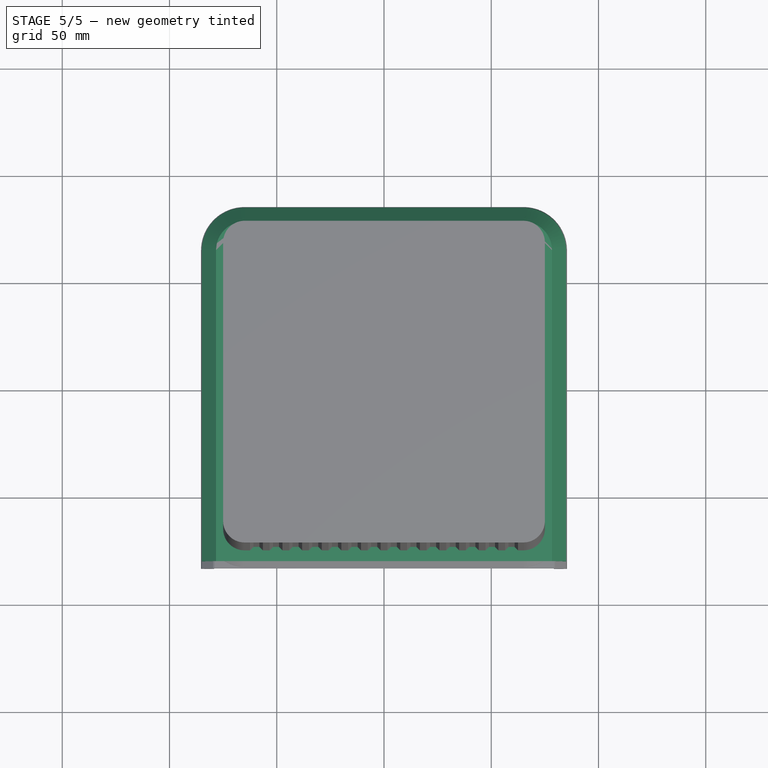
[diagram: stage 5 of 5 — top view after this stage's code; geometry added in this stage tinted green]
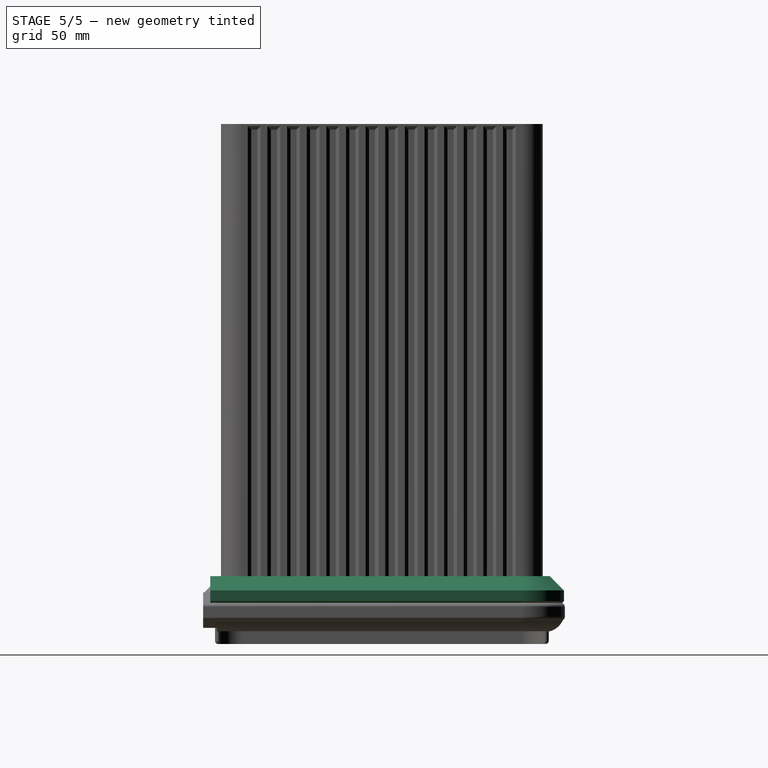
[diagram: stage 5 of 5 — right view after this stage's code; geometry added in this stage tinted green]
FEATURE [PartDesign::ShapeBinder] ShapeBinder001
  Support = -> [Sketch006]
  TraceSupport = false
FEATURE [Sketcher::SketchObject] Sketch007
  ExternalGeometry = -> [ShapeBinder001]
  FullyConstrained = true
  MapMode = 5
  Support = -> [XY_Plane002]
  expr: Constraints[29] = <<Spreadsheet>>.Thickness * 1.4
  expr: Constraints[47] = <<Spreadsheet>>.CollarGap + <<Spreadsheet>>.CoverGap + <<Spreadsheet>>.Thickness
  expr: Constraints[48] = <<Spreadsheet>>.Slope
  sketch-geometry (18):
    g0: LineSegment StartX=-78.3 StartY=-80 StartZ=0 EndX=-78.3 EndY=65 EndZ=0
    g1: LineSegment StartX=-65 StartY=78.3 StartZ=0 EndX=65 EndY=78.3 EndZ=0
    g2: LineSegment StartX=78.3 StartY=65 StartZ=0 EndX=78.3 EndY=-80 EndZ=0
    g3: LineSegment StartX=78.3 StartY=-80 StartZ=0 EndX=-78.3 EndY=-80 EndZ=0
    g4: LineSegment StartX=-65 StartY=-75 StartZ=0 EndX=-65 EndY=-80 EndZ=0
    g5: LineSegment StartX=78.3 StartY=65 StartZ=0 EndX=75 EndY=65 EndZ=0
    g6: LineSegment StartX=65 StartY=78.3 StartZ=0 EndX=65 EndY=75 EndZ=0
    g7: LineSegment StartX=-65 StartY=78.3 StartZ=0 EndX=-65 EndY=75 EndZ=0
    g8: LineSegment StartX=-78.3 StartY=65 StartZ=0 EndX=-75 EndY=65 EndZ=0
    g9: ArcOfCircle CenterX=-65 CenterY=65 CenterZ=0 NormalX=0 NormalY=0 NormalZ=1 AngleXU=0 Radius=13.3 StartAngle=1.5708 EndAngle=3.14159
    g10: ArcOfCircle CenterX=65 CenterY=65 CenterZ=0 NormalX=0 NormalY=0 NormalZ=1 AngleXU=0 Radius=13.3 StartAngle=-9e-16 EndAngle=1.5708
    g11: LineSegment StartX=-78.3 StartY=-80 StartZ=0 EndX=-80.54 EndY=-80 EndZ=0
    g12: ArcOfCircle CenterX=-65 CenterY=65 CenterZ=0 NormalX=0 NormalY=0 NormalZ=1 AngleXU=0 Radius=15.54 StartAngle=1.5708 EndAngle=3.14159
    g13: LineSegment StartX=-80.54 StartY=65 StartZ=0 EndX=-80.54 EndY=-80 EndZ=0
    g14: ArcOfCircle CenterX=65 CenterY=65 CenterZ=0 NormalX=0 NormalY=0 NormalZ=1 AngleXU=0 Radius=15.54 StartAngle=7.3e-15 EndAngle=1.5708
    g15: LineSegment StartX=-65 StartY=80.54 StartZ=0 EndX=65 EndY=80.54 EndZ=0
    g16: LineSegment StartX=80.54 StartY=65 StartZ=0 EndX=80.54 EndY=-80 EndZ=0
    g17: LineSegment StartX=80.54 StartY=-80 StartZ=0 EndX=78.3 EndY=-80 EndZ=0
  constraints (49):
    c: Vertical(g0)
    c: Horizontal(g1)
    c: Vertical(g2)
    c: Horizontal(g3)
    c: Coincident(g4,g-6)
    c: Vertical(g4)
    c: Coincident(g5,g2)
    c: Coincident(g5,g-4)
    c: Coincident(g6,g1)
    c: Coincident(g6,g-4)
    c: Vertical(g6)
    c: Coincident(g7,g1)
    c: Coincident(g7,g-3)
    c: Coincident(g8,g0)
    c: Coincident(g8,g-3)
    c: Horizontal(g8)
    c: Coincident(g9,g0)
    c: Coincident(g9,g1)
    c: Coincident(g9,g-3)
    c: Coincident(g10,g-4)
    c: Coincident(g10,g1)
    c: Coincident(g10,g2)
    c: Equal(g6,g7)
    c: PointOnObject(g4,g3)
    c: Coincident(g3,g2)
    c: Coincident(g3,g0)
    c: Horizontal(g5)
    c: Coincident(g11,g0)
    c: Horizontal(g11)
    c: Distance(g11) = 2.24
    c: Coincident(g12,g9)
    c: PointOnObject(g12,g7)
    c: PointOnObject(g12,g8)
    c: Coincident(g13,g12)
    c: Coincident(g13,g11)
    c: Vertical(g13)
    c: Coincident(g14,g10)
    c: PointOnObject(g14,g5)
    c: PointOnObject(g14,g6)
    c: Coincident(g15,g12)
    c: Coincident(g15,g14)
    c: Horizontal(g15)
    c: Coincident(g16,g14)
    c: Vertical(g16)
    c: Coincident(g17,g16)
    c: Coincident(g17,g2)
    c: Horizontal(g17)
    c: DistanceY(g7,g7) = 3.3
    c: DistanceY(g4,g4) = 5
FEATURE [Sketcher::SketchObject] Sketch008
  AttachmentOffset = pos=(0,0,5) rot=(0,0,1;0rad)
  ExternalGeometry = -> [ShapeBinder001]
  FullyConstrained = true
  MapMode = 5
  Placement = pos=(0,0,5) rot=(0,0,1;0rad)
  Support = -> [XY_Plane002]
  expr: .AttachmentOffset.Base.z = <<Sketch007>>.AttachmentOffset.Base.z + 5 mm
  expr: Constraints[16] = <<Spreadsheet>>.Slope + <<Spreadsheet>>.CollarGap + <<Spreadsheet>>.CoverGap + <<Spreadsheet>>.Thickness
  expr: Constraints[30] = <<Spreadsheet>>.Thickness
  sketch-geometry (18):
    g0: LineSegment StartX=-83.3 StartY=-80 StartZ=0 EndX=-83.3 EndY=65 EndZ=0
    g1: LineSegment StartX=-65 StartY=83.3 StartZ=0 EndX=65 EndY=83.3 EndZ=0
    g2: LineSegment StartX=83.3 StartY=65 StartZ=0 EndX=83.3 EndY=-80 EndZ=0
    g3: LineSegment StartX=83.3 StartY=-80 StartZ=0 EndX=-83.3 EndY=-80 EndZ=0
    g4: LineSegment StartX=-65 StartY=-75 StartZ=0 EndX=-65 EndY=-80 EndZ=0
    g5: LineSegment StartX=83.3 StartY=65 StartZ=0 EndX=75 EndY=65 EndZ=0
    g6: LineSegment StartX=65 StartY=83.3 StartZ=0 EndX=65 EndY=75 EndZ=0
    g7: LineSegment StartX=-65 StartY=83.3 StartZ=0 EndX=-65 EndY=75 EndZ=0
    g8: LineSegment StartX=-83.3 StartY=65 StartZ=0 EndX=-75 EndY=65 EndZ=0
    g9: ArcOfCircle CenterX=-65 CenterY=65 CenterZ=0 NormalX=0 NormalY=0 NormalZ=1 AngleXU=0 Radius=18.3 StartAngle=1.5708 EndAngle=3.14159
    g10: ArcOfCircle CenterX=65 CenterY=65 CenterZ=0 NormalX=0 NormalY=0 NormalZ=1 AngleXU=0 Radius=18.3 StartAngle=-9e-16 EndAngle=1.5708
    g11: LineSegment StartX=-83.3 StartY=-80 StartZ=0 EndX=-84.9 EndY=-80 EndZ=0
    g12: ArcOfCircle CenterX=-65 CenterY=65 CenterZ=0 NormalX=0 NormalY=0 NormalZ=1 AngleXU=0 Radius=19.9 StartAngle=1.5708 EndAngle=3.14159
    g13: LineSegment StartX=-84.9 StartY=65 StartZ=0 EndX=-84.9 EndY=-80 EndZ=0
    g14: ArcOfCircle CenterX=65 CenterY=65 CenterZ=0 NormalX=0 NormalY=0 NormalZ=1 AngleXU=0 Radius=19.9 StartAngle=-2.7e-15 EndAngle=1.5708
    g15: LineSegment StartX=-65 StartY=84.9 StartZ=0 EndX=65 EndY=84.9 EndZ=0
    g16: LineSegment StartX=84.9 StartY=65 StartZ=0 EndX=84.9 EndY=-80 EndZ=0
    g17: LineSegment StartX=84.9 StartY=-80 StartZ=0 EndX=83.3 EndY=-80 EndZ=0
  constraints (49):
    c: Vertical(g0)
    c: Horizontal(g1)
    c: Vertical(g2)
    c: Horizontal(g3)
    c: Coincident(g4,g-6)
    c: Vertical(g4)
    c: Coincident(g5,g2)
    c: Coincident(g5,g-4)
    c: Coincident(g6,g1)
    c: Coincident(g6,g-4)
    c: Vertical(g6)
    c: Coincident(g7,g1)
    c: Coincident(g7,g-3)
    c: Coincident(g8,g0)
    c: Coincident(g8,g-3)
    c: Horizontal(g8)
    c: Distance(g7) = 8.3
    c: Coincident(g9,g0)
    c: Coincident(g9,g1)
    c: Coincident(g9,g-3)
    c: Coincident(g10,g-4)
    c: Coincident(g10,g1)
    c: Coincident(g10,g2)
    c: Equal(g6,g7)
    c: PointOnObject(g4,g3)
    c: Coincident(g3,g2)
    c: Coincident(g3,g0)
    c: Horizontal(g5)
    c: Coincident(g11,g0)
    c: Horizontal(g11)
    c: Distance(g11) = 1.6
    c: Coincident(g12,g9)
    c: PointOnObject(g12,g7)
    c: PointOnObject(g12,g8)
    c: Coincident(g13,g12)
    c: Coincident(g13,g11)
    c: Vertical(g13)
    c: Coincident(g14,g10)
    c: PointOnObject(g14,g5)
    c: PointOnObject(g14,g6)
    c: Coincident(g15,g12)
    c: Coincident(g15,g14)
    c: Horizontal(g15)
    c: Coincident(g16,g14)
    c: Vertical(g16)
    c: Coincident(g17,g16)
    c: Coincident(g17,g2)
    c: Horizontal(g17)
    c: DistanceY(g4,g4) = 5
FEATURE [Sketcher::SketchObject] Sketch009
  AttachmentOffset = pos=(0,0,10) rot=(0,0,1;0rad)
  ExternalGeometry = -> [ShapeBinder001]
  FullyConstrained = true
  MapMode = 5
  Placement = pos=(0,0,10) rot=(0,0,1;0rad)
  Support = -> [XY_Plane002]
  expr: .AttachmentOffset.Base.z = <<Sketch008>>.AttachmentOffset.Base.z + <<Spreadsheet>>.CollarSustained + 2 * <<Spreadsheet>>.CoverGap
  expr: Constraints[16] = <<Spreadsheet>>.Slope + <<Spreadsheet>>.CollarGap + <<Spreadsheet>>.CoverGap + <<Spreadsheet>>.Thickness
  expr: Constraints[30] = <<Spreadsheet>>.Thickness
  sketch-geometry (18):
    g0: LineSegment StartX=-83.3 StartY=-80 StartZ=0 EndX=-83.3 EndY=65 EndZ=0
    g1: LineSegment StartX=-65 StartY=83.3 StartZ=0 EndX=65 EndY=83.3 EndZ=0
    g2: LineSegment StartX=83.3 StartY=65 StartZ=0 EndX=83.3 EndY=-80 EndZ=0
    g3: LineSegment StartX=83.3 StartY=-80 StartZ=0 EndX=-83.3 EndY=-80 EndZ=0
    g4: LineSegment StartX=-65 StartY=-75 StartZ=0 EndX=-65 EndY=-80 EndZ=0
    g5: LineSegment StartX=83.3 StartY=65 StartZ=0 EndX=75 EndY=65 EndZ=0
    g6: LineSegment StartX=65 StartY=83.3 StartZ=0 EndX=65 EndY=75 EndZ=0
    g7: LineSegment StartX=-65 StartY=83.3 StartZ=0 EndX=-65 EndY=75 EndZ=0
    g8: LineSegment StartX=-83.3 StartY=65 StartZ=0 EndX=-75 EndY=65 EndZ=0
    g9: ArcOfCircle CenterX=-65 CenterY=65 CenterZ=0 NormalX=0 NormalY=0 NormalZ=1 AngleXU=0 Radius=18.3 StartAngle=1.5708 EndAngle=3.14159
    g10: ArcOfCircle CenterX=65 CenterY=65 CenterZ=0 NormalX=0 NormalY=0 NormalZ=1 AngleXU=0 Radius=18.3 StartAngle=-9e-16 EndAngle=1.5708
    g11: LineSegment StartX=-83.3 StartY=-80 StartZ=0 EndX=-84.9 EndY=-80 EndZ=0
    g12: ArcOfCircle CenterX=-65 CenterY=65 CenterZ=0 NormalX=0 NormalY=0 NormalZ=1 AngleXU=0 Radius=19.9 StartAngle=1.5708 EndAngle=3.14159
    g13: LineSegment StartX=-84.9 StartY=65 StartZ=0 EndX=-84.9 EndY=-80 EndZ=0
    g14: ArcOfCircle CenterX=65 CenterY=65 CenterZ=0 NormalX=0 NormalY=0 NormalZ=1 AngleXU=0 Radius=19.9 StartAngle=-2.7e-15 EndAngle=1.5708
    g15: LineSegment StartX=-65 StartY=84.9 StartZ=0 EndX=65 EndY=84.9 EndZ=0
    g16: LineSegment StartX=84.9 StartY=65 StartZ=0 EndX=84.9 EndY=-80 EndZ=0
    g17: LineSegment StartX=84.9 StartY=-80 StartZ=0 EndX=83.3 EndY=-80 EndZ=0
  constraints (49):
    c: Vertical(g0)
    c: Horizontal(g1)
    c: Vertical(g2)
    c: Horizontal(g3)
    c: Coincident(g4,g-6)
    c: Vertical(g4)
    c: Coincident(g5,g2)
    c: Coincident(g5,g-4)
    c: Coincident(g6,g1)
    c: Coincident(g6,g-4)
    c: Vertical(g6)
    c: Coincident(g7,g1)
    c: Coincident(g7,g-3)
    c: Coincident(g8,g0)
    c: Coincident(g8,g-3)
    c: Horizontal(g8)
    c: Distance(g7) = 8.3
    c: Coincident(g9,g0)
    c: Coincident(g9,g1)
    c: Coincident(g9,g-3)
    c: Coincident(g10,g-4)
    c: Coincident(g10,g1)
    c: Coincident(g10,g2)
    c: Equal(g6,g7)
    c: PointOnObject(g4,g3)
    c: Coincident(g3,g2)
    c: Coincident(g3,g0)
    c: Horizontal(g5)
    c: Coincident(g11,g0)
    c: Horizontal(g11)
    c: Distance(g11) = 1.6
    c: Coincident(g12,g9)
    c: PointOnObject(g12,g7)
    c: PointOnObject(g12,g8)
    c: Coincident(g13,g12)
    c: Coincident(g13,g11)
    c: Vertical(g13)
    c: Coincident(g14,g10)
    c: PointOnObject(g14,g5)
    c: PointOnObject(g14,g6)
    c: Coincident(g15,g12)
    c: Coincident(g15,g14)
    c: Horizontal(g15)
    c: Coincident(g16,g14)
    c: Vertical(g16)
    c: Coincident(g17,g16)
    c: Coincident(g17,g2)
    c: Horizontal(g17)
    c: DistanceY(g4,g4) = 5
FEATURE [Sketcher::SketchObject] Sketch010
  AttachmentOffset = pos=(0,0,15) rot=(0,0,1;0rad)
  ExternalGeometry = -> [ShapeBinder001]
  FullyConstrained = true
  MapMode = 5
  Placement = pos=(0,0,15) rot=(0,0,1;0rad)
  Support = -> [XY_Plane002]
  expr: .AttachmentOffset.Base.z = <<Sketch009>>.AttachmentOffset.Base.z + 5 mm
  expr: Constraints[29] = <<Spreadsheet>>.Thickness
  expr: Constraints[48] = <<Spreadsheet>>.CollarGap + <<Spreadsheet>>.CoverGap + <<Spreadsheet>>.Thickness
  sketch-geometry (18):
    g0: LineSegment StartX=-78.3 StartY=-80 StartZ=0 EndX=-78.3 EndY=65 EndZ=0
    g1: LineSegment StartX=-65 StartY=78.3 StartZ=0 EndX=65 EndY=78.3 EndZ=0
    g2: LineSegment StartX=78.3 StartY=65 StartZ=0 EndX=78.3 EndY=-80 EndZ=0
    g3: LineSegment StartX=78.3 StartY=-80 StartZ=0 EndX=-78.3 EndY=-80 EndZ=0
    g4: LineSegment StartX=-65 StartY=-75 StartZ=0 EndX=-65 EndY=-80 EndZ=0
    g5: LineSegment StartX=78.3 StartY=65 StartZ=0 EndX=75 EndY=65 EndZ=0
    g6: LineSegment StartX=65 StartY=78.3 StartZ=0 EndX=65 EndY=75 EndZ=0
    g7: LineSegment StartX=-65 StartY=78.3 StartZ=0 EndX=-65 EndY=75 EndZ=0
    g8: LineSegment StartX=-78.3 StartY=65 StartZ=0 EndX=-75 EndY=65 EndZ=0
    g9: ArcOfCircle CenterX=-65 CenterY=65 CenterZ=0 NormalX=0 NormalY=0 NormalZ=1 AngleXU=0 Radius=13.3 StartAngle=1.5708 EndAngle=3.14159
    g10: ArcOfCircle CenterX=65 CenterY=65 CenterZ=0 NormalX=0 NormalY=0 NormalZ=1 AngleXU=0 Radius=13.3 StartAngle=-1.8e-15 EndAngle=1.5708
    g11: LineSegment StartX=-78.3 StartY=-80 StartZ=0 EndX=-79.9 EndY=-80 EndZ=0
    g12: ArcOfCircle CenterX=-65 CenterY=65 CenterZ=0 NormalX=0 NormalY=0 NormalZ=1 AngleXU=0 Radius=14.9 StartAngle=1.5708 EndAngle=3.14159
    g13: LineSegment StartX=-79.9 StartY=65 StartZ=0 EndX=-79.9 EndY=-80 EndZ=0
    g14: ArcOfCircle CenterX=65 CenterY=65 CenterZ=0 NormalX=0 NormalY=0 NormalZ=1 AngleXU=0 Radius=14.9 StartAngle=-1.24e-14 EndAngle=1.5708
    g15: LineSegment StartX=-65 StartY=79.9 StartZ=0 EndX=65 EndY=79.9 EndZ=0
    g16: LineSegment StartX=79.9 StartY=65 StartZ=0 EndX=79.9 EndY=-80 EndZ=0
    g17: LineSegment StartX=79.9 StartY=-80 StartZ=0 EndX=78.3 EndY=-80 EndZ=0
  constraints (49):
    c: Vertical(g0)
    c: Horizontal(g1)
    c: Vertical(g2)
    c: Horizontal(g3)
    c: Coincident(g4,g-6)
    c: Vertical(g4)
    c: Coincident(g5,g2)
    c: Coincident(g5,g-4)
    c: Coincident(g6,g1)
    c: Coincident(g6,g-4)
    c: Vertical(g6)
    c: Coincident(g7,g1)
    c: Coincident(g7,g-3)
    c: Coincident(g8,g0)
    c: Coincident(g8,g-3)
    c: Horizontal(g8)
    c: Coincident(g9,g0)
    c: Coincident(g9,g1)
    c: Coincident(g9,g-3)
    c: Coincident(g10,g-4)
    c: Coincident(g10,g1)
    c: Coincident(g10,g2)
    c: Equal(g6,g7)
    c: PointOnObject(g4,g3)
    c: Coincident(g3,g2)
    c: Coincident(g3,g0)
    c: Horizontal(g5)
    c: Coincident(g11,g0)
    c: Horizontal(g11)
    c: Distance(g11) = 1.6
    c: Coincident(g12,g9)
    c: PointOnObject(g12,g7)
    c: PointOnObject(g12,g8)
    c: Coincident(g13,g12)
    c: Coincident(g13,g11)
    c: Vertical(g13)
    c: Coincident(g14,g10)
    c: PointOnObject(g14,g5)
    c: PointOnObject(g14,g6)
    c: Coincident(g15,g12)
    c: Coincident(g15,g14)
    c: Horizontal(g15)
    c: Coincident(g16,g14)
    c: Vertical(g16)
    c: Coincident(g17,g16)
    c: Coincident(g17,g2)
    c: Horizontal(g17)
    c: DistanceY(g4,g4) = 5
    c: DistanceY(g7,g7) = 3.3
FEATURE [PartDesign::AdditiveLoft] AdditiveLoft001
  Closed = false
  Profile = -> Sketch007
  Ruled = true
  Sections = -> [Sketch008,Sketch009,Sketch010]
FEATURE [Sketcher::SketchObject] Sketch011
  AttachmentOffset = pos=(0,0,15) rot=(0,0,1;0rad)
  ExternalGeometry = -> [ShapeBinder001]
  FullyConstrained = true
  MapMode = 5
  Placement = pos=(0,0,15) rot=(0,0,1;0rad)
  Support = -> [XY_Plane002]
  expr: .AttachmentOffset.Base.z = <<Sketch010>>.AttachmentOffset.Base.z
  expr: Constraints[29] = <<Spreadsheet>>.Thickness
  expr: Constraints[48] = <<Spreadsheet>>.CoverGap + Spreadsheet.CollarGap + <<Spreadsheet>>.Thickness
  sketch-geometry (18):
    g0: LineSegment StartX=-78.3 StartY=-80 StartZ=0 EndX=-78.3 EndY=65 EndZ=0
    g1: LineSegment StartX=-65 StartY=78.3 StartZ=0 EndX=65 EndY=78.3 EndZ=0
    g2: LineSegment StartX=78.3 StartY=65 StartZ=0 EndX=78.3 EndY=-80 EndZ=0
    g3: LineSegment StartX=78.3 StartY=-80 StartZ=0 EndX=-78.3 EndY=-80 EndZ=0
    g4: LineSegment StartX=-65 StartY=-75 StartZ=0 EndX=-65 EndY=-80 EndZ=0
    g5: LineSegment StartX=78.3 StartY=65 StartZ=0 EndX=75 EndY=65 EndZ=0
    g6: LineSegment StartX=65 StartY=78.3 StartZ=0 EndX=65 EndY=75 EndZ=0
    g7: LineSegment StartX=-65 StartY=78.3 StartZ=0 EndX=-65 EndY=75 EndZ=0
    g8: LineSegment StartX=-78.3 StartY=65 StartZ=0 EndX=-75 EndY=65 EndZ=0
    g9: ArcOfCircle CenterX=-65 CenterY=65 CenterZ=0 NormalX=0 NormalY=0 NormalZ=1 AngleXU=0 Radius=13.3 StartAngle=1.5708 EndAngle=3.14159
    g10: ArcOfCircle CenterX=65 CenterY=65 CenterZ=0 NormalX=0 NormalY=0 NormalZ=1 AngleXU=0 Radius=13.3 StartAngle=-9e-16 EndAngle=1.5708
    g11: LineSegment StartX=-78.3 StartY=-80 StartZ=0 EndX=-79.9 EndY=-80 EndZ=0
    g12: ArcOfCircle CenterX=-65 CenterY=65 CenterZ=0 NormalX=0 NormalY=0 NormalZ=1 AngleXU=0 Radius=14.9 StartAngle=1.5708 EndAngle=3.14159
    g13: LineSegment StartX=-79.9 StartY=65 StartZ=0 EndX=-79.9 EndY=-80 EndZ=0
    g14: ArcOfCircle CenterX=65 CenterY=65 CenterZ=0 NormalX=0 NormalY=0 NormalZ=1 AngleXU=0 Radius=14.9 StartAngle=-1.42e-14 EndAngle=1.5708
    g15: LineSegment StartX=-65 StartY=79.9 StartZ=0 EndX=65 EndY=79.9 EndZ=0
    g16: LineSegment StartX=79.9 StartY=65 StartZ=0 EndX=79.9 EndY=-80 EndZ=0
    g17: LineSegment StartX=79.9 StartY=-80 StartZ=0 EndX=78.3 EndY=-80 EndZ=0
  constraints (49):
    c: Vertical(g0)
    c: Horizontal(g1)
    c: Vertical(g2)
    c: Horizontal(g3)
    c: Coincident(g4,g-6)
    c: Vertical(g4)
    c: Coincident(g5,g2)
    c: Coincident(g5,g-4)
    c: Coincident(g6,g1)
    c: Coincident(g6,g-4)
    c: Vertical(g6)
    c: Coincident(g7,g1)
    c: Coincident(g7,g-3)
    c: Coincident(g8,g0)
    c: Coincident(g8,g-3)
    c: Horizontal(g8)
    c: Coincident(g9,g0)
    c: Coincident(g9,g1)
    c: Coincident(g9,g-3)
    c: Coincident(g10,g-4)
    c: Coincident(g10,g1)
    c: Coincident(g10,g2)
    c: Equal(g6,g7)
    c: PointOnObject(g4,g3)
    c: Coincident(g3,g2)
    c: Coincident(g3,g0)
    c: Horizontal(g5)
    c: Coincident(g11,g0)
    c: Horizontal(g11)
    c: Distance(g11) = 1.6
    c: Coincident(g12,g9)
    c: PointOnObject(g12,g7)
    c: PointOnObject(g12,g8)
    c: Coincident(g13,g12)
    c: Coincident(g13,g11)
    c: Vertical(g13)
    c: Coincident(g14,g10)
    c: PointOnObject(g14,g5)
    c: PointOnObject(g14,g6)
    c: Coincident(g15,g12)
    c: Coincident(g15,g14)
    c: Horizontal(g15)
    c: Coincident(g16,g14)
    c: Vertical(g16)
    c: Coincident(g17,g16)
    c: Coincident(g17,g2)
    c: Horizontal(g17)
    c: DistanceY(g4,g4) = 5
    c: DistanceY(g7,g7) = 3.3
FEATURE [PartDesign::Pad] Pad
  BaseFeature = -> AdditiveLoft001
  Direction = (1,1,1)
  Length = 1.6
  Length2 = 100
  Profile = -> Sketch011
  Refine = true
  Type = 0
  expr: Length = <<Spreadsheet>>.Thickness
FEATURE [PartDesign::Chamfer] Chamfer
  Angle = 45
  Base = -> Pad [Edge97]
  BaseFeature = -> Pad
  ChamferType = 0
  FlipDirection = false
  Size = 1.59
  Size2 = 1
  SupportTransform = false
  UseAllEdges = false
  expr: Size = <<Pad>>.Length - 0.01 mm
FEATURE [PartDesign::Fillet] Fillet001
  Base = -> Chamfer [Edge25]
  BaseFeature = -> Chamfer
  Radius = 2
  SupportTransform = false
  UseAllEdges = false
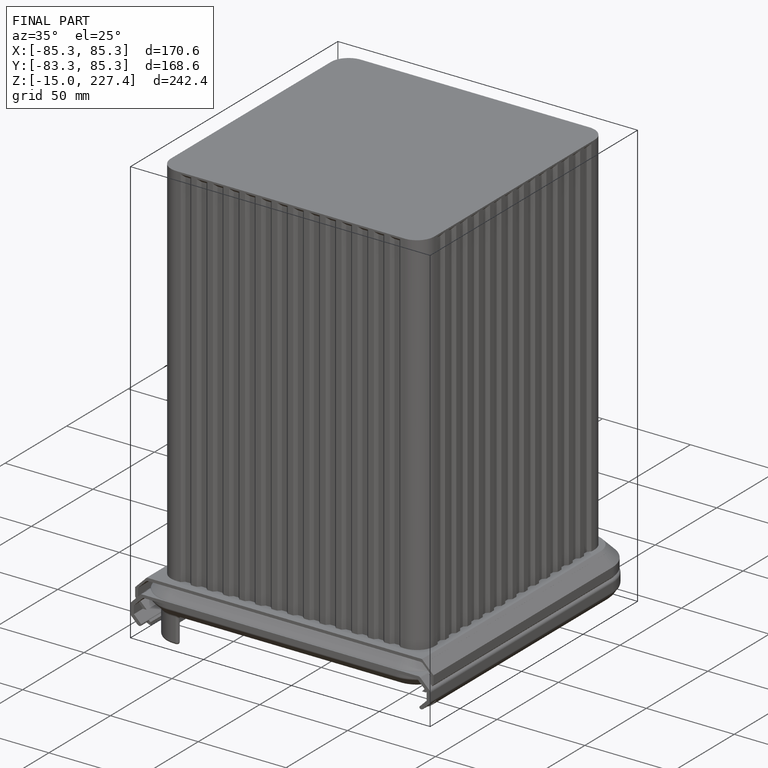
[diagram: finished part — iso view with bounding-box wireframe]
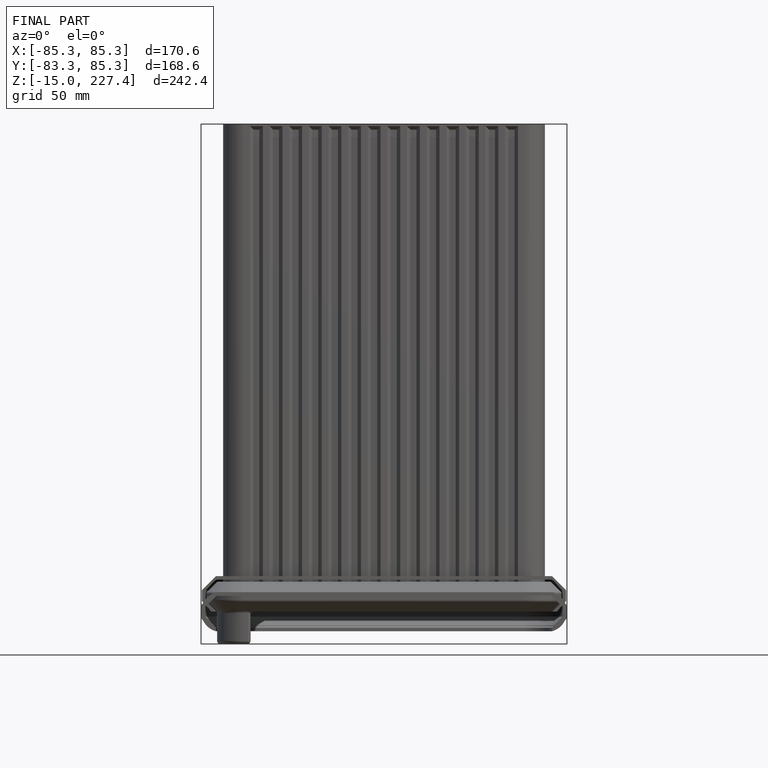
[diagram: finished part — front view with bounding-box wireframe]
